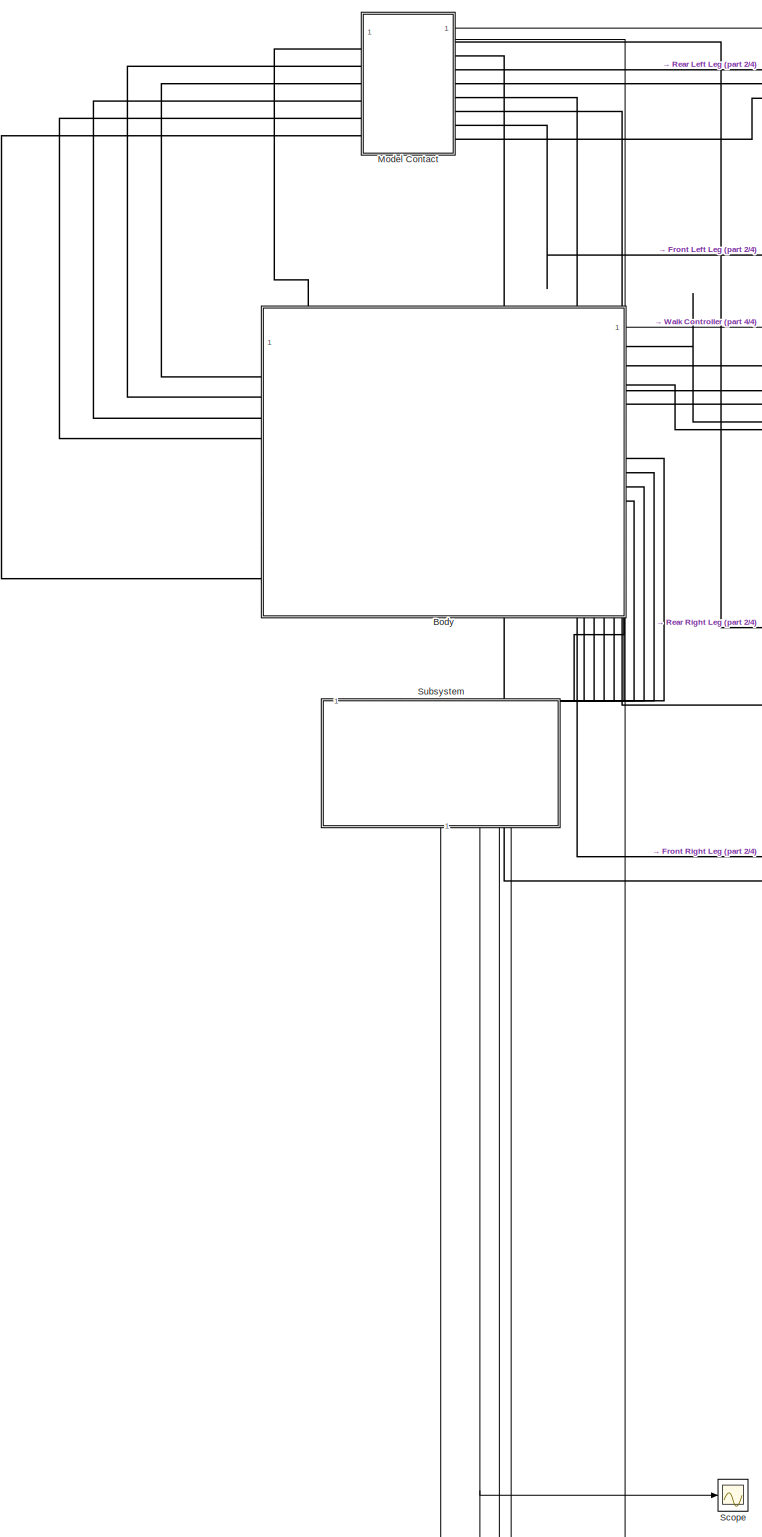
[diagram: root canvas - part 1/4, middle left region]
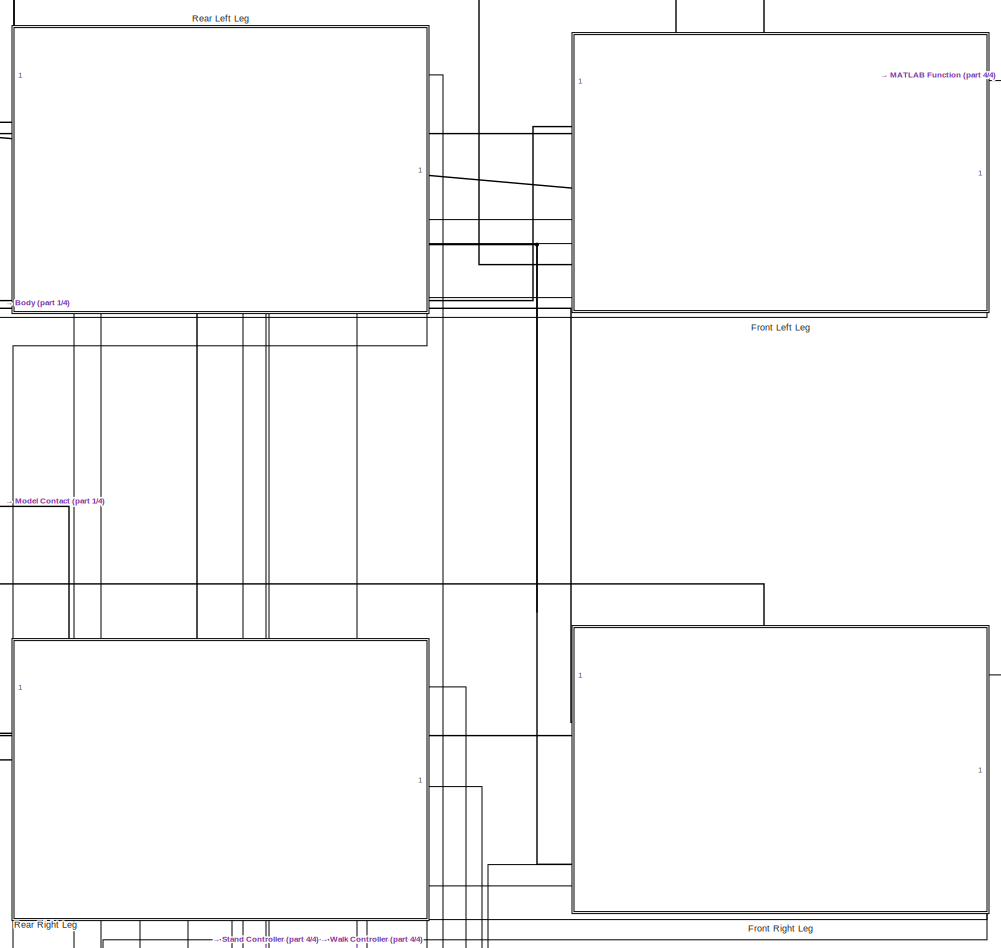
[diagram: root canvas - part 2/4, central region]
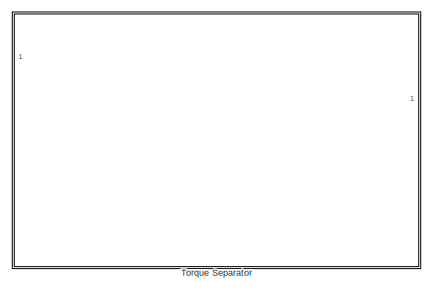
[diagram: root canvas - part 3/4, middle right region]
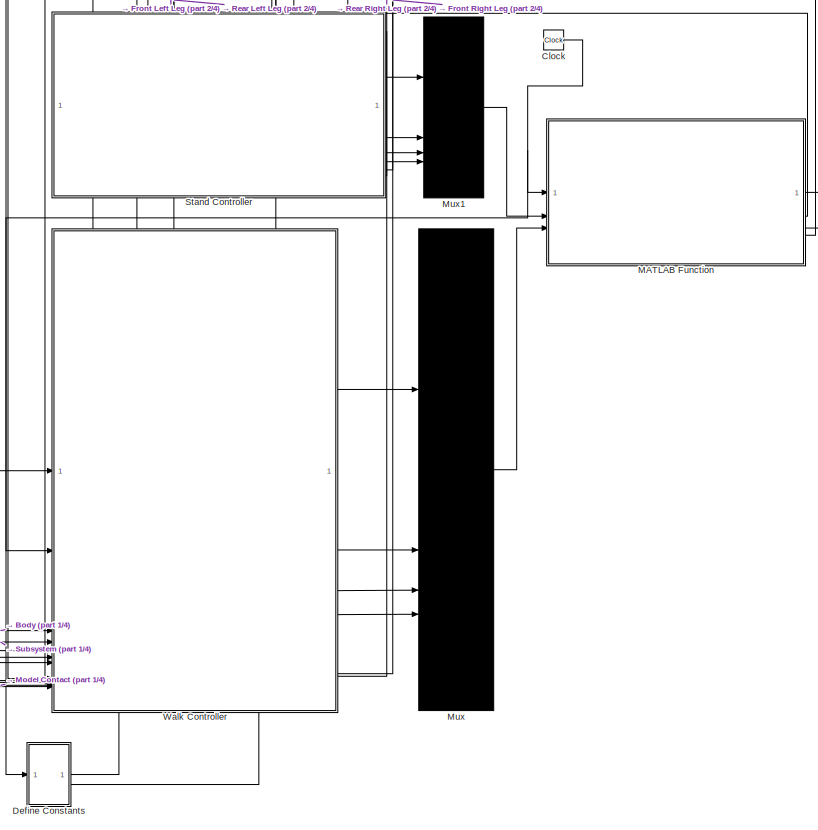
[diagram: root canvas - part 4/4, bottom center region]
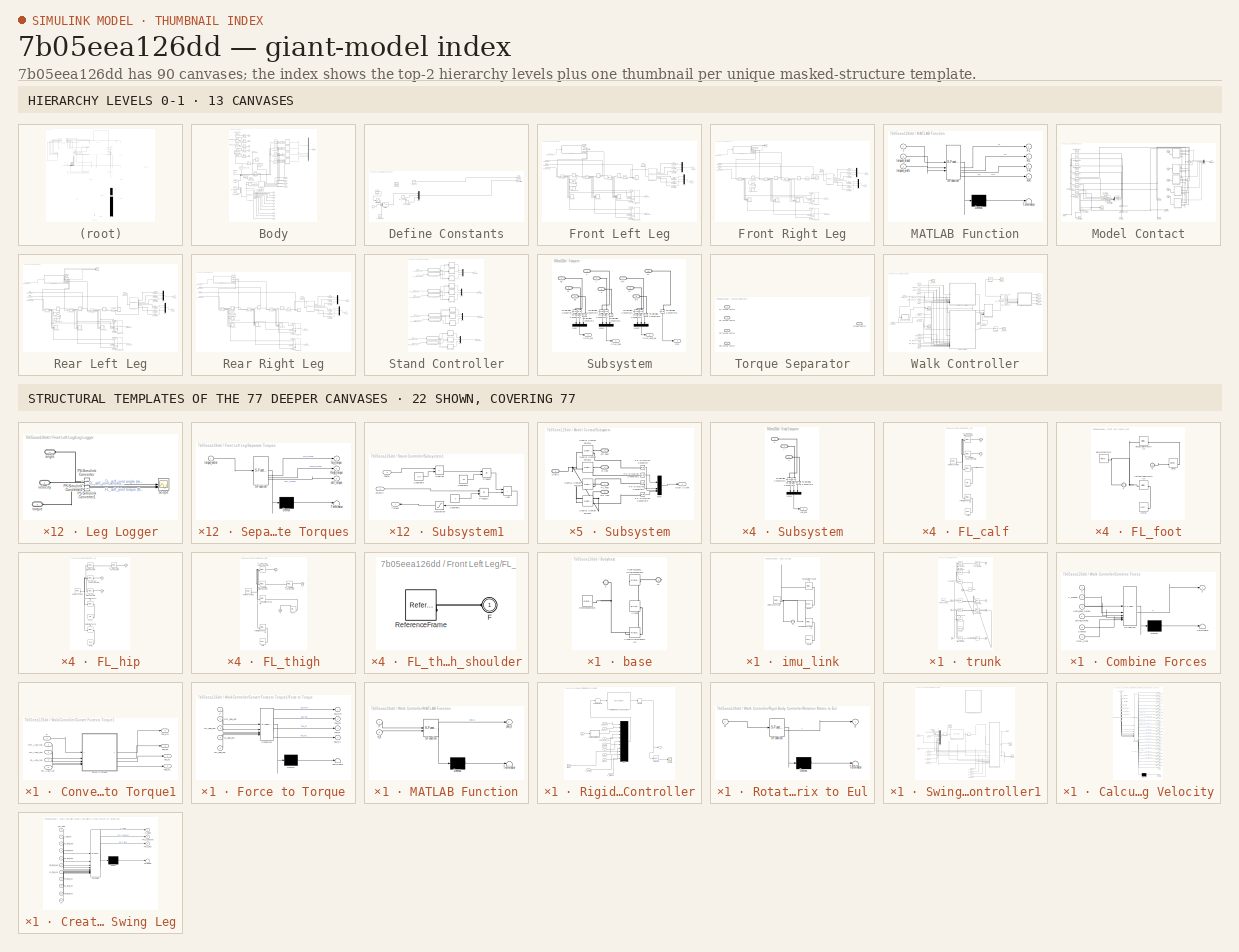
[diagram: thumbnail index - top-2 hierarchy levels (13 canvases) + 22 structural-template representatives of the remaining 77 canvases]
MODEL slx_7b05eea126dd
KIND model
CONFIG AbsTol = auto
CONFIG EnableMultiTasking = off
CONFIG FixedStep = auto
CONFIG MaxStep = auto
CONFIG MinStep = auto
CONFIG RelTol = 1e-3
CONFIG SampleTimeConstraint = Unconstrained
CONFIG SolverName = VariableStepAuto
CONFIG StartTime = 0.0
CONFIG StopTime = 2
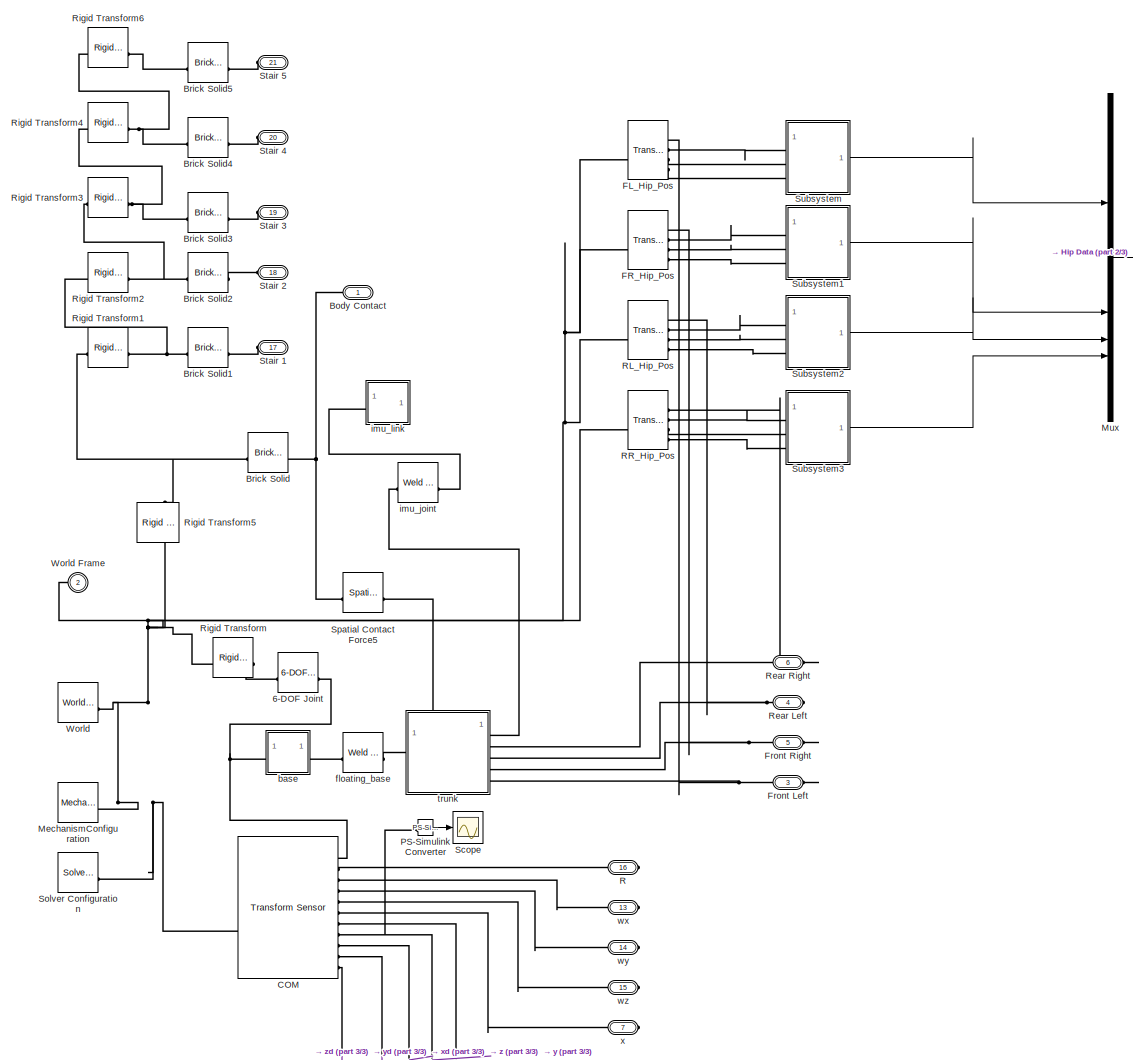
[diagram: Body - part 1/3, most of the canvas]
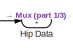
[diagram: Body - part 2/3, top right region]
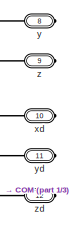
[diagram: Body - part 3/3, bottom center region]
BLOCK [SubSystem] Body
  PortSchema = {"entries":[{"content":{"sides":[{"content":{"connectorIds":[]},"type":"ConnectorPlacement.EquallySpacedRectSide","uuid":"3a53cbab-bcad-44fb-8467-9fb9b9a86323"},{"content":{"connectorIds":["RConn1","RConn2","RConn3","RConn4","Out1"],"side":"RIGHT"},"type":"ConnectorPlacement.EquallySpacedRectSide","uuid":"37b4c9a2-a58b-45a3-99d3-aa4f692e4db6"},{"content":{"connectorIds":["LConn1","LConn2","LConn3"...<+571ch>
BLOCK [Reference] Body/ COM  REF=sm_lib/Frames and
Transforms/Transform
Sensor
  SourceBlock = sm_lib/Frames and\nTransforms/Transform\nSensor
  SourceType = Transform\nSensor
BLOCK [Reference] Body/6-DOF Joint  REF=sm_lib/Joints/6-DOF Joint
  SourceBlock = sm_lib/Joints/6-DOF Joint
  SourceType = 6-DOF Joint
BLOCK [PMIOPort] Body/Body Contact
  Side = Left
BLOCK [Reference] Body/Brick Solid  REF=sm_lib/Body Elements/Brick Solid
  SourceBlock = sm_lib/Body Elements/Brick Solid
  SourceType = Brick Solid
BLOCK [Reference] Body/Brick Solid1  REF=sm_lib/Body Elements/Brick Solid
  SourceBlock = sm_lib/Body Elements/Brick Solid
  SourceType = Brick Solid
BLOCK [Reference] Body/Brick Solid2  REF=sm_lib/Body Elements/Brick Solid
  SourceBlock = sm_lib/Body Elements/Brick Solid
  SourceType = Brick Solid
BLOCK [Reference] Body/Brick Solid3  REF=sm_lib/Body Elements/Brick Solid
  SourceBlock = sm_lib/Body Elements/Brick Solid
  SourceType = Brick Solid
BLOCK [Reference] Body/Brick Solid4  REF=sm_lib/Body Elements/Brick Solid
  SourceBlock = sm_lib/Body Elements/Brick Solid
  SourceType = Brick Solid
BLOCK [Reference] Body/Brick Solid5  REF=sm_lib/Body Elements/Brick Solid
  SourceBlock = sm_lib/Body Elements/Brick Solid
  SourceType = Brick Solid
BLOCK [Reference] Body/FL_Hip_Pos  REF=sm_lib/Frames and
Transforms/Transform
Sensor
  SourceBlock = sm_lib/Frames and\nTransforms/Transform\nSensor
  SourceType = Transform\nSensor
BLOCK [Reference] Body/FR_Hip_Pos  REF=sm_lib/Frames and
Transforms/Transform
Sensor
  SourceBlock = sm_lib/Frames and\nTransforms/Transform\nSensor
  SourceType = Transform\nSensor
BLOCK [PMIOPort] Body/Front Left
  Port = 3
  Side = Right
BLOCK [PMIOPort] Body/Front Right
  Port = 5
  Side = Right
BLOCK [Outport] Body/Hip Data
BLOCK [Reference] Body/MechanismConfiguration  REF=sm_lib/Utilities/Mechanism
Configuration
  SourceBlock = sm_lib/Utilities/Mechanism\nConfiguration
  SourceType = Mechanism\nConfiguration
BLOCK [Mux] Body/Mux
  DisplayOption = bar
BLOCK [Reference] Body/PS-Simulink Converter  REF=nesl_utility/PS-Simulink
Converter
  SourceBlock = nesl_utility/PS-Simulink\nConverter
  SourceType = PS-Simulink\nConverter
BLOCK [PMIOPort] Body/R
  Port = 16
  Side = Right
BLOCK [Reference] Body/RL_Hip_Pos  REF=sm_lib/Frames and
Transforms/Transform
Sensor
  SourceBlock = sm_lib/Frames and\nTransforms/Transform\nSensor
  SourceType = Transform\nSensor
BLOCK [Reference] Body/RR_Hip_Pos  REF=sm_lib/Frames and
Transforms/Transform
Sensor
  SourceBlock = sm_lib/Frames and\nTransforms/Transform\nSensor
  SourceType = Transform\nSensor
BLOCK [PMIOPort] Body/Rear Left
  Port = 4
  Side = Right
BLOCK [PMIOPort] Body/Rear Right
  Port = 6
  Side = Right
BLOCK [Reference] Body/Rigid Transform  REF=sm_lib/Frames and
Transforms/Rigid
Transform
  SourceBlock = sm_lib/Frames and\nTransforms/Rigid\nTransform
  SourceType = Rigid\nTransform
BLOCK [Reference] Body/Rigid Transform1  REF=sm_lib/Frames and
Transforms/Rigid
Transform
  SourceBlock = sm_lib/Frames and\nTransforms/Rigid\nTransform
  SourceType = Rigid\nTransform
BLOCK [Reference] Body/Rigid Transform2  REF=sm_lib/Frames and
Transforms/Rigid
Transform
  SourceBlock = sm_lib/Frames and\nTransforms/Rigid\nTransform
  SourceType = Rigid\nTransform
BLOCK [Reference] Body/Rigid Transform3  REF=sm_lib/Frames and
Transforms/Rigid
Transform
  SourceBlock = sm_lib/Frames and\nTransforms/Rigid\nTransform
  SourceType = Rigid\nTransform
BLOCK [Reference] Body/Rigid Transform4  REF=sm_lib/Frames and
Transforms/Rigid
Transform
  SourceBlock = sm_lib/Frames and\nTransforms/Rigid\nTransform
  SourceType = Rigid\nTransform
BLOCK [Reference] Body/Rigid Transform5  REF=sm_lib/Frames and
Transforms/Rigid
Transform
  NameLocation = right
  SourceBlock = sm_lib/Frames and\nTransforms/Rigid\nTransform
  SourceType = Rigid\nTransform
BLOCK [Reference] Body/Rigid Transform6  REF=sm_lib/Frames and
Transforms/Rigid
Transform
  SourceBlock = sm_lib/Frames and\nTransforms/Rigid\nTransform
  SourceType = Rigid\nTransform
BLOCK [Scope] Body/Scope
  Floating = off
  NumInputPorts = 1
  ScopeSpecificationString = Simulink.scopes.TimeScopeBlockCfg('CurrentConfiguration', extmgr.ConfigurationSet(extmgr.Configuration('Core','General UI',true),extmgr.Configuration('Core','Source UI',true),extmgr.Configuration('Sources','WiredSimulink',true,'DataLoggingVariableName','ScopeData1'),extmgr.Configuration('Visuals','Time Domain',true,'SerializedDisplays',{struct('MinYLimReal','0.09667','MaxYLimReal','0.29077','YLabe...<+1378ch>
BLOCK [Reference] Body/Solver Configuration  REF=nesl_utility/Solver
Configuration
  SourceBlock = nesl_utility/Solver\nConfiguration
  SourceType = Solver\nConfiguration
BLOCK [Reference] Body/Spatial Contact Force5  REF=sm_lib/Forces and
Torques/Spatial
Contact Force
  SourceBlock = sm_lib/Forces and\nTorques/Spatial\nContact Force
  SourceType = Spatial\nContact Force
BLOCK [PMIOPort] Body/Stair 1
  Port = 17
  Side = Left
BLOCK [PMIOPort] Body/Stair 2
  Port = 18
  Side = Left
BLOCK [PMIOPort] Body/Stair 3
  Port = 19
  Side = Left
BLOCK [PMIOPort] Body/Stair 4
  Port = 20
  Side = Left
BLOCK [PMIOPort] Body/Stair 5
  Port = 21
  Side = Left
BLOCK [SubSystem] Body/Subsystem
  NameLocation = top
BLOCK [Outport] Body/Subsystem/Hip_pos
BLOCK [Mux] Body/Subsystem/Mux1
  DisplayOption = bar
  Inputs = 3
  NameLocation = left
BLOCK [Reference] Body/Subsystem/PS-Simulink Converter3  REF=nesl_utility/PS-Simulink
Converter
  NameLocation = left
  SourceBlock = nesl_utility/PS-Simulink\nConverter
  SourceType = PS-Simulink\nConverter
BLOCK [Reference] Body/Subsystem/PS-Simulink Converter4  REF=nesl_utility/PS-Simulink
Converter
  NameLocation = left
  SourceBlock = nesl_utility/PS-Simulink\nConverter
  SourceType = PS-Simulink\nConverter
BLOCK [Reference] Body/Subsystem/PS-Simulink Converter5  REF=nesl_utility/PS-Simulink
Converter
  NameLocation = left
  SourceBlock = nesl_utility/PS-Simulink\nConverter
  SourceType = PS-Simulink\nConverter
BLOCK [PMIOPort] Body/Subsystem/x
  Side = Left
BLOCK [PMIOPort] Body/Subsystem/y
  Port = 2
  Side = Left
BLOCK [PMIOPort] Body/Subsystem/z
  Port = 3
  Side = Left
BLOCK [SubSystem] Body/Subsystem1
  NameLocation = top
BLOCK [Outport] Body/Subsystem1/Hip_pos
BLOCK [Mux] Body/Subsystem1/Mux1
  DisplayOption = bar
  Inputs = 3
  NameLocation = left
BLOCK [Reference] Body/Subsystem1/PS-Simulink Converter3  REF=nesl_utility/PS-Simulink
Converter
  NameLocation = left
  SourceBlock = nesl_utility/PS-Simulink\nConverter
  SourceType = PS-Simulink\nConverter
BLOCK [Reference] Body/Subsystem1/PS-Simulink Converter4  REF=nesl_utility/PS-Simulink
Converter
  NameLocation = left
  SourceBlock = nesl_utility/PS-Simulink\nConverter
  SourceType = PS-Simulink\nConverter
BLOCK [Reference] Body/Subsystem1/PS-Simulink Converter5  REF=nesl_utility/PS-Simulink
Converter
  NameLocation = left
  SourceBlock = nesl_utility/PS-Simulink\nConverter
  SourceType = PS-Simulink\nConverter
BLOCK [PMIOPort] Body/Subsystem1/x
  Side = Left
BLOCK [PMIOPort] Body/Subsystem1/y
  Port = 2
  Side = Left
BLOCK [PMIOPort] Body/Subsystem1/z
  Port = 3
  Side = Left
BLOCK [SubSystem] Body/Subsystem2
  NameLocation = top
BLOCK [Outport] Body/Subsystem2/Hip_pos
BLOCK [Mux] Body/Subsystem2/Mux1
  DisplayOption = bar
  Inputs = 3
  NameLocation = left
BLOCK [Reference] Body/Subsystem2/PS-Simulink Converter3  REF=nesl_utility/PS-Simulink
Converter
  NameLocation = left
  SourceBlock = nesl_utility/PS-Simulink\nConverter
  SourceType = PS-Simulink\nConverter
BLOCK [Reference] Body/Subsystem2/PS-Simulink Converter4  REF=nesl_utility/PS-Simulink
Converter
  NameLocation = left
  SourceBlock = nesl_utility/PS-Simulink\nConverter
  SourceType = PS-Simulink\nConverter
BLOCK [Reference] Body/Subsystem2/PS-Simulink Converter5  REF=nesl_utility/PS-Simulink
Converter
  NameLocation = left
  SourceBlock = nesl_utility/PS-Simulink\nConverter
  SourceType = PS-Simulink\nConverter
BLOCK [PMIOPort] Body/Subsystem2/x
  Side = Left
BLOCK [PMIOPort] Body/Subsystem2/y
  Port = 2
  Side = Left
BLOCK [PMIOPort] Body/Subsystem2/z
  Port = 3
  Side = Left
BLOCK [SubSystem] Body/Subsystem3
  NameLocation = top
BLOCK [Outport] Body/Subsystem3/Hip_pos
BLOCK [Mux] Body/Subsystem3/Mux1
  DisplayOption = bar
  Inputs = 3
  NameLocation = left
BLOCK [Reference] Body/Subsystem3/PS-Simulink Converter3  REF=nesl_utility/PS-Simulink
Converter
  NameLocation = left
  SourceBlock = nesl_utility/PS-Simulink\nConverter
  SourceType = PS-Simulink\nConverter
BLOCK [Reference] Body/Subsystem3/PS-Simulink Converter4  REF=nesl_utility/PS-Simulink
Converter
  NameLocation = left
  SourceBlock = nesl_utility/PS-Simulink\nConverter
  SourceType = PS-Simulink\nConverter
BLOCK [Reference] Body/Subsystem3/PS-Simulink Converter5  REF=nesl_utility/PS-Simulink
Converter
  NameLocation = left
  SourceBlock = nesl_utility/PS-Simulink\nConverter
  SourceType = PS-Simulink\nConverter
BLOCK [PMIOPort] Body/Subsystem3/x
  Side = Left
BLOCK [PMIOPort] Body/Subsystem3/y
  Port = 2
  Side = Left
BLOCK [PMIOPort] Body/Subsystem3/z
  Port = 3
  Side = Left
BLOCK [Reference] Body/World  REF=sm_lib/Frames and
Transforms/World Frame
  SourceBlock = sm_lib/Frames and\nTransforms/World Frame
  SourceType = World Frame
BLOCK [PMIOPort] Body/World Frame
  Port = 2
  Side = Left
BLOCK [SubSystem] Body/base
BLOCK [PMIOPort] Body/base/F
  Side = Left
BLOCK [PMIOPort] Body/base/F1
  Port = 2
  Side = Right
BLOCK [Reference] Body/base/ReferenceFrame  REF=sm_lib/Frames and
Transforms/Reference
Frame
  SourceBlock = sm_lib/Frames and\nTransforms/Reference\nFrame
  SourceType = Reference\nFrame
BLOCK [Reference] Body/base/Visual  REF=sm_lib/Body Elements/Brick Solid
  SourceBlock = sm_lib/Body Elements/Brick Solid
  SourceType = Brick Solid
BLOCK [Reference] Body/base/VisualOriginTransform  REF=sm_lib/Frames and
Transforms/Rigid
Transform
  SourceBlock = sm_lib/Frames and\nTransforms/Rigid\nTransform
  SourceType = Rigid\nTransform
BLOCK [Reference] Body/base/floating_base_OriginTransform  REF=sm_lib/Frames and
Transforms/Rigid
Transform
  SourceBlock = sm_lib/Frames and\nTransforms/Rigid\nTransform
  SourceType = Rigid\nTransform
BLOCK [Reference] Body/floating_base  REF=sm_lib/Joints/Weld Joint
  SourceBlock = sm_lib/Joints/Weld Joint
  SourceType = Weld Joint
BLOCK [Reference] Body/imu_joint  REF=sm_lib/Joints/Weld Joint
  SourceBlock = sm_lib/Joints/Weld Joint
  SourceType = Weld Joint
BLOCK [SubSystem] Body/imu_link
BLOCK [PMIOPort] Body/imu_link/F
  Side = Left
BLOCK [Reference] Body/imu_link/Inertia  REF=sm_lib/Body Elements/Inertia
  SourceBlock = sm_lib/Body Elements/Inertia
  SourceType = Inertia
BLOCK [Reference] Body/imu_link/InertiaOriginTransform  REF=sm_lib/Frames and
Transforms/Rigid
Transform
  SourceBlock = sm_lib/Frames and\nTransforms/Rigid\nTransform
  SourceType = Rigid\nTransform
BLOCK [Reference] Body/imu_link/ReferenceFrame  REF=sm_lib/Frames and
Transforms/Reference
Frame
  SourceBlock = sm_lib/Frames and\nTransforms/Reference\nFrame
  SourceType = Reference\nFrame
BLOCK [Reference] Body/imu_link/Visual  REF=sm_lib/Body Elements/Brick Solid
  SourceBlock = sm_lib/Body Elements/Brick Solid
  SourceType = Brick Solid
BLOCK [Reference] Body/imu_link/VisualOriginTransform  REF=sm_lib/Frames and
Transforms/Rigid
Transform
  SourceBlock = sm_lib/Frames and\nTransforms/Rigid\nTransform
  SourceType = Rigid\nTransform
BLOCK [SubSystem] Body/trunk
  PortSchema = {"entries":[{"content":{"sides":[{"content":{"connectorIds":["LConn1"]},"type":"ConnectorPlacement.EquallySpacedRectSide","uuid":"c5dfde28-9f4a-41b5-9a32-9d7a562ca9b8"},{"content":{"connectorIds":["RConn1","RConn2","RConn3","RConn4","RConn5"],"side":"RIGHT"},"type":"ConnectorPlacement.EquallySpacedRectSide","uuid":"181a9597-adfa-43f0-a8d0-b0dc8d73bccd"},{"content":{"connectorIds":["LConn2"],"side"...<+289ch>
BLOCK [PMIOPort] Body/trunk/F
  Side = Left
BLOCK [PMIOPort] Body/trunk/F1
  Port = 7
  Side = Right
BLOCK [PMIOPort] Body/trunk/F2
  Port = 6
  Side = Right
BLOCK [PMIOPort] Body/trunk/F3
  Port = 5
  Side = Right
BLOCK [PMIOPort] Body/trunk/F4
  Port = 4
  Side = Right
BLOCK [PMIOPort] Body/trunk/F5
  Port = 3
  Side = Right
BLOCK [Reference] Body/trunk/FL_hip_joint_AxisTransform  REF=sm_lib/Frames and
Transforms/Rigid
Transform
  SourceBlock = sm_lib/Frames and\nTransforms/Rigid\nTransform
  SourceType = Rigid\nTransform
BLOCK [Reference] Body/trunk/FL_hip_joint_OriginTransform  REF=sm_lib/Frames and
Transforms/Rigid
Transform
  SourceBlock = sm_lib/Frames and\nTransforms/Rigid\nTransform
  SourceType = Rigid\nTransform
BLOCK [Reference] Body/trunk/FR_hip_joint_AxisTransform  REF=sm_lib/Frames and
Transforms/Rigid
Transform
  SourceBlock = sm_lib/Frames and\nTransforms/Rigid\nTransform
  SourceType = Rigid\nTransform
BLOCK [Reference] Body/trunk/FR_hip_joint_OriginTransform  REF=sm_lib/Frames and
Transforms/Rigid
Transform
  SourceBlock = sm_lib/Frames and\nTransforms/Rigid\nTransform
  SourceType = Rigid\nTransform
BLOCK [PMIOPort] Body/trunk/G
  Port = 2
  Side = Left
BLOCK [Reference] Body/trunk/Inertia  REF=sm_lib/Body Elements/Inertia
  SourceBlock = sm_lib/Body Elements/Inertia
  SourceType = Inertia
BLOCK [Reference] Body/trunk/InertiaOriginTransform  REF=sm_lib/Frames and
Transforms/Rigid
Transform
  SourceBlock = sm_lib/Frames and\nTransforms/Rigid\nTransform
  SourceType = Rigid\nTransform
BLOCK [Reference] Body/trunk/RL_hip_joint_AxisTransform  REF=sm_lib/Frames and
Transforms/Rigid
Transform
  SourceBlock = sm_lib/Frames and\nTransforms/Rigid\nTransform
  SourceType = Rigid\nTransform
BLOCK [Reference] Body/trunk/RL_hip_joint_OriginTransform  REF=sm_lib/Frames and
Transforms/Rigid
Transform
  SourceBlock = sm_lib/Frames and\nTransforms/Rigid\nTransform
  SourceType = Rigid\nTransform
BLOCK [Reference] Body/trunk/RR_hip_joint_AxisTransform  REF=sm_lib/Frames and
Transforms/Rigid
Transform
  SourceBlock = sm_lib/Frames and\nTransforms/Rigid\nTransform
  SourceType = Rigid\nTransform
BLOCK [Reference] Body/trunk/RR_hip_joint_OriginTransform  REF=sm_lib/Frames and
Transforms/Rigid
Transform
  SourceBlock = sm_lib/Frames and\nTransforms/Rigid\nTransform
  SourceType = Rigid\nTransform
BLOCK [Reference] Body/trunk/ReferenceFrame  REF=sm_lib/Frames and
Transforms/Reference
Frame
  SourceBlock = sm_lib/Frames and\nTransforms/Reference\nFrame
  SourceType = Reference\nFrame
BLOCK [Reference] Body/trunk/Visual  REF=sm_lib/Body Elements/File Solid
  SourceBlock = sm_lib/Body Elements/File Solid
  SourceType = File Solid
BLOCK [Reference] Body/trunk/VisualOriginTransform  REF=sm_lib/Frames and
Transforms/Rigid
Transform
  SourceBlock = sm_lib/Frames and\nTransforms/Rigid\nTransform
  SourceType = Rigid\nTransform
BLOCK [Reference] Body/trunk/imu_joint_OriginTransform  REF=sm_lib/Frames and
Transforms/Rigid
Transform
  SourceBlock = sm_lib/Frames and\nTransforms/Rigid\nTransform
  SourceType = Rigid\nTransform
BLOCK [PMIOPort] Body/wx
  Port = 13
  Side = Right
BLOCK [PMIOPort] Body/wy
  Port = 14
  Side = Right
BLOCK [PMIOPort] Body/wz
  Port = 15
  Side = Right
BLOCK [PMIOPort] Body/x
  Port = 7
  Side = Right
BLOCK [PMIOPort] Body/xd
  Port = 10
  Side = Right
BLOCK [PMIOPort] Body/y
  Port = 8
  Side = Right
BLOCK [PMIOPort] Body/yd
  Port = 11
  Side = Right
BLOCK [PMIOPort] Body/z
  Port = 9
  Side = Right
BLOCK [PMIOPort] Body/zd
  Port = 12
  Side = Right
BLOCK [Clock] Clock
BLOCK [SubSystem] Define Constants
BLOCK [Inport] Define Constants/In1
BLOCK [Mux] Define Constants/Mux
  DisplayOption = bar
  Inputs = 3
BLOCK [Outport] Define Constants/Out1
BLOCK [Reference] Define Constants/Ramp  REF=simulink/Sources/Ramp
  SourceBlock = simulink/Sources/Ramp
  SourceType = Ramp
BLOCK [Saturate] Define Constants/Saturation
  LowerLimit = -0.2
  UpperLimit = 0.2
BLOCK [Scope] Define Constants/Scope
  Floating = off
  NumInputPorts = 1
  ScopeSpecificationString = Simulink.scopes.TimeScopeBlockCfg('CurrentConfiguration', extmgr.ConfigurationSet(extmgr.Configuration('Core','General UI',true),extmgr.Configuration('Core','Source UI',true),extmgr.Configuration('Sources','WiredSimulink',true,'DataLoggingVariableName','ScopeData1'),extmgr.Configuration('Visuals','Time Domain',true,'SerializedDisplays',{struct('MinYLimReal','-0.025','MaxYLimReal','0.225','YLabelRe...<+1357ch>
BLOCK [Switch] Define Constants/Switch
  Criteria = u2 > Threshold
  InputSameDT = off
  SaturateOnIntegerOverflow = off
  Threshold = 5.8
BLOCK [Constant] Define Constants/T_stance
  Value = 0.2
BLOCK [Constant] Define Constants/T_stance1
  Value = 0.15
BLOCK [Constant] Define Constants/Vy_desired
  Value = 0
BLOCK [Constant] Define Constants/Vz_desired
  Value = 0
BLOCK [Outport] Define Constants/v_desired
  Port = 2
BLOCK [SubSystem] Front Left Leg
  PortSchema = {"entries":[{"content":{"sides":[{"content":{"connectorIds":["LConn1"]},"type":"ConnectorPlacement.EquallySpacedRectSide","uuid":"58990e36-5185-4bfb-924f-3ea489e575b7"},{"content":{"connectorIds":["In1"],"side":"RIGHT"},"type":"ConnectorPlacement.EquallySpacedRectSide","uuid":"00c4eac4-622f-4601-a916-f460578a2921"},{"content":{"connectorIds":["LConn2","LConn3","LConn4"],"side":"TOP"},"type":"Conne...<+439ch>  <repeated x4 — deduplicated; at blocks: Front Left Leg, Front Right Leg, Rear Left Leg, Rear Right Leg>
BLOCK [Outport] Front Left Leg/ Foot Pos
  Port = 3
BLOCK [Outport] Front Left Leg/ Foot Vel
  Port = 4
BLOCK [Concatenate] Front Left Leg/Angle Concat
  NumInputs = 3
BLOCK [Outport] Front Left Leg/Angle Vector
BLOCK [SubSystem] Front Left Leg/FL_calf
BLOCK [PMIOPort] Front Left Leg/FL_calf/F
  Side = Left
BLOCK [PMIOPort] Front Left Leg/FL_calf/F1
  Port = 2
  Side = Right
BLOCK [Reference] Front Left Leg/FL_calf/FL_calf_joint_AxisInvTransform  REF=sm_lib/Frames and
Transforms/Rigid
Transform
  SourceBlock = sm_lib/Frames and\nTransforms/Rigid\nTransform
  SourceType = Rigid\nTransform
BLOCK [Reference] Front Left Leg/FL_calf/FL_foot_fixed_OriginTransform  REF=sm_lib/Frames and
Transforms/Rigid
Transform
  SourceBlock = sm_lib/Frames and\nTransforms/Rigid\nTransform
  SourceType = Rigid\nTransform
BLOCK [Reference] Front Left Leg/FL_calf/Inertia  REF=sm_lib/Body Elements/Inertia
  SourceBlock = sm_lib/Body Elements/Inertia
  SourceType = Inertia
BLOCK [Reference] Front Left Leg/FL_calf/InertiaOriginTransform  REF=sm_lib/Frames and
Transforms/Rigid
Transform
  SourceBlock = sm_lib/Frames and\nTransforms/Rigid\nTransform
  SourceType = Rigid\nTransform
BLOCK [Reference] Front Left Leg/FL_calf/ReferenceFrame  REF=sm_lib/Frames and
Transforms/Reference
Frame
  SourceBlock = sm_lib/Frames and\nTransforms/Reference\nFrame
  SourceType = Reference\nFrame
BLOCK [Reference] Front Left Leg/FL_calf/Visual  REF=sm_lib/Body Elements/File Solid
  SourceBlock = sm_lib/Body Elements/File Solid
  SourceType = File Solid
BLOCK [Reference] Front Left Leg/FL_calf/VisualOriginTransform  REF=sm_lib/Frames and
Transforms/Rigid
Transform
  SourceBlock = sm_lib/Frames and\nTransforms/Rigid\nTransform
  SourceType = Rigid\nTransform
BLOCK [Reference] Front Left Leg/FL_calf_joint  REF=sm_lib/Joints/Revolute Joint
  SourceBlock = sm_lib/Joints/Revolute Joint
  SourceType = Revolute Joint
BLOCK [SubSystem] Front Left Leg/FL_foot
BLOCK [PMIOPort] Front Left Leg/FL_foot/F
  Side = Left
BLOCK [PMIOPort] Front Left Leg/FL_foot/G
  Port = 2
  Side = Left
BLOCK [Reference] Front Left Leg/FL_foot/Inertia  REF=sm_lib/Body Elements/Inertia
  SourceBlock = sm_lib/Body Elements/Inertia
  SourceType = Inertia
BLOCK [Reference] Front Left Leg/FL_foot/InertiaOriginTransform  REF=sm_lib/Frames and
Transforms/Rigid
Transform
  SourceBlock = sm_lib/Frames and\nTransforms/Rigid\nTransform
  SourceType = Rigid\nTransform
BLOCK [Reference] Front Left Leg/FL_foot/ReferenceFrame  REF=sm_lib/Frames and
Transforms/Reference
Frame
  SourceBlock = sm_lib/Frames and\nTransforms/Reference\nFrame
  SourceType = Reference\nFrame
BLOCK [Reference] Front Left Leg/FL_foot/Visual  REF=sm_lib/Body Elements/Spherical Solid
  SourceBlock = sm_lib/Body Elements/Spherical Solid
  SourceType = Spherical Solid
BLOCK [Reference] Front Left Leg/FL_foot/VisualOriginTransform  REF=sm_lib/Frames and
Transforms/Rigid
Transform
  SourceBlock = sm_lib/Frames and\nTransforms/Rigid\nTransform
  SourceType = Rigid\nTransform
BLOCK [Reference] Front Left Leg/FL_foot_fixed  REF=sm_lib/Joints/Weld Joint
  SourceBlock = sm_lib/Joints/Weld Joint
  SourceType = Weld Joint
BLOCK [SubSystem] Front Left Leg/FL_hip
BLOCK [PMIOPort] Front Left Leg/FL_hip/F
  Side = Left
BLOCK [PMIOPort] Front Left Leg/FL_hip/F1
  Port = 3
  Side = Right
BLOCK [PMIOPort] Front Left Leg/FL_hip/F2
  Port = 2
  Side = Right
BLOCK [Reference] Front Left Leg/FL_hip/FL_hip_fixed_OriginTransform  REF=sm_lib/Frames and
Transforms/Rigid
Transform
  SourceBlock = sm_lib/Frames and\nTransforms/Rigid\nTransform
  SourceType = Rigid\nTransform
BLOCK [Reference] Front Left Leg/FL_hip/FL_hip_joint_AxisInvTransform  REF=sm_lib/Frames and
Transforms/Rigid
Transform
  SourceBlock = sm_lib/Frames and\nTransforms/Rigid\nTransform
  SourceType = Rigid\nTransform
BLOCK [Reference] Front Left Leg/FL_hip/FL_thigh_joint_AxisTransform  REF=sm_lib/Frames and
Transforms/Rigid
Transform
  SourceBlock = sm_lib/Frames and\nTransforms/Rigid\nTransform
  SourceType = Rigid\nTransform
BLOCK [Reference] Front Left Leg/FL_hip/FL_thigh_joint_OriginTransform  REF=sm_lib/Frames and
Transforms/Rigid
Transform
  SourceBlock = sm_lib/Frames and\nTransforms/Rigid\nTransform
  SourceType = Rigid\nTransform
BLOCK [Reference] Front Left Leg/FL_hip/Inertia  REF=sm_lib/Body Elements/Inertia
  SourceBlock = sm_lib/Body Elements/Inertia
  SourceType = Inertia
BLOCK [Reference] Front Left Leg/FL_hip/InertiaOriginTransform  REF=sm_lib/Frames and
Transforms/Rigid
Transform
  SourceBlock = sm_lib/Frames and\nTransforms/Rigid\nTransform
  SourceType = Rigid\nTransform
BLOCK [Reference] Front Left Leg/FL_hip/ReferenceFrame  REF=sm_lib/Frames and
Transforms/Reference
Frame
  SourceBlock = sm_lib/Frames and\nTransforms/Reference\nFrame
  SourceType = Reference\nFrame
BLOCK [Reference] Front Left Leg/FL_hip/Visual  REF=sm_lib/Body Elements/File Solid
  SourceBlock = sm_lib/Body Elements/File Solid
  SourceType = File Solid
BLOCK [Reference] Front Left Leg/FL_hip/VisualOriginTransform  REF=sm_lib/Frames and
Transforms/Rigid
Transform
  SourceBlock = sm_lib/Frames and\nTransforms/Rigid\nTransform
  SourceType = Rigid\nTransform
BLOCK [Reference] Front Left Leg/FL_hip_fixed  REF=sm_lib/Joints/Weld Joint
  SourceBlock = sm_lib/Joints/Weld Joint
  SourceType = Weld Joint
BLOCK [Reference] Front Left Leg/FL_hip_joint  REF=sm_lib/Joints/Revolute Joint
  SourceBlock = sm_lib/Joints/Revolute Joint
  SourceType = Revolute Joint
BLOCK [SubSystem] Front Left Leg/FL_thigh
BLOCK [PMIOPort] Front Left Leg/FL_thigh/F
  Side = Left
BLOCK [PMIOPort] Front Left Leg/FL_thigh/F1
  Port = 2
  Side = Right
BLOCK [Reference] Front Left Leg/FL_thigh/FL_calf_joint_AxisTransform  REF=sm_lib/Frames and
Transforms/Rigid
Transform
  SourceBlock = sm_lib/Frames and\nTransforms/Rigid\nTransform
  SourceType = Rigid\nTransform
BLOCK [Reference] Front Left Leg/FL_thigh/FL_calf_joint_OriginTransform  REF=sm_lib/Frames and
Transforms/Rigid
Transform
  SourceBlock = sm_lib/Frames and\nTransforms/Rigid\nTransform
  SourceType = Rigid\nTransform
BLOCK [Reference] Front Left Leg/FL_thigh/FL_thigh_joint_AxisInvTransform  REF=sm_lib/Frames and
Transforms/Rigid
Transform
  SourceBlock = sm_lib/Frames and\nTransforms/Rigid\nTransform
  SourceType = Rigid\nTransform
BLOCK [PMIOPort] Front Left Leg/FL_thigh/G
  Port = 3
  Side = Right
BLOCK [Reference] Front Left Leg/FL_thigh/Inertia  REF=sm_lib/Body Elements/Inertia
  SourceBlock = sm_lib/Body Elements/Inertia
  SourceType = Inertia
BLOCK [Reference] Front Left Leg/FL_thigh/InertiaOriginTransform  REF=sm_lib/Frames and
Transforms/Rigid
Transform
  SourceBlock = sm_lib/Frames and\nTransforms/Rigid\nTransform
  SourceType = Rigid\nTransform
BLOCK [Reference] Front Left Leg/FL_thigh/ReferenceFrame  REF=sm_lib/Frames and
Transforms/Reference
Frame
  SourceBlock = sm_lib/Frames and\nTransforms/Reference\nFrame
  SourceType = Reference\nFrame
BLOCK [Reference] Front Left Leg/FL_thigh/Visual  REF=sm_lib/Body Elements/File Solid
  SourceBlock = sm_lib/Body Elements/File Solid
  SourceType = File Solid
BLOCK [Reference] Front Left Leg/FL_thigh/VisualOriginTransform  REF=sm_lib/Frames and
Transforms/Rigid
Transform
  SourceBlock = sm_lib/Frames and\nTransforms/Rigid\nTransform
  SourceType = Rigid\nTransform
BLOCK [Reference] Front Left Leg/FL_thigh_joint  REF=sm_lib/Joints/Revolute Joint
  SourceBlock = sm_lib/Joints/Revolute Joint
  SourceType = Revolute Joint
BLOCK [SubSystem] Front Left Leg/FL_thigh_shoulder
BLOCK [PMIOPort] Front Left Leg/FL_thigh_shoulder/F
  Side = Left
BLOCK [Reference] Front Left Leg/FL_thigh_shoulder/ReferenceFrame  REF=sm_lib/Frames and
Transforms/Reference
Frame
  SourceBlock = sm_lib/Frames and\nTransforms/Reference\nFrame
  SourceType = Reference\nFrame
BLOCK [PMIOPort] Front Left Leg/Foot Contact
  Port = 3
  Side = Left
BLOCK [PMIOPort] Front Left Leg/Leg Connection
  Side = Left
BLOCK [SubSystem] Front Left Leg/Leg Logger
BLOCK [Reference] Front Left Leg/Leg Logger/PS-Simulink Converter  REF=nesl_utility/PS-Simulink
Converter
  SourceBlock = nesl_utility/PS-Simulink\nConverter
  SourceType = PS-Simulink\nConverter
BLOCK [Reference] Front Left Leg/Leg Logger/PS-Simulink Converter1  REF=nesl_utility/PS-Simulink
Converter
  SourceBlock = nesl_utility/PS-Simulink\nConverter
  SourceType = PS-Simulink\nConverter
BLOCK [Reference] Front Left Leg/Leg Logger/PS-Simulink Converter2  REF=nesl_utility/PS-Simulink
Converter
  SourceBlock = nesl_utility/PS-Simulink\nConverter
  SourceType = PS-Simulink\nConverter
BLOCK [Scope] Front Left Leg/Leg Logger/Scope
  Floating = off
  NumInputPorts = 3
  ScopeSpecificationString = Simulink.scopes.TimeScopeBlockCfg('CurrentConfiguration', extmgr.ConfigurationSet(extmgr.Configuration('Core','General UI',true),extmgr.Configuration('Core','Source UI',true),extmgr.Configuration('Sources','WiredSimulink',true),extmgr.Configuration('Visuals','Time Domain',true,'SerializedDisplays',{struct('MinYLimReal','-36.35619','MaxYLimReal','38.57147','YLabelReal','','MinYLimMag','0.00000','Ma...<+1507ch>
BLOCK [PMIOPort] Front Left Leg/Leg Logger/angle
  Side = Left
BLOCK [PMIOPort] Front Left Leg/Leg Logger/torque
  Port = 3
  Side = Left
BLOCK [PMIOPort] Front Left Leg/Leg Logger/velocity
  Port = 2
  Side = Left
BLOCK [SubSystem] Front Left Leg/Leg Logger7
BLOCK [Reference] Front Left Leg/Leg Logger7/PS-Simulink Converter  REF=nesl_utility/PS-Simulink
Converter
  SourceBlock = nesl_utility/PS-Simulink\nConverter
  SourceType = PS-Simulink\nConverter
BLOCK [Reference] Front Left Leg/Leg Logger7/PS-Simulink Converter1  REF=nesl_utility/PS-Simulink
Converter
  SourceBlock = nesl_utility/PS-Simulink\nConverter
  SourceType = PS-Simulink\nConverter
BLOCK [Reference] Front Left Leg/Leg Logger7/PS-Simulink Converter2  REF=nesl_utility/PS-Simulink
Converter
  SourceBlock = nesl_utility/PS-Simulink\nConverter
  SourceType = PS-Simulink\nConverter
BLOCK [Scope] Front Left Leg/Leg Logger7/Scope
  Floating = off
  NumInputPorts = 3
  ScopeSpecificationString = Simulink.scopes.TimeScopeBlockCfg('CurrentConfiguration', extmgr.ConfigurationSet(extmgr.Configuration('Core','General UI',true),extmgr.Configuration('Core','Source UI',true),extmgr.Configuration('Sources','WiredSimulink',true),extmgr.Configuration('Visuals','Time Domain',true,'SerializedDisplays',{struct('MinYLimReal','-155.91522','MaxYLimReal','38.19439','YLabelReal','','MinYLimMag',' 0.00000','...<+1448ch>
BLOCK [PMIOPort] Front Left Leg/Leg Logger7/angle
  Side = Left
BLOCK [PMIOPort] Front Left Leg/Leg Logger7/torque
  Port = 3
  Side = Left
BLOCK [PMIOPort] Front Left Leg/Leg Logger7/velocity
  Port = 2
  Side = Left
BLOCK [SubSystem] Front Left Leg/Leg Logger8
BLOCK [Reference] Front Left Leg/Leg Logger8/PS-Simulink Converter  REF=nesl_utility/PS-Simulink
Converter
  SourceBlock = nesl_utility/PS-Simulink\nConverter
  SourceType = PS-Simulink\nConverter
BLOCK [Reference] Front Left Leg/Leg Logger8/PS-Simulink Converter1  REF=nesl_utility/PS-Simulink
Converter
  SourceBlock = nesl_utility/PS-Simulink\nConverter
  SourceType = PS-Simulink\nConverter
BLOCK [Reference] Front Left Leg/Leg Logger8/PS-Simulink Converter2  REF=nesl_utility/PS-Simulink
Converter
  SourceBlock = nesl_utility/PS-Simulink\nConverter
  SourceType = PS-Simulink\nConverter
BLOCK [Scope] Front Left Leg/Leg Logger8/Scope
  Floating = off
  NumInputPorts = 3
  ScopeSpecificationString = Simulink.scopes.TimeScopeBlockCfg('CurrentConfiguration', extmgr.ConfigurationSet(extmgr.Configuration('Core','General UI',true),extmgr.Configuration('Core','Source UI',true),extmgr.Configuration('Sources','WiredSimulink',true),extmgr.Configuration('Visuals','Time Domain',true,'SerializedDisplays',{struct('MinYLimReal','-20.01045','MaxYLimReal','27.31828','YLabelReal','','MinYLimMag','0.00000','Ma...<+1436ch>
BLOCK [PMIOPort] Front Left Leg/Leg Logger8/angle
  Side = Left
BLOCK [PMIOPort] Front Left Leg/Leg Logger8/torque
  Port = 3
  Side = Left
BLOCK [PMIOPort] Front Left Leg/Leg Logger8/velocity
  Port = 2
  Side = Left
BLOCK [Mux] Front Left Leg/Mux
  DisplayOption = bar
  Inputs = 3
BLOCK [Mux] Front Left Leg/Mux1
  DisplayOption = bar
  Inputs = 3
BLOCK [Reference] Front Left Leg/PS-Simulink Converter1  REF=nesl_utility/PS-Simulink
Converter
  SourceBlock = nesl_utility/PS-Simulink\nConverter
  SourceType = PS-Simulink\nConverter
BLOCK [Reference] Front Left Leg/PS-Simulink Converter10  REF=nesl_utility/PS-Simulink
Converter
  SourceBlock = nesl_utility/PS-Simulink\nConverter
  SourceType = PS-Simulink\nConverter
BLOCK [Reference] Front Left Leg/PS-Simulink Converter11  REF=nesl_utility/PS-Simulink
Converter
  SourceBlock = nesl_utility/PS-Simulink\nConverter
  SourceType = PS-Simulink\nConverter
BLOCK [Reference] Front Left Leg/PS-Simulink Converter12  REF=nesl_utility/PS-Simulink
Converter
  SourceBlock = nesl_utility/PS-Simulink\nConverter
  SourceType = PS-Simulink\nConverter
BLOCK [Reference] Front Left Leg/PS-Simulink Converter2  REF=nesl_utility/PS-Simulink
Converter
  SourceBlock = nesl_utility/PS-Simulink\nConverter
  SourceType = PS-Simulink\nConverter
BLOCK [Reference] Front Left Leg/PS-Simulink Converter3  REF=nesl_utility/PS-Simulink
Converter
  SourceBlock = nesl_utility/PS-Simulink\nConverter
  SourceType = PS-Simulink\nConverter
BLOCK [Reference] Front Left Leg/PS-Simulink Converter4  REF=nesl_utility/PS-Simulink
Converter
  SourceBlock = nesl_utility/PS-Simulink\nConverter
  SourceType = PS-Simulink\nConverter
BLOCK [Reference] Front Left Leg/PS-Simulink Converter5  REF=nesl_utility/PS-Simulink
Converter
  SourceBlock = nesl_utility/PS-Simulink\nConverter
  SourceType = PS-Simulink\nConverter
BLOCK [Reference] Front Left Leg/PS-Simulink Converter6  REF=nesl_utility/PS-Simulink
Converter
  SourceBlock = nesl_utility/PS-Simulink\nConverter
  SourceType = PS-Simulink\nConverter
BLOCK [Reference] Front Left Leg/PS-Simulink Converter7  REF=nesl_utility/PS-Simulink
Converter
  SourceBlock = nesl_utility/PS-Simulink\nConverter
  SourceType = PS-Simulink\nConverter
BLOCK [Reference] Front Left Leg/PS-Simulink Converter8  REF=nesl_utility/PS-Simulink
Converter
  SourceBlock = nesl_utility/PS-Simulink\nConverter
  SourceType = PS-Simulink\nConverter
BLOCK [Reference] Front Left Leg/PS-Simulink Converter9  REF=nesl_utility/PS-Simulink
Converter
  SourceBlock = nesl_utility/PS-Simulink\nConverter
  SourceType = PS-Simulink\nConverter
BLOCK [SubSystem] Front Left Leg/Separate Torques
  ErrorFcn = Stateflow.Translate.translate
  LibrarySourceBlock = simulink/User-Defined\nFunctions/MATLAB Function
  PermitHierarchicalResolution = ExplicitOnly
  SFBlockType = MATLAB Function
  TreatAsAtomicUnit = on
BLOCK [Demux] Front Left Leg/Separate Torques/ Demux 
  Outputs = 1
BLOCK [S-Function] Front Left Leg/Separate Torques/ SFunction 
  EnableBusSupport = on
  FunctionName = sf_sfun
  PortCounts = [1 4]
  SFcnIsStateOwnerBlock = off
  SFunctionDeploymentMode = off
  Tag = Stateflow S-Function 6
BLOCK [Terminator] Front Left Leg/Separate Torques/ Terminator 
BLOCK [Outport] Front Left Leg/Separate Torques/calf_torque
  Port = 3
BLOCK [Outport] Front Left Leg/Separate Torques/hip_torque
BLOCK [Outport] Front Left Leg/Separate Torques/thigh_torque
  Port = 2
BLOCK [Inport] Front Left Leg/Separate Torques/torque_vector
BLOCK [Reference] Front Left Leg/Simulink-PS Converter  REF=nesl_utility/Simulink-PS
Converter
  SourceBlock = nesl_utility/Simulink-PS\nConverter
  SourceType = Simulink-PS\nConverter
BLOCK [Reference] Front Left Leg/Simulink-PS Converter1  REF=nesl_utility/Simulink-PS
Converter
  SourceBlock = nesl_utility/Simulink-PS\nConverter
  SourceType = Simulink-PS\nConverter
BLOCK [Reference] Front Left Leg/Simulink-PS Converter2  REF=nesl_utility/Simulink-PS
Converter
  SourceBlock = nesl_utility/Simulink-PS\nConverter
  SourceType = Simulink-PS\nConverter
BLOCK [PMIOPort] Front Left Leg/Thigh Contact
  Port = 2
  Side = Left
BLOCK [Reference] Front Left Leg/Transform Sensor  REF=sm_lib/Frames and
Transforms/Transform
Sensor
  SourceBlock = sm_lib/Frames and\nTransforms/Transform\nSensor
  SourceType = Transform\nSensor
BLOCK [Concatenate] Front Left Leg/Velocity Concat
  NumInputs = 3
BLOCK [Outport] Front Left Leg/Velocity Vector
  Port = 2
BLOCK [PMIOPort] Front Left Leg/World Frame
  Port = 4
  Side = Left
BLOCK [Inport] Front Left Leg/torque_vector
BLOCK [SubSystem] Front Right Leg
BLOCK [Outport] Front Right Leg/ Foot Pos
  Port = 3
BLOCK [Outport] Front Right Leg/ Foot Vel
  Port = 4
BLOCK [Concatenate] Front Right Leg/Angle Concat
  NumInputs = 3
BLOCK [Outport] Front Right Leg/Angle Vector
BLOCK [SubSystem] Front Right Leg/FR_calf
BLOCK [PMIOPort] Front Right Leg/FR_calf/F
  Side = Left
BLOCK [PMIOPort] Front Right Leg/FR_calf/F1
  Port = 2
  Side = Right
BLOCK [Reference] Front Right Leg/FR_calf/FR_calf_joint_AxisInvTransform  REF=sm_lib/Frames and
Transforms/Rigid
Transform
  SourceBlock = sm_lib/Frames and\nTransforms/Rigid\nTransform
  SourceType = Rigid\nTransform
BLOCK [Reference] Front Right Leg/FR_calf/FR_foot_fixed_OriginTransform  REF=sm_lib/Frames and
Transforms/Rigid
Transform
  SourceBlock = sm_lib/Frames and\nTransforms/Rigid\nTransform
  SourceType = Rigid\nTransform
BLOCK [Reference] Front Right Leg/FR_calf/Inertia  REF=sm_lib/Body Elements/Inertia
  SourceBlock = sm_lib/Body Elements/Inertia
  SourceType = Inertia
BLOCK [Reference] Front Right Leg/FR_calf/InertiaOriginTransform  REF=sm_lib/Frames and
Transforms/Rigid
Transform
  SourceBlock = sm_lib/Frames and\nTransforms/Rigid\nTransform
  SourceType = Rigid\nTransform
BLOCK [Reference] Front Right Leg/FR_calf/ReferenceFrame  REF=sm_lib/Frames and
Transforms/Reference
Frame
  SourceBlock = sm_lib/Frames and\nTransforms/Reference\nFrame
  SourceType = Reference\nFrame
BLOCK [Reference] Front Right Leg/FR_calf/Visual  REF=sm_lib/Body Elements/File Solid
  SourceBlock = sm_lib/Body Elements/File Solid
  SourceType = File Solid
BLOCK [Reference] Front Right Leg/FR_calf/VisualOriginTransform  REF=sm_lib/Frames and
Transforms/Rigid
Transform
  SourceBlock = sm_lib/Frames and\nTransforms/Rigid\nTransform
  SourceType = Rigid\nTransform
BLOCK [Reference] Front Right Leg/FR_calf_joint  REF=sm_lib/Joints/Revolute Joint
  SourceBlock = sm_lib/Joints/Revolute Joint
  SourceType = Revolute Joint
BLOCK [SubSystem] Front Right Leg/FR_foot
BLOCK [PMIOPort] Front Right Leg/FR_foot/F
  Port = 2
  Side = Left
BLOCK [PMIOPort] Front Right Leg/FR_foot/G
  Side = Left
BLOCK [Reference] Front Right Leg/FR_foot/Inertia  REF=sm_lib/Body Elements/Inertia
  SourceBlock = sm_lib/Body Elements/Inertia
  SourceType = Inertia
BLOCK [Reference] Front Right Leg/FR_foot/InertiaOriginTransform  REF=sm_lib/Frames and
Transforms/Rigid
Transform
  SourceBlock = sm_lib/Frames and\nTransforms/Rigid\nTransform
  SourceType = Rigid\nTransform
BLOCK [Reference] Front Right Leg/FR_foot/ReferenceFrame  REF=sm_lib/Frames and
Transforms/Reference
Frame
  SourceBlock = sm_lib/Frames and\nTransforms/Reference\nFrame
  SourceType = Reference\nFrame
BLOCK [Reference] Front Right Leg/FR_foot/Visual  REF=sm_lib/Body Elements/Spherical Solid
  SourceBlock = sm_lib/Body Elements/Spherical Solid
  SourceType = Spherical Solid
BLOCK [Reference] Front Right Leg/FR_foot/VisualOriginTransform  REF=sm_lib/Frames and
Transforms/Rigid
Transform
  SourceBlock = sm_lib/Frames and\nTransforms/Rigid\nTransform
  SourceType = Rigid\nTransform
BLOCK [Reference] Front Right Leg/FR_foot_fixed  REF=sm_lib/Joints/Weld Joint
  SourceBlock = sm_lib/Joints/Weld Joint
  SourceType = Weld Joint
BLOCK [SubSystem] Front Right Leg/FR_hip
BLOCK [PMIOPort] Front Right Leg/FR_hip/F
  Side = Left
BLOCK [PMIOPort] Front Right Leg/FR_hip/F1
  Port = 3
  Side = Right
BLOCK [PMIOPort] Front Right Leg/FR_hip/F2
  Port = 2
  Side = Right
BLOCK [Reference] Front Right Leg/FR_hip/FR_hip_fixed_OriginTransform  REF=sm_lib/Frames and
Transforms/Rigid
Transform
  SourceBlock = sm_lib/Frames and\nTransforms/Rigid\nTransform
  SourceType = Rigid\nTransform
BLOCK [Reference] Front Right Leg/FR_hip/FR_hip_joint_AxisInvTransform  REF=sm_lib/Frames and
Transforms/Rigid
Transform
  SourceBlock = sm_lib/Frames and\nTransforms/Rigid\nTransform
  SourceType = Rigid\nTransform
BLOCK [Reference] Front Right Leg/FR_hip/FR_thigh_joint_AxisTransform  REF=sm_lib/Frames and
Transforms/Rigid
Transform
  SourceBlock = sm_lib/Frames and\nTransforms/Rigid\nTransform
  SourceType = Rigid\nTransform
BLOCK [Reference] Front Right Leg/FR_hip/FR_thigh_joint_OriginTransform  REF=sm_lib/Frames and
Transforms/Rigid
Transform
  SourceBlock = sm_lib/Frames and\nTransforms/Rigid\nTransform
  SourceType = Rigid\nTransform
BLOCK [Reference] Front Right Leg/FR_hip/Inertia  REF=sm_lib/Body Elements/Inertia
  SourceBlock = sm_lib/Body Elements/Inertia
  SourceType = Inertia
BLOCK [Reference] Front Right Leg/FR_hip/InertiaOriginTransform  REF=sm_lib/Frames and
Transforms/Rigid
Transform
  SourceBlock = sm_lib/Frames and\nTransforms/Rigid\nTransform
  SourceType = Rigid\nTransform
BLOCK [Reference] Front Right Leg/FR_hip/ReferenceFrame  REF=sm_lib/Frames and
Transforms/Reference
Frame
  SourceBlock = sm_lib/Frames and\nTransforms/Reference\nFrame
  SourceType = Reference\nFrame
BLOCK [Reference] Front Right Leg/FR_hip/Visual  REF=sm_lib/Body Elements/File Solid
  SourceBlock = sm_lib/Body Elements/File Solid
  SourceType = File Solid
BLOCK [Reference] Front Right Leg/FR_hip/VisualOriginTransform  REF=sm_lib/Frames and
Transforms/Rigid
Transform
  SourceBlock = sm_lib/Frames and\nTransforms/Rigid\nTransform
  SourceType = Rigid\nTransform
BLOCK [Reference] Front Right Leg/FR_hip_fixed  REF=sm_lib/Joints/Weld Joint
  SourceBlock = sm_lib/Joints/Weld Joint
  SourceType = Weld Joint
BLOCK [Reference] Front Right Leg/FR_hip_joint  REF=sm_lib/Joints/Revolute Joint
  SourceBlock = sm_lib/Joints/Revolute Joint
  SourceType = Revolute Joint
BLOCK [SubSystem] Front Right Leg/FR_thigh
BLOCK [PMIOPort] Front Right Leg/FR_thigh/F
  Side = Left
BLOCK [PMIOPort] Front Right Leg/FR_thigh/F1
  Port = 2
  Side = Right
BLOCK [Reference] Front Right Leg/FR_thigh/FR_calf_joint_AxisTransform  REF=sm_lib/Frames and
Transforms/Rigid
Transform
  SourceBlock = sm_lib/Frames and\nTransforms/Rigid\nTransform
  SourceType = Rigid\nTransform
BLOCK [Reference] Front Right Leg/FR_thigh/FR_calf_joint_OriginTransform  REF=sm_lib/Frames and
Transforms/Rigid
Transform
  SourceBlock = sm_lib/Frames and\nTransforms/Rigid\nTransform
  SourceType = Rigid\nTransform
BLOCK [Reference] Front Right Leg/FR_thigh/FR_thigh_joint_AxisInvTransform  REF=sm_lib/Frames and
Transforms/Rigid
Transform
  SourceBlock = sm_lib/Frames and\nTransforms/Rigid\nTransform
  SourceType = Rigid\nTransform
BLOCK [PMIOPort] Front Right Leg/FR_thigh/G
  Port = 3
  Side = Right
BLOCK [Reference] Front Right Leg/FR_thigh/Inertia  REF=sm_lib/Body Elements/Inertia
  SourceBlock = sm_lib/Body Elements/Inertia
  SourceType = Inertia
BLOCK [Reference] Front Right Leg/FR_thigh/InertiaOriginTransform  REF=sm_lib/Frames and
Transforms/Rigid
Transform
  SourceBlock = sm_lib/Frames and\nTransforms/Rigid\nTransform
  SourceType = Rigid\nTransform
BLOCK [Reference] Front Right Leg/FR_thigh/ReferenceFrame  REF=sm_lib/Frames and
Transforms/Reference
Frame
  SourceBlock = sm_lib/Frames and\nTransforms/Reference\nFrame
  SourceType = Reference\nFrame
BLOCK [Reference] Front Right Leg/FR_thigh/Visual  REF=sm_lib/Body Elements/File Solid
  SourceBlock = sm_lib/Body Elements/File Solid
  SourceType = File Solid
BLOCK [Reference] Front Right Leg/FR_thigh/VisualOriginTransform  REF=sm_lib/Frames and
Transforms/Rigid
Transform
  SourceBlock = sm_lib/Frames and\nTransforms/Rigid\nTransform
  SourceType = Rigid\nTransform
BLOCK [Reference] Front Right Leg/FR_thigh_joint  REF=sm_lib/Joints/Revolute Joint
  SourceBlock = sm_lib/Joints/Revolute Joint
  SourceType = Revolute Joint
BLOCK [SubSystem] Front Right Leg/FR_thigh_shoulder
BLOCK [PMIOPort] Front Right Leg/FR_thigh_shoulder/F
  Side = Left
BLOCK [Reference] Front Right Leg/FR_thigh_shoulder/ReferenceFrame  REF=sm_lib/Frames and
Transforms/Reference
Frame
  SourceBlock = sm_lib/Frames and\nTransforms/Reference\nFrame
  SourceType = Reference\nFrame
BLOCK [PMIOPort] Front Right Leg/Foot Contact
  Port = 3
  Side = Left
BLOCK [PMIOPort] Front Right Leg/Leg Connection
  Side = Left
BLOCK [SubSystem] Front Right Leg/Leg Logger1
BLOCK [Reference] Front Right Leg/Leg Logger1/PS-Simulink Converter  REF=nesl_utility/PS-Simulink
Converter
  SourceBlock = nesl_utility/PS-Simulink\nConverter
  SourceType = PS-Simulink\nConverter
BLOCK [Reference] Front Right Leg/Leg Logger1/PS-Simulink Converter1  REF=nesl_utility/PS-Simulink
Converter
  SourceBlock = nesl_utility/PS-Simulink\nConverter
  SourceType = PS-Simulink\nConverter
BLOCK [Reference] Front Right Leg/Leg Logger1/PS-Simulink Converter2  REF=nesl_utility/PS-Simulink
Converter
  SourceBlock = nesl_utility/PS-Simulink\nConverter
  SourceType = PS-Simulink\nConverter
BLOCK [Scope] Front Right Leg/Leg Logger1/Scope
  Floating = off
  NumInputPorts = 3
  ScopeSpecificationString = Simulink.scopes.TimeScopeBlockCfg('CurrentConfiguration', extmgr.ConfigurationSet(extmgr.Configuration('Core','General UI',true),extmgr.Configuration('Core','Source UI',true),extmgr.Configuration('Sources','WiredSimulink',true),extmgr.Configuration('Visuals','Time Domain',true,'SerializedDisplays',{struct('MinYLimReal','-29.47932','MaxYLimReal','64.55836','YLabelReal','','MinYLimMag','0.00000','Ma...<+1507ch>
BLOCK [PMIOPort] Front Right Leg/Leg Logger1/angle
  Side = Left
BLOCK [PMIOPort] Front Right Leg/Leg Logger1/torque
  Port = 3
  Side = Left
BLOCK [PMIOPort] Front Right Leg/Leg Logger1/velocity
  Port = 2
  Side = Left
BLOCK [SubSystem] Front Right Leg/Leg Logger6
BLOCK [Reference] Front Right Leg/Leg Logger6/PS-Simulink Converter  REF=nesl_utility/PS-Simulink
Converter
  SourceBlock = nesl_utility/PS-Simulink\nConverter
  SourceType = PS-Simulink\nConverter
BLOCK [Reference] Front Right Leg/Leg Logger6/PS-Simulink Converter1  REF=nesl_utility/PS-Simulink
Converter
  SourceBlock = nesl_utility/PS-Simulink\nConverter
  SourceType = PS-Simulink\nConverter
BLOCK [Reference] Front Right Leg/Leg Logger6/PS-Simulink Converter2  REF=nesl_utility/PS-Simulink
Converter
  SourceBlock = nesl_utility/PS-Simulink\nConverter
  SourceType = PS-Simulink\nConverter
BLOCK [Scope] Front Right Leg/Leg Logger6/Scope
  Floating = off
  NumInputPorts = 3
  ScopeSpecificationString = Simulink.scopes.TimeScopeBlockCfg('CurrentConfiguration', extmgr.ConfigurationSet(extmgr.Configuration('Core','General UI',true),extmgr.Configuration('Core','Source UI',true),extmgr.Configuration('Sources','WiredSimulink',true),extmgr.Configuration('Visuals','Time Domain',true,'SerializedDisplays',{struct('MinYLimReal','-59.90432','MaxYLimReal','22.79571','YLabelReal','','MinYLimMag','0.00000','Ma...<+1442ch>
BLOCK [PMIOPort] Front Right Leg/Leg Logger6/angle
  Side = Left
BLOCK [PMIOPort] Front Right Leg/Leg Logger6/torque
  Port = 3
  Side = Left
BLOCK [PMIOPort] Front Right Leg/Leg Logger6/velocity
  Port = 2
  Side = Left
BLOCK [SubSystem] Front Right Leg/Leg Logger9
BLOCK [Reference] Front Right Leg/Leg Logger9/PS-Simulink Converter  REF=nesl_utility/PS-Simulink
Converter
  SourceBlock = nesl_utility/PS-Simulink\nConverter
  SourceType = PS-Simulink\nConverter
BLOCK [Reference] Front Right Leg/Leg Logger9/PS-Simulink Converter1  REF=nesl_utility/PS-Simulink
Converter
  SourceBlock = nesl_utility/PS-Simulink\nConverter
  SourceType = PS-Simulink\nConverter
BLOCK [Reference] Front Right Leg/Leg Logger9/PS-Simulink Converter2  REF=nesl_utility/PS-Simulink
Converter
  SourceBlock = nesl_utility/PS-Simulink\nConverter
  SourceType = PS-Simulink\nConverter
BLOCK [Scope] Front Right Leg/Leg Logger9/Scope
  Floating = off
  NumInputPorts = 3
  ScopeSpecificationString = Simulink.scopes.TimeScopeBlockCfg('CurrentConfiguration', extmgr.ConfigurationSet(extmgr.Configuration('Core','General UI',true),extmgr.Configuration('Core','Source UI',true),extmgr.Configuration('Sources','WiredSimulink',true),extmgr.Configuration('Visuals','Time Domain',true,'SerializedDisplays',{struct('MinYLimReal','-29.94155','MaxYLimReal','15.41644','YLabelReal','','MinYLimMag','0.00000','Ma...<+1436ch>
BLOCK [PMIOPort] Front Right Leg/Leg Logger9/angle
  Side = Left
BLOCK [PMIOPort] Front Right Leg/Leg Logger9/torque
  Port = 3
  Side = Left
BLOCK [PMIOPort] Front Right Leg/Leg Logger9/velocity
  Port = 2
  Side = Left
BLOCK [Mux] Front Right Leg/Mux
  DisplayOption = bar
  Inputs = 3
BLOCK [Mux] Front Right Leg/Mux1
  DisplayOption = bar
  Inputs = 3
BLOCK [Reference] Front Right Leg/PS-Simulink Converter1  REF=nesl_utility/PS-Simulink
Converter
  SourceBlock = nesl_utility/PS-Simulink\nConverter
  SourceType = PS-Simulink\nConverter
BLOCK [Reference] Front Right Leg/PS-Simulink Converter10  REF=nesl_utility/PS-Simulink
Converter
  SourceBlock = nesl_utility/PS-Simulink\nConverter
  SourceType = PS-Simulink\nConverter
BLOCK [Reference] Front Right Leg/PS-Simulink Converter11  REF=nesl_utility/PS-Simulink
Converter
  SourceBlock = nesl_utility/PS-Simulink\nConverter
  SourceType = PS-Simulink\nConverter
BLOCK [Reference] Front Right Leg/PS-Simulink Converter12  REF=nesl_utility/PS-Simulink
Converter
  SourceBlock = nesl_utility/PS-Simulink\nConverter
  SourceType = PS-Simulink\nConverter
BLOCK [Reference] Front Right Leg/PS-Simulink Converter2  REF=nesl_utility/PS-Simulink
Converter
  SourceBlock = nesl_utility/PS-Simulink\nConverter
  SourceType = PS-Simulink\nConverter
BLOCK [Reference] Front Right Leg/PS-Simulink Converter3  REF=nesl_utility/PS-Simulink
Converter
  SourceBlock = nesl_utility/PS-Simulink\nConverter
  SourceType = PS-Simulink\nConverter
BLOCK [Reference] Front Right Leg/PS-Simulink Converter4  REF=nesl_utility/PS-Simulink
Converter
  SourceBlock = nesl_utility/PS-Simulink\nConverter
  SourceType = PS-Simulink\nConverter
BLOCK [Reference] Front Right Leg/PS-Simulink Converter5  REF=nesl_utility/PS-Simulink
Converter
  SourceBlock = nesl_utility/PS-Simulink\nConverter
  SourceType = PS-Simulink\nConverter
BLOCK [Reference] Front Right Leg/PS-Simulink Converter6  REF=nesl_utility/PS-Simulink
Converter
  SourceBlock = nesl_utility/PS-Simulink\nConverter
  SourceType = PS-Simulink\nConverter
BLOCK [Reference] Front Right Leg/PS-Simulink Converter7  REF=nesl_utility/PS-Simulink
Converter
  SourceBlock = nesl_utility/PS-Simulink\nConverter
  SourceType = PS-Simulink\nConverter
BLOCK [Reference] Front Right Leg/PS-Simulink Converter8  REF=nesl_utility/PS-Simulink
Converter
  SourceBlock = nesl_utility/PS-Simulink\nConverter
  SourceType = PS-Simulink\nConverter
BLOCK [Reference] Front Right Leg/PS-Simulink Converter9  REF=nesl_utility/PS-Simulink
Converter
  SourceBlock = nesl_utility/PS-Simulink\nConverter
  SourceType = PS-Simulink\nConverter
BLOCK [Scope] Front Right Leg/Scope
  Floating = off
  NumInputPorts = 3
  ScopeSpecificationString = Simulink.scopes.TimeScopeBlockCfg
BLOCK [SubSystem] Front Right Leg/Separate Torques
  ErrorFcn = Stateflow.Translate.translate
  LibrarySourceBlock = simulink/User-Defined\nFunctions/MATLAB Function
  PermitHierarchicalResolution = ExplicitOnly
  SFBlockType = MATLAB Function
  TreatAsAtomicUnit = on
BLOCK [Demux] Front Right Leg/Separate Torques/ Demux 
  Outputs = 1
BLOCK [S-Function] Front Right Leg/Separate Torques/ SFunction 
  EnableBusSupport = on
  FunctionName = sf_sfun
  PortCounts = [1 4]
  SFcnIsStateOwnerBlock = off
  SFunctionDeploymentMode = off
  Tag = Stateflow S-Function 4
BLOCK [Terminator] Front Right Leg/Separate Torques/ Terminator 
BLOCK [Outport] Front Right Leg/Separate Torques/calf_torque
  Port = 3
BLOCK [Outport] Front Right Leg/Separate Torques/hip_torque
BLOCK [Outport] Front Right Leg/Separate Torques/thigh_torque
  Port = 2
BLOCK [Inport] Front Right Leg/Separate Torques/torque_vector
BLOCK [Reference] Front Right Leg/Simulink-PS Converter  REF=nesl_utility/Simulink-PS
Converter
  SourceBlock = nesl_utility/Simulink-PS\nConverter
  SourceType = Simulink-PS\nConverter
BLOCK [Reference] Front Right Leg/Simulink-PS Converter1  REF=nesl_utility/Simulink-PS
Converter
  SourceBlock = nesl_utility/Simulink-PS\nConverter
  SourceType = Simulink-PS\nConverter
BLOCK [Reference] Front Right Leg/Simulink-PS Converter2  REF=nesl_utility/Simulink-PS
Converter
  SourceBlock = nesl_utility/Simulink-PS\nConverter
  SourceType = Simulink-PS\nConverter
BLOCK [PMIOPort] Front Right Leg/Thigh Contact
  Port = 2
  Side = Left
BLOCK [Reference] Front Right Leg/Transform Sensor  REF=sm_lib/Frames and
Transforms/Transform
Sensor
  SourceBlock = sm_lib/Frames and\nTransforms/Transform\nSensor
  SourceType = Transform\nSensor
BLOCK [Concatenate] Front Right Leg/Velocity Concat
  NumInputs = 3
BLOCK [Outport] Front Right Leg/Velocity Vector
  Port = 2
BLOCK [PMIOPort] Front Right Leg/World Frame
  Port = 4
  Side = Left
BLOCK [Inport] Front Right Leg/torque_vector
BLOCK [SubSystem] MATLAB Function
  ErrorFcn = Stateflow.Translate.translate
  PermitHierarchicalResolution = ExplicitOnly
  SFBlockType = MATLAB Function
  TreatAsAtomicUnit = on
BLOCK [Demux] MATLAB Function/ Demux 
  Outputs = 1
BLOCK [S-Function] MATLAB Function/ SFunction 
  EnableBusSupport = on
  FunctionName = sf_sfun
  PortCounts = [3 5]
  SFcnIsStateOwnerBlock = off
  SFunctionDeploymentMode = off
  Tag = Stateflow S-Function 1
BLOCK [Terminator] MATLAB Function/ Terminator 
BLOCK [Outport] MATLAB Function/FL
  VectorParamsAs1DForOutWhenUnconnected = off
BLOCK [Outport] MATLAB Function/FR
  Port = 3
BLOCK [Outport] MATLAB Function/RL
  Port = 2
BLOCK [Outport] MATLAB Function/RR
  Port = 4
BLOCK [Inport] MATLAB Function/t
BLOCK [Inport] MATLAB Function/torques_stand
  Port = 2
BLOCK [Inport] MATLAB Function/torques_walk
  Port = 3
BLOCK [SubSystem] Model Contact
BLOCK [PMIOPort] Model Contact/Body
  Side = Left
BLOCK [Outport] Model Contact/Contact
BLOCK [PMIOPort] Model Contact/FL Foot
  Port = 9
  Side = Right
BLOCK [PMIOPort] Model Contact/FL Thigh
  Port = 8
  Side = Right
BLOCK [PMIOPort] Model Contact/FR Foot
  Port = 7
  Side = Right
BLOCK [PMIOPort] Model Contact/FR Thigh
  Port = 6
  Side = Right
BLOCK [Mux] Model Contact/Mux
  DisplayOption = bar
BLOCK [Mux] Model Contact/Mux1
  DisplayOption = bar
  Inputs = 5
BLOCK [Reference] Model Contact/PS-Simulink Converter  REF=nesl_utility/PS-Simulink
Converter
  SourceBlock = nesl_utility/PS-Simulink\nConverter
  SourceType = PS-Simulink\nConverter
BLOCK [Reference] Model Contact/PS-Simulink Converter1  REF=nesl_utility/PS-Simulink
Converter
  SourceBlock = nesl_utility/PS-Simulink\nConverter
  SourceType = PS-Simulink\nConverter
BLOCK [Reference] Model Contact/PS-Simulink Converter2  REF=nesl_utility/PS-Simulink
Converter
  SourceBlock = nesl_utility/PS-Simulink\nConverter
  SourceType = PS-Simulink\nConverter
BLOCK [Reference] Model Contact/PS-Simulink Converter3  REF=nesl_utility/PS-Simulink
Converter
  SourceBlock = nesl_utility/PS-Simulink\nConverter
  SourceType = PS-Simulink\nConverter
BLOCK [Reference] Model Contact/PS-Simulink Converter4  REF=nesl_utility/PS-Simulink
Converter
  SourceBlock = nesl_utility/PS-Simulink\nConverter
  SourceType = PS-Simulink\nConverter
BLOCK [Reference] Model Contact/PS-Simulink Converter5  REF=nesl_utility/PS-Simulink
Converter
  SourceBlock = nesl_utility/PS-Simulink\nConverter
  SourceType = PS-Simulink\nConverter
BLOCK [PMIOPort] Model Contact/RL Foot
  Port = 5
  Side = Right
BLOCK [PMIOPort] Model Contact/RL Thigh
  Port = 4
  Side = Right
BLOCK [PMIOPort] Model Contact/RR Foot
  Port = 3
  Side = Right
BLOCK [PMIOPort] Model Contact/RR Thigh
  Port = 2
  Side = Right
BLOCK [Scope] Model Contact/Scope
  Floating = off
  NumInputPorts = 2
  ScopeSpecificationString = Simulink.scopes.TimeScopeBlockCfg('CurrentConfiguration', extmgr.ConfigurationSet(extmgr.Configuration('Core','General UI',true),extmgr.Configuration('Core','Source UI',true),extmgr.Configuration('Sources','WiredSimulink',true),extmgr.Configuration('Visuals','Time Domain',true,'SerializedDisplays',{struct('MinYLimReal','-491.37221','MaxYLimReal','4422.34993','YLabelReal','','MinYLimMag',' 0.00000'...<+1384ch>
BLOCK [Reference] Model Contact/Spatial Contact Force1  REF=sm_lib/Forces and
Torques/Spatial
Contact Force
  SourceBlock = sm_lib/Forces and\nTorques/Spatial\nContact Force
  SourceType = Spatial\nContact Force
BLOCK [Reference] Model Contact/Spatial Contact Force2  REF=sm_lib/Forces and
Torques/Spatial
Contact Force
  SourceBlock = sm_lib/Forces and\nTorques/Spatial\nContact Force
  SourceType = Spatial\nContact Force
BLOCK [Reference] Model Contact/Spatial Contact Force3  REF=sm_lib/Forces and
Torques/Spatial
Contact Force
  SourceBlock = sm_lib/Forces and\nTorques/Spatial\nContact Force
  SourceType = Spatial\nContact Force
BLOCK [Reference] Model Contact/Spatial Contact Force4  REF=sm_lib/Forces and
Torques/Spatial
Contact Force
  SourceBlock = sm_lib/Forces and\nTorques/Spatial\nContact Force
  SourceType = Spatial\nContact Force
BLOCK [Reference] Model Contact/Spatial Contact Force6  REF=sm_lib/Forces and
Torques/Spatial
Contact Force
  SourceBlock = sm_lib/Forces and\nTorques/Spatial\nContact Force
  SourceType = Spatial\nContact Force
BLOCK [Reference] Model Contact/Spatial Contact Force7  REF=sm_lib/Forces and
Torques/Spatial
Contact Force
  SourceBlock = sm_lib/Forces and\nTorques/Spatial\nContact Force
  SourceType = Spatial\nContact Force
BLOCK [Reference] Model Contact/Spatial Contact Force8  REF=sm_lib/Forces and
Torques/Spatial
Contact Force
  SourceBlock = sm_lib/Forces and\nTorques/Spatial\nContact Force
  SourceType = Spatial\nContact Force
BLOCK [Reference] Model Contact/Spatial Contact Force9  REF=sm_lib/Forces and
Torques/Spatial
Contact Force
  SourceBlock = sm_lib/Forces and\nTorques/Spatial\nContact Force
  SourceType = Spatial\nContact Force
BLOCK [PMIOPort] Model Contact/Stair 1
  Port = 11
  Side = Left
BLOCK [PMIOPort] Model Contact/Stair 2
  Port = 10
  Side = Left
BLOCK [PMIOPort] Model Contact/Stair 3
  Port = 12
  Side = Left
BLOCK [PMIOPort] Model Contact/Stair 4
  Port = 13
  Side = Left
BLOCK [PMIOPort] Model Contact/Stair 5
  Port = 14
  Side = Left
BLOCK [Outport] Model Contact/Stiar Cont
  Port = 2
BLOCK [SubSystem] Model Contact/Subsystem
BLOCK [PMIOPort] Model Contact/Subsystem/FL foot
  Port = 2
  Side = Right
BLOCK [PMIOPort] Model Contact/Subsystem/FR Foot
  Side = Right
BLOCK [Mux] Model Contact/Subsystem/Mux
  DisplayOption = bar
BLOCK [Reference] Model Contact/Subsystem/PS-Simulink Converter  REF=nesl_utility/PS-Simulink
Converter
  SourceBlock = nesl_utility/PS-Simulink\nConverter
  SourceType = PS-Simulink\nConverter
BLOCK [Reference] Model Contact/Subsystem/PS-Simulink Converter1  REF=nesl_utility/PS-Simulink
Converter
  SourceBlock = nesl_utility/PS-Simulink\nConverter
  SourceType = PS-Simulink\nConverter
BLOCK [Reference] Model Contact/Subsystem/PS-Simulink Converter2  REF=nesl_utility/PS-Simulink
Converter
  SourceBlock = nesl_utility/PS-Simulink\nConverter
  SourceType = PS-Simulink\nConverter
BLOCK [Reference] Model Contact/Subsystem/PS-Simulink Converter3  REF=nesl_utility/PS-Simulink
Converter
  SourceBlock = nesl_utility/PS-Simulink\nConverter
  SourceType = PS-Simulink\nConverter
BLOCK [PMIOPort] Model Contact/Subsystem/RL Foot
  Port = 4
  Side = Right
BLOCK [PMIOPort] Model Contact/Subsystem/RR foot
  Port = 5
  Side = Right
BLOCK [Reference] Model Contact/Subsystem/Spatial Contact Force10  REF=sm_lib/Forces and
Torques/Spatial
Contact Force
  SourceBlock = sm_lib/Forces and\nTorques/Spatial\nContact Force
  SourceType = Spatial\nContact Force
BLOCK [Reference] Model Contact/Subsystem/Spatial Contact Force11  REF=sm_lib/Forces and
Torques/Spatial
Contact Force
  SourceBlock = sm_lib/Forces and\nTorques/Spatial\nContact Force
  SourceType = Spatial\nContact Force
BLOCK [Reference] Model Contact/Subsystem/Spatial Contact Force12  REF=sm_lib/Forces and
Torques/Spatial
Contact Force
  SourceBlock = sm_lib/Forces and\nTorques/Spatial\nContact Force
  SourceType = Spatial\nContact Force
BLOCK [Reference] Model Contact/Subsystem/Spatial Contact Force5  REF=sm_lib/Forces and
Torques/Spatial
Contact Force
  SourceBlock = sm_lib/Forces and\nTorques/Spatial\nContact Force
  SourceType = Spatial\nContact Force
BLOCK [Outport] Model Contact/Subsystem/Stair 2 Cont
BLOCK [PMIOPort] Model Contact/Subsystem/Stair2
  Port = 3
  Side = Left
BLOCK [SubSystem] Model Contact/Subsystem1
BLOCK [PMIOPort] Model Contact/Subsystem1/FL foot
  Port = 5
  Side = Right
BLOCK [PMIOPort] Model Contact/Subsystem1/FR Foot
  Port = 4
  Side = Right
BLOCK [Mux] Model Contact/Subsystem1/Mux
  DisplayOption = bar
BLOCK [Reference] Model Contact/Subsystem1/PS-Simulink Converter  REF=nesl_utility/PS-Simulink
Converter
  SourceBlock = nesl_utility/PS-Simulink\nConverter
  SourceType = PS-Simulink\nConverter
BLOCK [Reference] Model Contact/Subsystem1/PS-Simulink Converter1  REF=nesl_utility/PS-Simulink
Converter
  SourceBlock = nesl_utility/PS-Simulink\nConverter
  SourceType = PS-Simulink\nConverter
BLOCK [Reference] Model Contact/Subsystem1/PS-Simulink Converter2  REF=nesl_utility/PS-Simulink
Converter
  SourceBlock = nesl_utility/PS-Simulink\nConverter
  SourceType = PS-Simulink\nConverter
BLOCK [Reference] Model Contact/Subsystem1/PS-Simulink Converter3  REF=nesl_utility/PS-Simulink
Converter
  SourceBlock = nesl_utility/PS-Simulink\nConverter
  SourceType = PS-Simulink\nConverter
BLOCK [PMIOPort] Model Contact/Subsystem1/RL Foot
  Port = 2
  Side = Right
BLOCK [PMIOPort] Model Contact/Subsystem1/RR foot
  Side = Right
BLOCK [Reference] Model Contact/Subsystem1/Spatial Contact Force10  REF=sm_lib/Forces and
Torques/Spatial
Contact Force
  SourceBlock = sm_lib/Forces and\nTorques/Spatial\nContact Force
  SourceType = Spatial\nContact Force
BLOCK [Reference] Model Contact/Subsystem1/Spatial Contact Force11  REF=sm_lib/Forces and
Torques/Spatial
Contact Force
  SourceBlock = sm_lib/Forces and\nTorques/Spatial\nContact Force
  SourceType = Spatial\nContact Force
BLOCK [Reference] Model Contact/Subsystem1/Spatial Contact Force12  REF=sm_lib/Forces and
Torques/Spatial
Contact Force
  SourceBlock = sm_lib/Forces and\nTorques/Spatial\nContact Force
  SourceType = Spatial\nContact Force
BLOCK [Reference] Model Contact/Subsystem1/Spatial Contact Force5  REF=sm_lib/Forces and
Torques/Spatial
Contact Force
  SourceBlock = sm_lib/Forces and\nTorques/Spatial\nContact Force
  SourceType = Spatial\nContact Force
BLOCK [Outport] Model Contact/Subsystem1/Stair 1 Cont
BLOCK [PMIOPort] Model Contact/Subsystem1/Stair2
  Port = 3
  Side = Left
BLOCK [SubSystem] Model Contact/Subsystem3
BLOCK [PMIOPort] Model Contact/Subsystem3/FL foot
  Port = 5
  Side = Right
BLOCK [PMIOPort] Model Contact/Subsystem3/FR Foot
  Port = 4
  Side = Right
BLOCK [Mux] Model Contact/Subsystem3/Mux
  DisplayOption = bar
BLOCK [Reference] Model Contact/Subsystem3/PS-Simulink Converter  REF=nesl_utility/PS-Simulink
Converter
  SourceBlock = nesl_utility/PS-Simulink\nConverter
  SourceType = PS-Simulink\nConverter
BLOCK [Reference] Model Contact/Subsystem3/PS-Simulink Converter1  REF=nesl_utility/PS-Simulink
Converter
  SourceBlock = nesl_utility/PS-Simulink\nConverter
  SourceType = PS-Simulink\nConverter
BLOCK [Reference] Model Contact/Subsystem3/PS-Simulink Converter2  REF=nesl_utility/PS-Simulink
Converter
  SourceBlock = nesl_utility/PS-Simulink\nConverter
  SourceType = PS-Simulink\nConverter
BLOCK [Reference] Model Contact/Subsystem3/PS-Simulink Converter3  REF=nesl_utility/PS-Simulink
Converter
  SourceBlock = nesl_utility/PS-Simulink\nConverter
  SourceType = PS-Simulink\nConverter
BLOCK [PMIOPort] Model Contact/Subsystem3/RL Foot
  Port = 2
  Side = Right
BLOCK [PMIOPort] Model Contact/Subsystem3/RR foot
  Side = Right
BLOCK [Reference] Model Contact/Subsystem3/Spatial Contact Force10  REF=sm_lib/Forces and
Torques/Spatial
Contact Force
  SourceBlock = sm_lib/Forces and\nTorques/Spatial\nContact Force
  SourceType = Spatial\nContact Force
BLOCK [Reference] Model Contact/Subsystem3/Spatial Contact Force11  REF=sm_lib/Forces and
Torques/Spatial
Contact Force
  SourceBlock = sm_lib/Forces and\nTorques/Spatial\nContact Force
  SourceType = Spatial\nContact Force
BLOCK [Reference] Model Contact/Subsystem3/Spatial Contact Force12  REF=sm_lib/Forces and
Torques/Spatial
Contact Force
  SourceBlock = sm_lib/Forces and\nTorques/Spatial\nContact Force
  SourceType = Spatial\nContact Force
BLOCK [Reference] Model Contact/Subsystem3/Spatial Contact Force5  REF=sm_lib/Forces and
Torques/Spatial
Contact Force
  SourceBlock = sm_lib/Forces and\nTorques/Spatial\nContact Force
  SourceType = Spatial\nContact Force
BLOCK [Outport] Model Contact/Subsystem3/Stair 4 Cont
BLOCK [PMIOPort] Model Contact/Subsystem3/Stair4
  Port = 3
  Side = Left
BLOCK [SubSystem] Model Contact/Subsystem4
BLOCK [PMIOPort] Model Contact/Subsystem4/FL foot
  Port = 5
  Side = Right
BLOCK [PMIOPort] Model Contact/Subsystem4/FR Foot
  Port = 4
  Side = Right
BLOCK [Mux] Model Contact/Subsystem4/Mux
  DisplayOption = bar
BLOCK [Reference] Model Contact/Subsystem4/PS-Simulink Converter  REF=nesl_utility/PS-Simulink
Converter
  SourceBlock = nesl_utility/PS-Simulink\nConverter
  SourceType = PS-Simulink\nConverter
BLOCK [Reference] Model Contact/Subsystem4/PS-Simulink Converter1  REF=nesl_utility/PS-Simulink
Converter
  SourceBlock = nesl_utility/PS-Simulink\nConverter
  SourceType = PS-Simulink\nConverter
BLOCK [Reference] Model Contact/Subsystem4/PS-Simulink Converter2  REF=nesl_utility/PS-Simulink
Converter
  SourceBlock = nesl_utility/PS-Simulink\nConverter
  SourceType = PS-Simulink\nConverter
BLOCK [Reference] Model Contact/Subsystem4/PS-Simulink Converter3  REF=nesl_utility/PS-Simulink
Converter
  SourceBlock = nesl_utility/PS-Simulink\nConverter
  SourceType = PS-Simulink\nConverter
BLOCK [PMIOPort] Model Contact/Subsystem4/RL Foot
  Port = 2
  Side = Right
BLOCK [PMIOPort] Model Contact/Subsystem4/RR foot
  Side = Right
BLOCK [Reference] Model Contact/Subsystem4/Spatial Contact Force10  REF=sm_lib/Forces and
Torques/Spatial
Contact Force
  SourceBlock = sm_lib/Forces and\nTorques/Spatial\nContact Force
  SourceType = Spatial\nContact Force
BLOCK [Reference] Model Contact/Subsystem4/Spatial Contact Force11  REF=sm_lib/Forces and
Torques/Spatial
Contact Force
  SourceBlock = sm_lib/Forces and\nTorques/Spatial\nContact Force
  SourceType = Spatial\nContact Force
BLOCK [Reference] Model Contact/Subsystem4/Spatial Contact Force12  REF=sm_lib/Forces and
Torques/Spatial
Contact Force
  SourceBlock = sm_lib/Forces and\nTorques/Spatial\nContact Force
  SourceType = Spatial\nContact Force
BLOCK [Reference] Model Contact/Subsystem4/Spatial Contact Force5  REF=sm_lib/Forces and
Torques/Spatial
Contact Force
  SourceBlock = sm_lib/Forces and\nTorques/Spatial\nContact Force
  SourceType = Spatial\nContact Force
BLOCK [Outport] Model Contact/Subsystem4/Stair 5 Cont
BLOCK [PMIOPort] Model Contact/Subsystem4/Stair5
  Port = 3
  Side = Left
BLOCK [SubSystem] Model Contact/Subsystem5
BLOCK [PMIOPort] Model Contact/Subsystem5/FL foot
  Port = 5
  Side = Right
BLOCK [PMIOPort] Model Contact/Subsystem5/FR Foot
  Port = 4
  Side = Right
BLOCK [Mux] Model Contact/Subsystem5/Mux
  DisplayOption = bar
BLOCK [Reference] Model Contact/Subsystem5/PS-Simulink Converter  REF=nesl_utility/PS-Simulink
Converter
  SourceBlock = nesl_utility/PS-Simulink\nConverter
  SourceType = PS-Simulink\nConverter
BLOCK [Reference] Model Contact/Subsystem5/PS-Simulink Converter1  REF=nesl_utility/PS-Simulink
Converter
  SourceBlock = nesl_utility/PS-Simulink\nConverter
  SourceType = PS-Simulink\nConverter
BLOCK [Reference] Model Contact/Subsystem5/PS-Simulink Converter2  REF=nesl_utility/PS-Simulink
Converter
  SourceBlock = nesl_utility/PS-Simulink\nConverter
  SourceType = PS-Simulink\nConverter
BLOCK [Reference] Model Contact/Subsystem5/PS-Simulink Converter3  REF=nesl_utility/PS-Simulink
Converter
  SourceBlock = nesl_utility/PS-Simulink\nConverter
  SourceType = PS-Simulink\nConverter
BLOCK [PMIOPort] Model Contact/Subsystem5/RL Foot
  Port = 2
  Side = Right
BLOCK [PMIOPort] Model Contact/Subsystem5/RR foot
  Side = Right
BLOCK [Reference] Model Contact/Subsystem5/Spatial Contact Force10  REF=sm_lib/Forces and
Torques/Spatial
Contact Force
  SourceBlock = sm_lib/Forces and\nTorques/Spatial\nContact Force
  SourceType = Spatial\nContact Force
BLOCK [Reference] Model Contact/Subsystem5/Spatial Contact Force11  REF=sm_lib/Forces and
Torques/Spatial
Contact Force
  SourceBlock = sm_lib/Forces and\nTorques/Spatial\nContact Force
  SourceType = Spatial\nContact Force
BLOCK [Reference] Model Contact/Subsystem5/Spatial Contact Force12  REF=sm_lib/Forces and
Torques/Spatial
Contact Force
  SourceBlock = sm_lib/Forces and\nTorques/Spatial\nContact Force
  SourceType = Spatial\nContact Force
BLOCK [Reference] Model Contact/Subsystem5/Spatial Contact Force5  REF=sm_lib/Forces and
Torques/Spatial
Contact Force
  SourceBlock = sm_lib/Forces and\nTorques/Spatial\nContact Force
  SourceType = Spatial\nContact Force
BLOCK [Outport] Model Contact/Subsystem5/Stair 3 Cont
BLOCK [PMIOPort] Model Contact/Subsystem5/Stair3
  Port = 3
  Side = Left
BLOCK [Mux] Mux
  DisplayOption = bar
BLOCK [Mux] Mux1
  DisplayOption = bar
BLOCK [SubSystem] Rear Left Leg
BLOCK [Outport] Rear Left Leg/ Foot Pos
  Port = 3
BLOCK [Outport] Rear Left Leg/ Foot Vel
  Port = 4
BLOCK [Concatenate] Rear Left Leg/Angle Concat
  NumInputs = 3
BLOCK [Outport] Rear Left Leg/Angle Vector
BLOCK [PMIOPort] Rear Left Leg/Foot Contact
  Port = 3
  Side = Left
BLOCK [PMIOPort] Rear Left Leg/Leg Connection
  Side = Left
BLOCK [SubSystem] Rear Left Leg/Leg Logger10
BLOCK [Reference] Rear Left Leg/Leg Logger10/PS-Simulink Converter  REF=nesl_utility/PS-Simulink
Converter
  SourceBlock = nesl_utility/PS-Simulink\nConverter
  SourceType = PS-Simulink\nConverter
BLOCK [Reference] Rear Left Leg/Leg Logger10/PS-Simulink Converter1  REF=nesl_utility/PS-Simulink
Converter
  SourceBlock = nesl_utility/PS-Simulink\nConverter
  SourceType = PS-Simulink\nConverter
BLOCK [Reference] Rear Left Leg/Leg Logger10/PS-Simulink Converter2  REF=nesl_utility/PS-Simulink
Converter
  SourceBlock = nesl_utility/PS-Simulink\nConverter
  SourceType = PS-Simulink\nConverter
BLOCK [Scope] Rear Left Leg/Leg Logger10/Scope
  Floating = off
  NumInputPorts = 3
  ScopeSpecificationString = Simulink.scopes.TimeScopeBlockCfg('CurrentConfiguration', extmgr.ConfigurationSet(extmgr.Configuration('Core','General UI',true),extmgr.Configuration('Core','Source UI',true),extmgr.Configuration('Sources','WiredSimulink',true),extmgr.Configuration('Visuals','Time Domain',true,'SerializedDisplays',{struct('MinYLimReal','-32.58552','MaxYLimReal','36.87177','YLabelReal','','MinYLimMag','0.00000','Ma...<+1436ch>
BLOCK [PMIOPort] Rear Left Leg/Leg Logger10/angle
  Side = Left
BLOCK [PMIOPort] Rear Left Leg/Leg Logger10/torque
  Port = 3
  Side = Left
BLOCK [PMIOPort] Rear Left Leg/Leg Logger10/velocity
  Port = 2
  Side = Left
BLOCK [SubSystem] Rear Left Leg/Leg Logger2
BLOCK [Reference] Rear Left Leg/Leg Logger2/PS-Simulink Converter  REF=nesl_utility/PS-Simulink
Converter
  SourceBlock = nesl_utility/PS-Simulink\nConverter
  SourceType = PS-Simulink\nConverter
BLOCK [Reference] Rear Left Leg/Leg Logger2/PS-Simulink Converter1  REF=nesl_utility/PS-Simulink
Converter
  SourceBlock = nesl_utility/PS-Simulink\nConverter
  SourceType = PS-Simulink\nConverter
BLOCK [Reference] Rear Left Leg/Leg Logger2/PS-Simulink Converter2  REF=nesl_utility/PS-Simulink
Converter
  SourceBlock = nesl_utility/PS-Simulink\nConverter
  SourceType = PS-Simulink\nConverter
BLOCK [Scope] Rear Left Leg/Leg Logger2/Scope
  Floating = off
  NumInputPorts = 3
  ScopeSpecificationString = Simulink.scopes.TimeScopeBlockCfg('CurrentConfiguration', extmgr.ConfigurationSet(extmgr.Configuration('Core','General UI',true),extmgr.Configuration('Core','Source UI',true),extmgr.Configuration('Sources','WiredSimulink',true),extmgr.Configuration('Visuals','Time Domain',true,'SerializedDisplays',{struct('MinYLimReal','-34.23977','MaxYLimReal','41.02664','YLabelReal','','MinYLimMag','0.00000','Ma...<+1439ch>
BLOCK [PMIOPort] Rear Left Leg/Leg Logger2/angle
  Side = Left
BLOCK [PMIOPort] Rear Left Leg/Leg Logger2/torque
  Port = 3
  Side = Left
BLOCK [PMIOPort] Rear Left Leg/Leg Logger2/velocity
  Port = 2
  Side = Left
BLOCK [SubSystem] Rear Left Leg/Leg Logger5
BLOCK [Reference] Rear Left Leg/Leg Logger5/PS-Simulink Converter  REF=nesl_utility/PS-Simulink
Converter
  SourceBlock = nesl_utility/PS-Simulink\nConverter
  SourceType = PS-Simulink\nConverter
BLOCK [Reference] Rear Left Leg/Leg Logger5/PS-Simulink Converter1  REF=nesl_utility/PS-Simulink
Converter
  SourceBlock = nesl_utility/PS-Simulink\nConverter
  SourceType = PS-Simulink\nConverter
BLOCK [Reference] Rear Left Leg/Leg Logger5/PS-Simulink Converter2  REF=nesl_utility/PS-Simulink
Converter
  SourceBlock = nesl_utility/PS-Simulink\nConverter
  SourceType = PS-Simulink\nConverter
BLOCK [Scope] Rear Left Leg/Leg Logger5/Scope
  Floating = off
  NumInputPorts = 3
  ScopeSpecificationString = Simulink.scopes.TimeScopeBlockCfg('CurrentConfiguration', extmgr.ConfigurationSet(extmgr.Configuration('Core','General UI',true),extmgr.Configuration('Core','Source UI',true),extmgr.Configuration('Sources','WiredSimulink',true),extmgr.Configuration('Visuals','Time Domain',true,'SerializedDisplays',{struct('MinYLimReal','-24.00141','MaxYLimReal','25.55054','YLabelReal','','MinYLimMag','0.00000','Ma...<+1442ch>
BLOCK [PMIOPort] Rear Left Leg/Leg Logger5/angle
  Side = Left
BLOCK [PMIOPort] Rear Left Leg/Leg Logger5/torque
  Port = 3
  Side = Left
BLOCK [PMIOPort] Rear Left Leg/Leg Logger5/velocity
  Port = 2
  Side = Left
BLOCK [Mux] Rear Left Leg/Mux
  DisplayOption = bar
  Inputs = 3
BLOCK [Mux] Rear Left Leg/Mux1
  DisplayOption = bar
  Inputs = 3
BLOCK [Reference] Rear Left Leg/PS-Simulink Converter1  REF=nesl_utility/PS-Simulink
Converter
  SourceBlock = nesl_utility/PS-Simulink\nConverter
  SourceType = PS-Simulink\nConverter
BLOCK [Reference] Rear Left Leg/PS-Simulink Converter10  REF=nesl_utility/PS-Simulink
Converter
  SourceBlock = nesl_utility/PS-Simulink\nConverter
  SourceType = PS-Simulink\nConverter
BLOCK [Reference] Rear Left Leg/PS-Simulink Converter11  REF=nesl_utility/PS-Simulink
Converter
  SourceBlock = nesl_utility/PS-Simulink\nConverter
  SourceType = PS-Simulink\nConverter
BLOCK [Reference] Rear Left Leg/PS-Simulink Converter12  REF=nesl_utility/PS-Simulink
Converter
  SourceBlock = nesl_utility/PS-Simulink\nConverter
  SourceType = PS-Simulink\nConverter
BLOCK [Reference] Rear Left Leg/PS-Simulink Converter2  REF=nesl_utility/PS-Simulink
Converter
  SourceBlock = nesl_utility/PS-Simulink\nConverter
  SourceType = PS-Simulink\nConverter
BLOCK [Reference] Rear Left Leg/PS-Simulink Converter3  REF=nesl_utility/PS-Simulink
Converter
  SourceBlock = nesl_utility/PS-Simulink\nConverter
  SourceType = PS-Simulink\nConverter
BLOCK [Reference] Rear Left Leg/PS-Simulink Converter4  REF=nesl_utility/PS-Simulink
Converter
  SourceBlock = nesl_utility/PS-Simulink\nConverter
  SourceType = PS-Simulink\nConverter
BLOCK [Reference] Rear Left Leg/PS-Simulink Converter5  REF=nesl_utility/PS-Simulink
Converter
  SourceBlock = nesl_utility/PS-Simulink\nConverter
  SourceType = PS-Simulink\nConverter
BLOCK [Reference] Rear Left Leg/PS-Simulink Converter6  REF=nesl_utility/PS-Simulink
Converter
  SourceBlock = nesl_utility/PS-Simulink\nConverter
  SourceType = PS-Simulink\nConverter
BLOCK [Reference] Rear Left Leg/PS-Simulink Converter7  REF=nesl_utility/PS-Simulink
Converter
  SourceBlock = nesl_utility/PS-Simulink\nConverter
  SourceType = PS-Simulink\nConverter
BLOCK [Reference] Rear Left Leg/PS-Simulink Converter8  REF=nesl_utility/PS-Simulink
Converter
  SourceBlock = nesl_utility/PS-Simulink\nConverter
  SourceType = PS-Simulink\nConverter
BLOCK [Reference] Rear Left Leg/PS-Simulink Converter9  REF=nesl_utility/PS-Simulink
Converter
  SourceBlock = nesl_utility/PS-Simulink\nConverter
  SourceType = PS-Simulink\nConverter
BLOCK [SubSystem] Rear Left Leg/RL_calf
BLOCK [PMIOPort] Rear Left Leg/RL_calf/F
  Side = Left
BLOCK [PMIOPort] Rear Left Leg/RL_calf/F1
  Port = 2
  Side = Right
BLOCK [Reference] Rear Left Leg/RL_calf/Inertia  REF=sm_lib/Body Elements/Inertia
  SourceBlock = sm_lib/Body Elements/Inertia
  SourceType = Inertia
BLOCK [Reference] Rear Left Leg/RL_calf/InertiaOriginTransform  REF=sm_lib/Frames and
Transforms/Rigid
Transform
  SourceBlock = sm_lib/Frames and\nTransforms/Rigid\nTransform
  SourceType = Rigid\nTransform
BLOCK [Reference] Rear Left Leg/RL_calf/RL_calf_joint_AxisInvTransform  REF=sm_lib/Frames and
Transforms/Rigid
Transform
  SourceBlock = sm_lib/Frames and\nTransforms/Rigid\nTransform
  SourceType = Rigid\nTransform
BLOCK [Reference] Rear Left Leg/RL_calf/RL_foot_fixed_OriginTransform  REF=sm_lib/Frames and
Transforms/Rigid
Transform
  SourceBlock = sm_lib/Frames and\nTransforms/Rigid\nTransform
  SourceType = Rigid\nTransform
BLOCK [Reference] Rear Left Leg/RL_calf/ReferenceFrame  REF=sm_lib/Frames and
Transforms/Reference
Frame
  SourceBlock = sm_lib/Frames and\nTransforms/Reference\nFrame
  SourceType = Reference\nFrame
BLOCK [Reference] Rear Left Leg/RL_calf/Visual  REF=sm_lib/Body Elements/File Solid
  SourceBlock = sm_lib/Body Elements/File Solid
  SourceType = File Solid
BLOCK [Reference] Rear Left Leg/RL_calf/VisualOriginTransform  REF=sm_lib/Frames and
Transforms/Rigid
Transform
  SourceBlock = sm_lib/Frames and\nTransforms/Rigid\nTransform
  SourceType = Rigid\nTransform
BLOCK [Reference] Rear Left Leg/RL_calf_joint  REF=sm_lib/Joints/Revolute Joint
  SourceBlock = sm_lib/Joints/Revolute Joint
  SourceType = Revolute Joint
BLOCK [SubSystem] Rear Left Leg/RL_foot
BLOCK [PMIOPort] Rear Left Leg/RL_foot/F
  Port = 2
  Side = Left
BLOCK [PMIOPort] Rear Left Leg/RL_foot/G
  Side = Left
BLOCK [Reference] Rear Left Leg/RL_foot/Inertia  REF=sm_lib/Body Elements/Inertia
  SourceBlock = sm_lib/Body Elements/Inertia
  SourceType = Inertia
BLOCK [Reference] Rear Left Leg/RL_foot/InertiaOriginTransform  REF=sm_lib/Frames and
Transforms/Rigid
Transform
  SourceBlock = sm_lib/Frames and\nTransforms/Rigid\nTransform
  SourceType = Rigid\nTransform
BLOCK [Reference] Rear Left Leg/RL_foot/ReferenceFrame  REF=sm_lib/Frames and
Transforms/Reference
Frame
  SourceBlock = sm_lib/Frames and\nTransforms/Reference\nFrame
  SourceType = Reference\nFrame
BLOCK [Reference] Rear Left Leg/RL_foot/Visual  REF=sm_lib/Body Elements/Spherical Solid
  SourceBlock = sm_lib/Body Elements/Spherical Solid
  SourceType = Spherical Solid
BLOCK [Reference] Rear Left Leg/RL_foot/VisualOriginTransform  REF=sm_lib/Frames and
Transforms/Rigid
Transform
  SourceBlock = sm_lib/Frames and\nTransforms/Rigid\nTransform
  SourceType = Rigid\nTransform
BLOCK [Reference] Rear Left Leg/RL_foot_fixed  REF=sm_lib/Joints/Weld Joint
  SourceBlock = sm_lib/Joints/Weld Joint
  SourceType = Weld Joint
BLOCK [SubSystem] Rear Left Leg/RL_hip
BLOCK [PMIOPort] Rear Left Leg/RL_hip/F
  Side = Left
BLOCK [PMIOPort] Rear Left Leg/RL_hip/F1
  Port = 3
  Side = Right
BLOCK [PMIOPort] Rear Left Leg/RL_hip/F2
  Port = 2
  Side = Right
BLOCK [Reference] Rear Left Leg/RL_hip/Inertia  REF=sm_lib/Body Elements/Inertia
  SourceBlock = sm_lib/Body Elements/Inertia
  SourceType = Inertia
BLOCK [Reference] Rear Left Leg/RL_hip/InertiaOriginTransform  REF=sm_lib/Frames and
Transforms/Rigid
Transform
  SourceBlock = sm_lib/Frames and\nTransforms/Rigid\nTransform
  SourceType = Rigid\nTransform
BLOCK [Reference] Rear Left Leg/RL_hip/RL_hip_fixed_OriginTransform  REF=sm_lib/Frames and
Transforms/Rigid
Transform
  SourceBlock = sm_lib/Frames and\nTransforms/Rigid\nTransform
  SourceType = Rigid\nTransform
BLOCK [Reference] Rear Left Leg/RL_hip/RL_hip_joint_AxisInvTransform  REF=sm_lib/Frames and
Transforms/Rigid
Transform
  SourceBlock = sm_lib/Frames and\nTransforms/Rigid\nTransform
  SourceType = Rigid\nTransform
BLOCK [Reference] Rear Left Leg/RL_hip/RL_thigh_joint_AxisTransform  REF=sm_lib/Frames and
Transforms/Rigid
Transform
  SourceBlock = sm_lib/Frames and\nTransforms/Rigid\nTransform
  SourceType = Rigid\nTransform
BLOCK [Reference] Rear Left Leg/RL_hip/RL_thigh_joint_OriginTransform  REF=sm_lib/Frames and
Transforms/Rigid
Transform
  SourceBlock = sm_lib/Frames and\nTransforms/Rigid\nTransform
  SourceType = Rigid\nTransform
BLOCK [Reference] Rear Left Leg/RL_hip/ReferenceFrame  REF=sm_lib/Frames and
Transforms/Reference
Frame
  SourceBlock = sm_lib/Frames and\nTransforms/Reference\nFrame
  SourceType = Reference\nFrame
BLOCK [Reference] Rear Left Leg/RL_hip/Visual  REF=sm_lib/Body Elements/File Solid
  SourceBlock = sm_lib/Body Elements/File Solid
  SourceType = File Solid
BLOCK [Reference] Rear Left Leg/RL_hip/VisualOriginTransform  REF=sm_lib/Frames and
Transforms/Rigid
Transform
  SourceBlock = sm_lib/Frames and\nTransforms/Rigid\nTransform
  SourceType = Rigid\nTransform
BLOCK [Reference] Rear Left Leg/RL_hip_fixed  REF=sm_lib/Joints/Weld Joint
  SourceBlock = sm_lib/Joints/Weld Joint
  SourceType = Weld Joint
BLOCK [Reference] Rear Left Leg/RL_hip_joint  REF=sm_lib/Joints/Revolute Joint
  SourceBlock = sm_lib/Joints/Revolute Joint
  SourceType = Revolute Joint
BLOCK [SubSystem] Rear Left Leg/RL_thigh
BLOCK [PMIOPort] Rear Left Leg/RL_thigh/F
  Side = Left
BLOCK [PMIOPort] Rear Left Leg/RL_thigh/F1
  Port = 2
  Side = Right
BLOCK [PMIOPort] Rear Left Leg/RL_thigh/G
  Port = 3
  Side = Right
BLOCK [Reference] Rear Left Leg/RL_thigh/Inertia  REF=sm_lib/Body Elements/Inertia
  SourceBlock = sm_lib/Body Elements/Inertia
  SourceType = Inertia
BLOCK [Reference] Rear Left Leg/RL_thigh/InertiaOriginTransform  REF=sm_lib/Frames and
Transforms/Rigid
Transform
  SourceBlock = sm_lib/Frames and\nTransforms/Rigid\nTransform
  SourceType = Rigid\nTransform
BLOCK [Reference] Rear Left Leg/RL_thigh/RL_calf_joint_AxisTransform  REF=sm_lib/Frames and
Transforms/Rigid
Transform
  SourceBlock = sm_lib/Frames and\nTransforms/Rigid\nTransform
  SourceType = Rigid\nTransform
BLOCK [Reference] Rear Left Leg/RL_thigh/RL_calf_joint_OriginTransform  REF=sm_lib/Frames and
Transforms/Rigid
Transform
  SourceBlock = sm_lib/Frames and\nTransforms/Rigid\nTransform
  SourceType = Rigid\nTransform
BLOCK [Reference] Rear Left Leg/RL_thigh/RL_thigh_joint_AxisInvTransform  REF=sm_lib/Frames and
Transforms/Rigid
Transform
  SourceBlock = sm_lib/Frames and\nTransforms/Rigid\nTransform
  SourceType = Rigid\nTransform
BLOCK [Reference] Rear Left Leg/RL_thigh/ReferenceFrame  REF=sm_lib/Frames and
Transforms/Reference
Frame
  SourceBlock = sm_lib/Frames and\nTransforms/Reference\nFrame
  SourceType = Reference\nFrame
BLOCK [Reference] Rear Left Leg/RL_thigh/Visual  REF=sm_lib/Body Elements/File Solid
  SourceBlock = sm_lib/Body Elements/File Solid
  SourceType = File Solid
BLOCK [Reference] Rear Left Leg/RL_thigh/VisualOriginTransform  REF=sm_lib/Frames and
Transforms/Rigid
Transform
  SourceBlock = sm_lib/Frames and\nTransforms/Rigid\nTransform
  SourceType = Rigid\nTransform
BLOCK [Reference] Rear Left Leg/RL_thigh_joint  REF=sm_lib/Joints/Revolute Joint
  SourceBlock = sm_lib/Joints/Revolute Joint
  SourceType = Revolute Joint
BLOCK [SubSystem] Rear Left Leg/RL_thigh_shoulder
BLOCK [PMIOPort] Rear Left Leg/RL_thigh_shoulder/F
  Side = Left
BLOCK [Reference] Rear Left Leg/RL_thigh_shoulder/ReferenceFrame  REF=sm_lib/Frames and
Transforms/Reference
Frame
  SourceBlock = sm_lib/Frames and\nTransforms/Reference\nFrame
  SourceType = Reference\nFrame
BLOCK [Scope] Rear Left Leg/Scope
  Floating = off
  NumInputPorts = 3
  ScopeSpecificationString = Simulink.scopes.TimeScopeBlockCfg('CurrentConfiguration', extmgr.ConfigurationSet(extmgr.Configuration('Core','General UI',true),extmgr.Configuration('Core','Source UI',true),extmgr.Configuration('Sources','WiredSimulink',true),extmgr.Configuration('Visuals','Time Domain',true,'SerializedDisplays',{struct('MinYLimReal','3.63705','MaxYLimReal','26.7539','YLabelReal','','MinYLimMag','3.63705','MaxYL...<+1481ch>
BLOCK [SubSystem] Rear Left Leg/Separate Torques
  ErrorFcn = Stateflow.Translate.translate
  LibrarySourceBlock = simulink/User-Defined\nFunctions/MATLAB Function
  PermitHierarchicalResolution = ExplicitOnly
  SFBlockType = MATLAB Function
  TreatAsAtomicUnit = on
BLOCK [Demux] Rear Left Leg/Separate Torques/ Demux 
  Outputs = 1
BLOCK [S-Function] Rear Left Leg/Separate Torques/ SFunction 
  EnableBusSupport = on
  FunctionName = sf_sfun
  PortCounts = [1 4]
  SFcnIsStateOwnerBlock = off
  SFunctionDeploymentMode = off
  Tag = Stateflow S-Function 3
BLOCK [Terminator] Rear Left Leg/Separate Torques/ Terminator 
BLOCK [Outport] Rear Left Leg/Separate Torques/calf_torque
  Port = 3
BLOCK [Outport] Rear Left Leg/Separate Torques/hip_torque
BLOCK [Outport] Rear Left Leg/Separate Torques/thigh_torque
  Port = 2
BLOCK [Inport] Rear Left Leg/Separate Torques/torque_vector
BLOCK [Reference] Rear Left Leg/Simulink-PS Converter  REF=nesl_utility/Simulink-PS
Converter
  SourceBlock = nesl_utility/Simulink-PS\nConverter
  SourceType = Simulink-PS\nConverter
BLOCK [Reference] Rear Left Leg/Simulink-PS Converter1  REF=nesl_utility/Simulink-PS
Converter
  SourceBlock = nesl_utility/Simulink-PS\nConverter
  SourceType = Simulink-PS\nConverter
BLOCK [Reference] Rear Left Leg/Simulink-PS Converter2  REF=nesl_utility/Simulink-PS
Converter
  SourceBlock = nesl_utility/Simulink-PS\nConverter
  SourceType = Simulink-PS\nConverter
BLOCK [PMIOPort] Rear Left Leg/Thigh Contact
  Port = 2
  Side = Left
BLOCK [Reference] Rear Left Leg/Transform Sensor  REF=sm_lib/Frames and
Transforms/Transform
Sensor
  SourceBlock = sm_lib/Frames and\nTransforms/Transform\nSensor
  SourceType = Transform\nSensor
BLOCK [Concatenate] Rear Left Leg/Velocity Concat
  NumInputs = 3
BLOCK [Outport] Rear Left Leg/Velocity Vector
  Port = 2
BLOCK [PMIOPort] Rear Left Leg/World Frame
  Port = 4
  Side = Left
BLOCK [Inport] Rear Left Leg/torque_vector
BLOCK [SubSystem] Rear Right Leg
BLOCK [Outport] Rear Right Leg/ Foot Pos
  Port = 3
BLOCK [Outport] Rear Right Leg/ Foot Vel
  Port = 4
BLOCK [Concatenate] Rear Right Leg/Angle Concat
  NumInputs = 3
BLOCK [Outport] Rear Right Leg/Angle Vector
BLOCK [PMIOPort] Rear Right Leg/Foot Contact
  Port = 3
  Side = Left
BLOCK [PMIOPort] Rear Right Leg/Leg Connection
  Side = Left
BLOCK [SubSystem] Rear Right Leg/Leg Logger11
BLOCK [Reference] Rear Right Leg/Leg Logger11/PS-Simulink Converter  REF=nesl_utility/PS-Simulink
Converter
  SourceBlock = nesl_utility/PS-Simulink\nConverter
  SourceType = PS-Simulink\nConverter
BLOCK [Reference] Rear Right Leg/Leg Logger11/PS-Simulink Converter1  REF=nesl_utility/PS-Simulink
Converter
  SourceBlock = nesl_utility/PS-Simulink\nConverter
  SourceType = PS-Simulink\nConverter
BLOCK [Reference] Rear Right Leg/Leg Logger11/PS-Simulink Converter2  REF=nesl_utility/PS-Simulink
Converter
  SourceBlock = nesl_utility/PS-Simulink\nConverter
  SourceType = PS-Simulink\nConverter
BLOCK [Scope] Rear Right Leg/Leg Logger11/Scope
  Floating = off
  NumInputPorts = 3
  ScopeSpecificationString = Simulink.scopes.TimeScopeBlockCfg('CurrentConfiguration', extmgr.ConfigurationSet(extmgr.Configuration('Core','General UI',true),extmgr.Configuration('Core','Source UI',true),extmgr.Configuration('Sources','WiredSimulink',true),extmgr.Configuration('Visuals','Time Domain',true,'SerializedDisplays',{struct('MinYLimReal','-88.79293','MaxYLimReal','53.94532','YLabelReal','','MinYLimMag','0.00000','Ma...<+1436ch>
BLOCK [PMIOPort] Rear Right Leg/Leg Logger11/angle
  Side = Left
BLOCK [PMIOPort] Rear Right Leg/Leg Logger11/torque
  Port = 3
  Side = Left
BLOCK [PMIOPort] Rear Right Leg/Leg Logger11/velocity
  Port = 2
  Side = Left
BLOCK [SubSystem] Rear Right Leg/Leg Logger3
BLOCK [Reference] Rear Right Leg/Leg Logger3/PS-Simulink Converter  REF=nesl_utility/PS-Simulink
Converter
  SourceBlock = nesl_utility/PS-Simulink\nConverter
  SourceType = PS-Simulink\nConverter
BLOCK [Reference] Rear Right Leg/Leg Logger3/PS-Simulink Converter1  REF=nesl_utility/PS-Simulink
Converter
  SourceBlock = nesl_utility/PS-Simulink\nConverter
  SourceType = PS-Simulink\nConverter
BLOCK [Reference] Rear Right Leg/Leg Logger3/PS-Simulink Converter2  REF=nesl_utility/PS-Simulink
Converter
  SourceBlock = nesl_utility/PS-Simulink\nConverter
  SourceType = PS-Simulink\nConverter
BLOCK [Scope] Rear Right Leg/Leg Logger3/Scope
  Floating = off
  NumInputPorts = 3
  ScopeSpecificationString = Simulink.scopes.TimeScopeBlockCfg('CurrentConfiguration', extmgr.ConfigurationSet(extmgr.Configuration('Core','General UI',true),extmgr.Configuration('Core','Source UI',true),extmgr.Configuration('Sources','WiredSimulink',true),extmgr.Configuration('Visuals','Time Domain',true,'SerializedDisplays',{struct('MinYLimReal','-38.09279','MaxYLimReal','41.45475','YLabelReal','','MinYLimMag','0.00000','Ma...<+1439ch>
BLOCK [PMIOPort] Rear Right Leg/Leg Logger3/angle
  Side = Left
BLOCK [PMIOPort] Rear Right Leg/Leg Logger3/torque
  Port = 3
  Side = Left
BLOCK [PMIOPort] Rear Right Leg/Leg Logger3/velocity
  Port = 2
  Side = Left
BLOCK [SubSystem] Rear Right Leg/Leg Logger4
BLOCK [Reference] Rear Right Leg/Leg Logger4/PS-Simulink Converter  REF=nesl_utility/PS-Simulink
Converter
  SourceBlock = nesl_utility/PS-Simulink\nConverter
  SourceType = PS-Simulink\nConverter
BLOCK [Reference] Rear Right Leg/Leg Logger4/PS-Simulink Converter1  REF=nesl_utility/PS-Simulink
Converter
  SourceBlock = nesl_utility/PS-Simulink\nConverter
  SourceType = PS-Simulink\nConverter
BLOCK [Reference] Rear Right Leg/Leg Logger4/PS-Simulink Converter2  REF=nesl_utility/PS-Simulink
Converter
  SourceBlock = nesl_utility/PS-Simulink\nConverter
  SourceType = PS-Simulink\nConverter
BLOCK [Scope] Rear Right Leg/Leg Logger4/Scope
  Floating = off
  NumInputPorts = 3
  ScopeSpecificationString = Simulink.scopes.TimeScopeBlockCfg('CurrentConfiguration', extmgr.ConfigurationSet(extmgr.Configuration('Core','General UI',true),extmgr.Configuration('Core','Source UI',true),extmgr.Configuration('Sources','WiredSimulink',true),extmgr.Configuration('Visuals','Time Domain',true,'SerializedDisplays',{struct('MinYLimReal','-31.69025','MaxYLimReal','21.02722','YLabelReal','','MinYLimMag','0.00000','Ma...<+1442ch>
BLOCK [PMIOPort] Rear Right Leg/Leg Logger4/angle
  Side = Left
BLOCK [PMIOPort] Rear Right Leg/Leg Logger4/torque
  Port = 3
  Side = Left
BLOCK [PMIOPort] Rear Right Leg/Leg Logger4/velocity
  Port = 2
  Side = Left
BLOCK [Mux] Rear Right Leg/Mux
  DisplayOption = bar
  Inputs = 3
BLOCK [Mux] Rear Right Leg/Mux1
  DisplayOption = bar
  Inputs = 3
BLOCK [Reference] Rear Right Leg/PS-Simulink Converter1  REF=nesl_utility/PS-Simulink
Converter
  SourceBlock = nesl_utility/PS-Simulink\nConverter
  SourceType = PS-Simulink\nConverter
BLOCK [Reference] Rear Right Leg/PS-Simulink Converter10  REF=nesl_utility/PS-Simulink
Converter
  SourceBlock = nesl_utility/PS-Simulink\nConverter
  SourceType = PS-Simulink\nConverter
BLOCK [Reference] Rear Right Leg/PS-Simulink Converter11  REF=nesl_utility/PS-Simulink
Converter
  SourceBlock = nesl_utility/PS-Simulink\nConverter
  SourceType = PS-Simulink\nConverter
BLOCK [Reference] Rear Right Leg/PS-Simulink Converter12  REF=nesl_utility/PS-Simulink
Converter
  SourceBlock = nesl_utility/PS-Simulink\nConverter
  SourceType = PS-Simulink\nConverter
BLOCK [Reference] Rear Right Leg/PS-Simulink Converter2  REF=nesl_utility/PS-Simulink
Converter
  SourceBlock = nesl_utility/PS-Simulink\nConverter
  SourceType = PS-Simulink\nConverter
BLOCK [Reference] Rear Right Leg/PS-Simulink Converter3  REF=nesl_utility/PS-Simulink
Converter
  SourceBlock = nesl_utility/PS-Simulink\nConverter
  SourceType = PS-Simulink\nConverter
BLOCK [Reference] Rear Right Leg/PS-Simulink Converter4  REF=nesl_utility/PS-Simulink
Converter
  SourceBlock = nesl_utility/PS-Simulink\nConverter
  SourceType = PS-Simulink\nConverter
BLOCK [Reference] Rear Right Leg/PS-Simulink Converter5  REF=nesl_utility/PS-Simulink
Converter
  SourceBlock = nesl_utility/PS-Simulink\nConverter
  SourceType = PS-Simulink\nConverter
BLOCK [Reference] Rear Right Leg/PS-Simulink Converter6  REF=nesl_utility/PS-Simulink
Converter
  SourceBlock = nesl_utility/PS-Simulink\nConverter
  SourceType = PS-Simulink\nConverter
BLOCK [Reference] Rear Right Leg/PS-Simulink Converter7  REF=nesl_utility/PS-Simulink
Converter
  SourceBlock = nesl_utility/PS-Simulink\nConverter
  SourceType = PS-Simulink\nConverter
BLOCK [Reference] Rear Right Leg/PS-Simulink Converter8  REF=nesl_utility/PS-Simulink
Converter
  SourceBlock = nesl_utility/PS-Simulink\nConverter
  SourceType = PS-Simulink\nConverter
BLOCK [Reference] Rear Right Leg/PS-Simulink Converter9  REF=nesl_utility/PS-Simulink
Converter
  SourceBlock = nesl_utility/PS-Simulink\nConverter
  SourceType = PS-Simulink\nConverter
BLOCK [SubSystem] Rear Right Leg/RR_calf
BLOCK [PMIOPort] Rear Right Leg/RR_calf/F
  Side = Left
BLOCK [PMIOPort] Rear Right Leg/RR_calf/F1
  Port = 2
  Side = Right
BLOCK [Reference] Rear Right Leg/RR_calf/Inertia  REF=sm_lib/Body Elements/Inertia
  SourceBlock = sm_lib/Body Elements/Inertia
  SourceType = Inertia
BLOCK [Reference] Rear Right Leg/RR_calf/InertiaOriginTransform  REF=sm_lib/Frames and
Transforms/Rigid
Transform
  SourceBlock = sm_lib/Frames and\nTransforms/Rigid\nTransform
  SourceType = Rigid\nTransform
BLOCK [Reference] Rear Right Leg/RR_calf/RR_calf_joint_AxisInvTransform  REF=sm_lib/Frames and
Transforms/Rigid
Transform
  SourceBlock = sm_lib/Frames and\nTransforms/Rigid\nTransform
  SourceType = Rigid\nTransform
BLOCK [Reference] Rear Right Leg/RR_calf/RR_foot_fixed_OriginTransform  REF=sm_lib/Frames and
Transforms/Rigid
Transform
  SourceBlock = sm_lib/Frames and\nTransforms/Rigid\nTransform
  SourceType = Rigid\nTransform
BLOCK [Reference] Rear Right Leg/RR_calf/ReferenceFrame  REF=sm_lib/Frames and
Transforms/Reference
Frame
  SourceBlock = sm_lib/Frames and\nTransforms/Reference\nFrame
  SourceType = Reference\nFrame
BLOCK [Reference] Rear Right Leg/RR_calf/Visual  REF=sm_lib/Body Elements/File Solid
  SourceBlock = sm_lib/Body Elements/File Solid
  SourceType = File Solid
BLOCK [Reference] Rear Right Leg/RR_calf/VisualOriginTransform  REF=sm_lib/Frames and
Transforms/Rigid
Transform
  SourceBlock = sm_lib/Frames and\nTransforms/Rigid\nTransform
  SourceType = Rigid\nTransform
BLOCK [Reference] Rear Right Leg/RR_calf_joint  REF=sm_lib/Joints/Revolute Joint
  SourceBlock = sm_lib/Joints/Revolute Joint
  SourceType = Revolute Joint
BLOCK [SubSystem] Rear Right Leg/RR_foot
BLOCK [PMIOPort] Rear Right Leg/RR_foot/F
  Side = Left
BLOCK [PMIOPort] Rear Right Leg/RR_foot/G
  Port = 2
  Side = Left
BLOCK [Reference] Rear Right Leg/RR_foot/Inertia  REF=sm_lib/Body Elements/Inertia
  SourceBlock = sm_lib/Body Elements/Inertia
  SourceType = Inertia
BLOCK [Reference] Rear Right Leg/RR_foot/InertiaOriginTransform  REF=sm_lib/Frames and
Transforms/Rigid
Transform
  SourceBlock = sm_lib/Frames and\nTransforms/Rigid\nTransform
  SourceType = Rigid\nTransform
BLOCK [Reference] Rear Right Leg/RR_foot/ReferenceFrame  REF=sm_lib/Frames and
Transforms/Reference
Frame
  SourceBlock = sm_lib/Frames and\nTransforms/Reference\nFrame
  SourceType = Reference\nFrame
BLOCK [Reference] Rear Right Leg/RR_foot/Visual  REF=sm_lib/Body Elements/Spherical Solid
  SourceBlock = sm_lib/Body Elements/Spherical Solid
  SourceType = Spherical Solid
BLOCK [Reference] Rear Right Leg/RR_foot/VisualOriginTransform  REF=sm_lib/Frames and
Transforms/Rigid
Transform
  SourceBlock = sm_lib/Frames and\nTransforms/Rigid\nTransform
  SourceType = Rigid\nTransform
BLOCK [Reference] Rear Right Leg/RR_foot_fixed  REF=sm_lib/Joints/Weld Joint
  SourceBlock = sm_lib/Joints/Weld Joint
  SourceType = Weld Joint
BLOCK [SubSystem] Rear Right Leg/RR_hip
BLOCK [PMIOPort] Rear Right Leg/RR_hip/F
  Side = Left
BLOCK [PMIOPort] Rear Right Leg/RR_hip/F1
  Port = 3
  Side = Right
BLOCK [PMIOPort] Rear Right Leg/RR_hip/F2
  Port = 2
  Side = Right
BLOCK [Reference] Rear Right Leg/RR_hip/Inertia  REF=sm_lib/Body Elements/Inertia
  SourceBlock = sm_lib/Body Elements/Inertia
  SourceType = Inertia
BLOCK [Reference] Rear Right Leg/RR_hip/InertiaOriginTransform  REF=sm_lib/Frames and
Transforms/Rigid
Transform
  SourceBlock = sm_lib/Frames and\nTransforms/Rigid\nTransform
  SourceType = Rigid\nTransform
BLOCK [Reference] Rear Right Leg/RR_hip/RR_hip_fixed_OriginTransform  REF=sm_lib/Frames and
Transforms/Rigid
Transform
  SourceBlock = sm_lib/Frames and\nTransforms/Rigid\nTransform
  SourceType = Rigid\nTransform
BLOCK [Reference] Rear Right Leg/RR_hip/RR_hip_joint_AxisInvTransform  REF=sm_lib/Frames and
Transforms/Rigid
Transform
  SourceBlock = sm_lib/Frames and\nTransforms/Rigid\nTransform
  SourceType = Rigid\nTransform
BLOCK [Reference] Rear Right Leg/RR_hip/RR_thigh_joint_AxisTransform  REF=sm_lib/Frames and
Transforms/Rigid
Transform
  SourceBlock = sm_lib/Frames and\nTransforms/Rigid\nTransform
  SourceType = Rigid\nTransform
BLOCK [Reference] Rear Right Leg/RR_hip/RR_thigh_joint_OriginTransform  REF=sm_lib/Frames and
Transforms/Rigid
Transform
  SourceBlock = sm_lib/Frames and\nTransforms/Rigid\nTransform
  SourceType = Rigid\nTransform
BLOCK [Reference] Rear Right Leg/RR_hip/ReferenceFrame  REF=sm_lib/Frames and
Transforms/Reference
Frame
  SourceBlock = sm_lib/Frames and\nTransforms/Reference\nFrame
  SourceType = Reference\nFrame
BLOCK [Reference] Rear Right Leg/RR_hip/Visual  REF=sm_lib/Body Elements/File Solid
  SourceBlock = sm_lib/Body Elements/File Solid
  SourceType = File Solid
BLOCK [Reference] Rear Right Leg/RR_hip/VisualOriginTransform  REF=sm_lib/Frames and
Transforms/Rigid
Transform
  SourceBlock = sm_lib/Frames and\nTransforms/Rigid\nTransform
  SourceType = Rigid\nTransform
BLOCK [Reference] Rear Right Leg/RR_hip_fixed  REF=sm_lib/Joints/Weld Joint
  SourceBlock = sm_lib/Joints/Weld Joint
  SourceType = Weld Joint
BLOCK [Reference] Rear Right Leg/RR_hip_joint  REF=sm_lib/Joints/Revolute Joint
  SourceBlock = sm_lib/Joints/Revolute Joint
  SourceType = Revolute Joint
BLOCK [SubSystem] Rear Right Leg/RR_thigh
BLOCK [PMIOPort] Rear Right Leg/RR_thigh/F
  Side = Left
BLOCK [PMIOPort] Rear Right Leg/RR_thigh/F1
  Port = 3
  Side = Right
BLOCK [PMIOPort] Rear Right Leg/RR_thigh/G
  Port = 2
  Side = Right
BLOCK [Reference] Rear Right Leg/RR_thigh/Inertia  REF=sm_lib/Body Elements/Inertia
  SourceBlock = sm_lib/Body Elements/Inertia
  SourceType = Inertia
BLOCK [Reference] Rear Right Leg/RR_thigh/InertiaOriginTransform  REF=sm_lib/Frames and
Transforms/Rigid
Transform
  SourceBlock = sm_lib/Frames and\nTransforms/Rigid\nTransform
  SourceType = Rigid\nTransform
BLOCK [Reference] Rear Right Leg/RR_thigh/RR_calf_joint_AxisTransform  REF=sm_lib/Frames and
Transforms/Rigid
Transform
  SourceBlock = sm_lib/Frames and\nTransforms/Rigid\nTransform
  SourceType = Rigid\nTransform
BLOCK [Reference] Rear Right Leg/RR_thigh/RR_calf_joint_OriginTransform  REF=sm_lib/Frames and
Transforms/Rigid
Transform
  SourceBlock = sm_lib/Frames and\nTransforms/Rigid\nTransform
  SourceType = Rigid\nTransform
BLOCK [Reference] Rear Right Leg/RR_thigh/RR_thigh_joint_AxisInvTransform  REF=sm_lib/Frames and
Transforms/Rigid
Transform
  SourceBlock = sm_lib/Frames and\nTransforms/Rigid\nTransform
  SourceType = Rigid\nTransform
BLOCK [Reference] Rear Right Leg/RR_thigh/ReferenceFrame  REF=sm_lib/Frames and
Transforms/Reference
Frame
  SourceBlock = sm_lib/Frames and\nTransforms/Reference\nFrame
  SourceType = Reference\nFrame
BLOCK [Reference] Rear Right Leg/RR_thigh/Visual  REF=sm_lib/Body Elements/File Solid
  SourceBlock = sm_lib/Body Elements/File Solid
  SourceType = File Solid
BLOCK [Reference] Rear Right Leg/RR_thigh/VisualOriginTransform  REF=sm_lib/Frames and
Transforms/Rigid
Transform
  SourceBlock = sm_lib/Frames and\nTransforms/Rigid\nTransform
  SourceType = Rigid\nTransform
BLOCK [Reference] Rear Right Leg/RR_thigh_joint  REF=sm_lib/Joints/Revolute Joint
  SourceBlock = sm_lib/Joints/Revolute Joint
  SourceType = Revolute Joint
BLOCK [SubSystem] Rear Right Leg/RR_thigh_shoulder
BLOCK [PMIOPort] Rear Right Leg/RR_thigh_shoulder/F
  Side = Left
BLOCK [Reference] Rear Right Leg/RR_thigh_shoulder/ReferenceFrame  REF=sm_lib/Frames and
Transforms/Reference
Frame
  SourceBlock = sm_lib/Frames and\nTransforms/Reference\nFrame
  SourceType = Reference\nFrame
BLOCK [SubSystem] Rear Right Leg/Separate Torques
  ErrorFcn = Stateflow.Translate.translate
  LibrarySourceBlock = simulink/User-Defined\nFunctions/MATLAB Function
  PermitHierarchicalResolution = ExplicitOnly
  SFBlockType = MATLAB Function
  TreatAsAtomicUnit = on
BLOCK [Demux] Rear Right Leg/Separate Torques/ Demux 
  Outputs = 1
BLOCK [S-Function] Rear Right Leg/Separate Torques/ SFunction 
  EnableBusSupport = on
  FunctionName = sf_sfun
  PortCounts = [1 4]
  SFcnIsStateOwnerBlock = off
  SFunctionDeploymentMode = off
  Tag = Stateflow S-Function 5
BLOCK [Terminator] Rear Right Leg/Separate Torques/ Terminator 
BLOCK [Outport] Rear Right Leg/Separate Torques/calf_torque
  Port = 3
BLOCK [Outport] Rear Right Leg/Separate Torques/hip_torque
BLOCK [Outport] Rear Right Leg/Separate Torques/thigh_torque
  Port = 2
BLOCK [Inport] Rear Right Leg/Separate Torques/torque_vector
BLOCK [Reference] Rear Right Leg/Simulink-PS Converter  REF=nesl_utility/Simulink-PS
Converter
  SourceBlock = nesl_utility/Simulink-PS\nConverter
  SourceType = Simulink-PS\nConverter
BLOCK [Reference] Rear Right Leg/Simulink-PS Converter1  REF=nesl_utility/Simulink-PS
Converter
  SourceBlock = nesl_utility/Simulink-PS\nConverter
  SourceType = Simulink-PS\nConverter
BLOCK [Reference] Rear Right Leg/Simulink-PS Converter2  REF=nesl_utility/Simulink-PS
Converter
  SourceBlock = nesl_utility/Simulink-PS\nConverter
  SourceType = Simulink-PS\nConverter
BLOCK [PMIOPort] Rear Right Leg/Thigh Contact
  Port = 2
  Side = Left
BLOCK [Reference] Rear Right Leg/Transform Sensor  REF=sm_lib/Frames and
Transforms/Transform
Sensor
  SourceBlock = sm_lib/Frames and\nTransforms/Transform\nSensor
  SourceType = Transform\nSensor
BLOCK [Concatenate] Rear Right Leg/Velocity Concat
  NumInputs = 3
BLOCK [Outport] Rear Right Leg/Velocity Vector
  Port = 2
BLOCK [PMIOPort] Rear Right Leg/World Frame
  Port = 4
  Side = Left
BLOCK [Inport] Rear Right Leg/torque_vector
BLOCK [Scope] Scope
  Floating = off
  NumInputPorts = 1
  ScopeSpecificationString = Simulink.scopes.TimeScopeBlockCfg('CurrentConfiguration', extmgr.ConfigurationSet(extmgr.Configuration('Core','General UI',true),extmgr.Configuration('Core','Source UI',true),extmgr.Configuration('Sources','WiredSimulink',true,'DataLoggingVariableName','ScopeData4'),extmgr.Configuration('Visuals','Time Domain',true,'SerializedDisplays',{struct('MinYLimReal','-0.16853','MaxYLimReal','1.21099','YLab...<+1431ch>
BLOCK [SubSystem] Stand Controller
BLOCK [Outport] Stand Controller/FL_Torque
BLOCK [Inport] Stand Controller/FL_angle_vector
  Port = 2
BLOCK [Inport] Stand Controller/FL_velocity_vector
BLOCK [Outport] Stand Controller/FR_Torque
  Port = 3
BLOCK [Inport] Stand Controller/FR_angle_vector
  Port = 6
BLOCK [Inport] Stand Controller/FR_velocity_vector
  Port = 5
BLOCK [SubSystem] Stand Controller/MATLAB Function
  ErrorFcn = Stateflow.Translate.translate
  LibrarySourceBlock = simulink/User-Defined\nFunctions/MATLAB Function
  PermitHierarchicalResolution = ExplicitOnly
  SFBlockType = MATLAB Function
  TreatAsAtomicUnit = on
BLOCK [Demux] Stand Controller/MATLAB Function/ Demux 
  Outputs = 1
BLOCK [S-Function] Stand Controller/MATLAB Function/ SFunction 
  EnableBusSupport = on
  FunctionName = sf_sfun
  PortCounts = [1 4]
  SFcnIsStateOwnerBlock = off
  SFunctionDeploymentMode = off
  Tag = Stateflow S-Function 7
BLOCK [Terminator] Stand Controller/MATLAB Function/ Terminator 
BLOCK [Inport] Stand Controller/MATLAB Function/angle_vector
BLOCK [Outport] Stand Controller/MATLAB Function/calf_angle
  Port = 3
BLOCK [Outport] Stand Controller/MATLAB Function/hip_angle
BLOCK [Outport] Stand Controller/MATLAB Function/thigh_angle
  Port = 2
BLOCK [SubSystem] Stand Controller/MATLAB Function1
  ErrorFcn = Stateflow.Translate.translate
  LibrarySourceBlock = simulink/User-Defined\nFunctions/MATLAB Function
  PermitHierarchicalResolution = ExplicitOnly
  SFBlockType = MATLAB Function
  TreatAsAtomicUnit = on
BLOCK [Demux] Stand Controller/MATLAB Function1/ Demux 
  Outputs = 1
BLOCK [S-Function] Stand Controller/MATLAB Function1/ SFunction 
  EnableBusSupport = on
  FunctionName = sf_sfun
  PortCounts = [1 4]
  SFcnIsStateOwnerBlock = off
  SFunctionDeploymentMode = off
  Tag = Stateflow S-Function 8
BLOCK [Terminator] Stand Controller/MATLAB Function1/ Terminator 
BLOCK [Outport] Stand Controller/MATLAB Function1/calf_velocity
  Port = 3
BLOCK [Outport] Stand Controller/MATLAB Function1/hip_velocity
BLOCK [Outport] Stand Controller/MATLAB Function1/thigh_velocity
  Port = 2
BLOCK [Inport] Stand Controller/MATLAB Function1/velocity_vector
BLOCK [SubSystem] Stand Controller/MATLAB Function2
  ErrorFcn = Stateflow.Translate.translate
  LibrarySourceBlock = simulink/User-Defined\nFunctions/MATLAB Function
  PermitHierarchicalResolution = ExplicitOnly
  SFBlockType = MATLAB Function
  TreatAsAtomicUnit = on
BLOCK [Demux] Stand Controller/MATLAB Function2/ Demux 
  Outputs = 1
BLOCK [S-Function] Stand Controller/MATLAB Function2/ SFunction 
  EnableBusSupport = on
  FunctionName = sf_sfun
  PortCounts = [1 4]
  SFcnIsStateOwnerBlock = off
  SFunctionDeploymentMode = off
  Tag = Stateflow S-Function 9
BLOCK [Terminator] Stand Controller/MATLAB Function2/ Terminator 
BLOCK [Inport] Stand Controller/MATLAB Function2/angle_vector
BLOCK [Outport] Stand Controller/MATLAB Function2/calf_angle
  Port = 3
BLOCK [Outport] Stand Controller/MATLAB Function2/hip_angle
BLOCK [Outport] Stand Controller/MATLAB Function2/thigh_angle
  Port = 2
BLOCK [SubSystem] Stand Controller/MATLAB Function3
  ErrorFcn = Stateflow.Translate.translate
  LibrarySourceBlock = simulink/User-Defined\nFunctions/MATLAB Function
  PermitHierarchicalResolution = ExplicitOnly
  SFBlockType = MATLAB Function
  TreatAsAtomicUnit = on
BLOCK [Demux] Stand Controller/MATLAB Function3/ Demux 
  Outputs = 1
BLOCK [S-Function] Stand Controller/MATLAB Function3/ SFunction 
  EnableBusSupport = on
  FunctionName = sf_sfun
  PortCounts = [1 4]
  SFcnIsStateOwnerBlock = off
  SFunctionDeploymentMode = off
  Tag = Stateflow S-Function 10
BLOCK [Terminator] Stand Controller/MATLAB Function3/ Terminator 
BLOCK [Outport] Stand Controller/MATLAB Function3/calf_velocity
  Port = 3
BLOCK [Outport] Stand Controller/MATLAB Function3/hip_velocity
BLOCK [Outport] Stand Controller/MATLAB Function3/thigh_velocity
  Port = 2
BLOCK [Inport] Stand Controller/MATLAB Function3/velocity_vector
BLOCK [SubSystem] Stand Controller/MATLAB Function4
  ErrorFcn = Stateflow.Translate.translate
  LibrarySourceBlock = simulink/User-Defined\nFunctions/MATLAB Function
  PermitHierarchicalResolution = ExplicitOnly
  SFBlockType = MATLAB Function
  TreatAsAtomicUnit = on
BLOCK [Demux] Stand Controller/MATLAB Function4/ Demux 
  Outputs = 1
BLOCK [S-Function] Stand Controller/MATLAB Function4/ SFunction 
  EnableBusSupport = on
  FunctionName = sf_sfun
  PortCounts = [1 4]
  SFcnIsStateOwnerBlock = off
  SFunctionDeploymentMode = off
  Tag = Stateflow S-Function 11
BLOCK [Terminator] Stand Controller/MATLAB Function4/ Terminator 
BLOCK [Inport] Stand Controller/MATLAB Function4/angle_vector
BLOCK [Outport] Stand Controller/MATLAB Function4/calf_angle
  Port = 3
BLOCK [Outport] Stand Controller/MATLAB Function4/hip_angle
BLOCK [Outport] Stand Controller/MATLAB Function4/thigh_angle
  Port = 2
BLOCK [SubSystem] Stand Controller/MATLAB Function5
  ErrorFcn = Stateflow.Translate.translate
  LibrarySourceBlock = simulink/User-Defined\nFunctions/MATLAB Function
  PermitHierarchicalResolution = ExplicitOnly
  SFBlockType = MATLAB Function
  TreatAsAtomicUnit = on
BLOCK [Demux] Stand Controller/MATLAB Function5/ Demux 
  Outputs = 1
BLOCK [S-Function] Stand Controller/MATLAB Function5/ SFunction 
  EnableBusSupport = on
  FunctionName = sf_sfun
  PortCounts = [1 4]
  SFcnIsStateOwnerBlock = off
  SFunctionDeploymentMode = off
  Tag = Stateflow S-Function 12
BLOCK [Terminator] Stand Controller/MATLAB Function5/ Terminator 
BLOCK [Outport] Stand Controller/MATLAB Function5/calf_velocity
  Port = 3
BLOCK [Outport] Stand Controller/MATLAB Function5/hip_velocity
BLOCK [Outport] Stand Controller/MATLAB Function5/thigh_velocity
  Port = 2
BLOCK [Inport] Stand Controller/MATLAB Function5/velocity_vector
BLOCK [SubSystem] Stand Controller/MATLAB Function6
  ErrorFcn = Stateflow.Translate.translate
  LibrarySourceBlock = simulink/User-Defined\nFunctions/MATLAB Function
  PermitHierarchicalResolution = ExplicitOnly
  SFBlockType = MATLAB Function
  TreatAsAtomicUnit = on
BLOCK [Demux] Stand Controller/MATLAB Function6/ Demux 
  Outputs = 1
BLOCK [S-Function] Stand Controller/MATLAB Function6/ SFunction 
  EnableBusSupport = on
  FunctionName = sf_sfun
  PortCounts = [1 4]
  SFcnIsStateOwnerBlock = off
  SFunctionDeploymentMode = off
  Tag = Stateflow S-Function 13
BLOCK [Terminator] Stand Controller/MATLAB Function6/ Terminator 
BLOCK [Inport] Stand Controller/MATLAB Function6/angle_vector
BLOCK [Outport] Stand Controller/MATLAB Function6/calf_angle
  Port = 3
BLOCK [Outport] Stand Controller/MATLAB Function6/hip_angle
BLOCK [Outport] Stand Controller/MATLAB Function6/thigh_angle
  Port = 2
BLOCK [SubSystem] Stand Controller/MATLAB Function7
  ErrorFcn = Stateflow.Translate.translate
  LibrarySourceBlock = simulink/User-Defined\nFunctions/MATLAB Function
  PermitHierarchicalResolution = ExplicitOnly
  SFBlockType = MATLAB Function
  TreatAsAtomicUnit = on
BLOCK [Demux] Stand Controller/MATLAB Function7/ Demux 
  Outputs = 1
BLOCK [S-Function] Stand Controller/MATLAB Function7/ SFunction 
  EnableBusSupport = on
  FunctionName = sf_sfun
  PortCounts = [1 4]
  SFcnIsStateOwnerBlock = off
  SFunctionDeploymentMode = off
  Tag = Stateflow S-Function 14
BLOCK [Terminator] Stand Controller/MATLAB Function7/ Terminator 
BLOCK [Outport] Stand Controller/MATLAB Function7/calf_velocity
  Port = 3
BLOCK [Outport] Stand Controller/MATLAB Function7/hip_velocity
BLOCK [Outport] Stand Controller/MATLAB Function7/thigh_velocity
  Port = 2
BLOCK [Inport] Stand Controller/MATLAB Function7/velocity_vector
BLOCK [Mux] Stand Controller/Mux
  DisplayOption = bar
  Inputs = 3
BLOCK [Mux] Stand Controller/Mux1
  DisplayOption = bar
  Inputs = 3
BLOCK [Mux] Stand Controller/Mux2
  DisplayOption = bar
  Inputs = 3
BLOCK [Mux] Stand Controller/Mux3
  DisplayOption = bar
  Inputs = 3
BLOCK [Outport] Stand Controller/RL_Torque
  Port = 2
BLOCK [Inport] Stand Controller/RL_angle_vector
  Port = 4
BLOCK [Inport] Stand Controller/RL_velocity_vector
  Port = 3
BLOCK [Outport] Stand Controller/RR_Torque
  Port = 4
BLOCK [Inport] Stand Controller/RR_angle_vector
  Port = 8
BLOCK [Inport] Stand Controller/RR_velocity_vector
  Port = 7
BLOCK [SubSystem] Stand Controller/Subsystem1
BLOCK [Sum] Stand Controller/Subsystem1/Add
  IconShape = rectangular
BLOCK [Constant] Stand Controller/Subsystem1/Constant1
  Value = -2
BLOCK [Constant] Stand Controller/Subsystem1/Constant2
  Value = -20
BLOCK [Constant] Stand Controller/Subsystem1/Constant3
  Value = 0.5
BLOCK [Product] Stand Controller/Subsystem1/Product
BLOCK [Product] Stand Controller/Subsystem1/Product1
BLOCK [Saturate] Stand Controller/Subsystem1/Saturation
  LowerLimit = -33.5
  UpperLimit = 33.5
BLOCK [Sum] Stand Controller/Subsystem1/Subtract
  IconShape = rectangular
  Inputs = +-
BLOCK [Outport] Stand Controller/Subsystem1/Torque
BLOCK [Inport] Stand Controller/Subsystem1/angle
BLOCK [Inport] Stand Controller/Subsystem1/velocity
  Port = 2
BLOCK [SubSystem] Stand Controller/Subsystem10
BLOCK [Sum] Stand Controller/Subsystem10/Add
  IconShape = rectangular
BLOCK [Constant] Stand Controller/Subsystem10/Constant1
  Value = -6
BLOCK [Constant] Stand Controller/Subsystem10/Constant2
  Value = -60
BLOCK [Constant] Stand Controller/Subsystem10/Constant3
  Value = 0.8
BLOCK [Product] Stand Controller/Subsystem10/Product
BLOCK [Product] Stand Controller/Subsystem10/Product1
BLOCK [Saturate] Stand Controller/Subsystem10/Saturation
  LowerLimit = -33.5
  UpperLimit = 33.5
BLOCK [Sum] Stand Controller/Subsystem10/Subtract
  IconShape = rectangular
  Inputs = +-
BLOCK [Outport] Stand Controller/Subsystem10/Torque
BLOCK [Inport] Stand Controller/Subsystem10/angle
BLOCK [Inport] Stand Controller/Subsystem10/velocity
  Port = 2
BLOCK [SubSystem] Stand Controller/Subsystem11
BLOCK [Sum] Stand Controller/Subsystem11/Add
  IconShape = rectangular
BLOCK [Constant] Stand Controller/Subsystem11/Constant1
  Value = -4
BLOCK [Constant] Stand Controller/Subsystem11/Constant2
  Value = -40
BLOCK [Constant] Stand Controller/Subsystem11/Constant3
  Value = -1
BLOCK [Product] Stand Controller/Subsystem11/Product
BLOCK [Product] Stand Controller/Subsystem11/Product1
BLOCK [Saturate] Stand Controller/Subsystem11/Saturation
  LowerLimit = -33.5
  UpperLimit = 33.5
BLOCK [Sum] Stand Controller/Subsystem11/Subtract
  IconShape = rectangular
  Inputs = +-
BLOCK [Outport] Stand Controller/Subsystem11/Torque
BLOCK [Inport] Stand Controller/Subsystem11/angle
BLOCK [Inport] Stand Controller/Subsystem11/velocity
  Port = 2
BLOCK [SubSystem] Stand Controller/Subsystem12
BLOCK [Sum] Stand Controller/Subsystem12/Add
  IconShape = rectangular
BLOCK [Constant] Stand Controller/Subsystem12/Constant1
  Value = -2
BLOCK [Constant] Stand Controller/Subsystem12/Constant2
  Value = -20
BLOCK [Constant] Stand Controller/Subsystem12/Constant3
  Value = 0
BLOCK [Product] Stand Controller/Subsystem12/Product
BLOCK [Product] Stand Controller/Subsystem12/Product1
BLOCK [Saturate] Stand Controller/Subsystem12/Saturation
  LowerLimit = -33.5
  UpperLimit = 33.5
BLOCK [Sum] Stand Controller/Subsystem12/Subtract
  IconShape = rectangular
  Inputs = +-
BLOCK [Outport] Stand Controller/Subsystem12/Torque
BLOCK [Inport] Stand Controller/Subsystem12/angle
BLOCK [Inport] Stand Controller/Subsystem12/velocity
  Port = 2
BLOCK [SubSystem] Stand Controller/Subsystem2
BLOCK [Sum] Stand Controller/Subsystem2/Add
  IconShape = rectangular
BLOCK [Constant] Stand Controller/Subsystem2/Constant1
  Value = -6
BLOCK [Constant] Stand Controller/Subsystem2/Constant2
  Value = -60
BLOCK [Constant] Stand Controller/Subsystem2/Constant3
  Value = 0.8
BLOCK [Product] Stand Controller/Subsystem2/Product
BLOCK [Product] Stand Controller/Subsystem2/Product1
BLOCK [Saturate] Stand Controller/Subsystem2/Saturation
  LowerLimit = -33.5
  UpperLimit = 33.5
BLOCK [Sum] Stand Controller/Subsystem2/Subtract
  IconShape = rectangular
  Inputs = +-
BLOCK [Outport] Stand Controller/Subsystem2/Torque
BLOCK [Inport] Stand Controller/Subsystem2/angle
BLOCK [Inport] Stand Controller/Subsystem2/velocity
  Port = 2
BLOCK [SubSystem] Stand Controller/Subsystem3
BLOCK [Sum] Stand Controller/Subsystem3/Add
  IconShape = rectangular
BLOCK [Constant] Stand Controller/Subsystem3/Constant1
  Value = -2
BLOCK [Constant] Stand Controller/Subsystem3/Constant2
  Value = -20
BLOCK [Constant] Stand Controller/Subsystem3/Constant3
  Value = -1
BLOCK [Product] Stand Controller/Subsystem3/Product
BLOCK [Product] Stand Controller/Subsystem3/Product1
BLOCK [Saturate] Stand Controller/Subsystem3/Saturation
  LowerLimit = -33.5
  UpperLimit = 33.5
BLOCK [Sum] Stand Controller/Subsystem3/Subtract
  IconShape = rectangular
  Inputs = +-
BLOCK [Outport] Stand Controller/Subsystem3/Torque
BLOCK [Inport] Stand Controller/Subsystem3/angle
BLOCK [Inport] Stand Controller/Subsystem3/velocity
  Port = 2
BLOCK [SubSystem] Stand Controller/Subsystem4
BLOCK [Sum] Stand Controller/Subsystem4/Add
  IconShape = rectangular
BLOCK [Constant] Stand Controller/Subsystem4/Constant1
  Value = -4
BLOCK [Constant] Stand Controller/Subsystem4/Constant2
  Value = -40
BLOCK [Constant] Stand Controller/Subsystem4/Constant3
  Value = -1
BLOCK [Product] Stand Controller/Subsystem4/Product
BLOCK [Product] Stand Controller/Subsystem4/Product1
BLOCK [Saturate] Stand Controller/Subsystem4/Saturation
  LowerLimit = -33.5
  UpperLimit = 33.5
BLOCK [Sum] Stand Controller/Subsystem4/Subtract
  IconShape = rectangular
  Inputs = +-
BLOCK [Outport] Stand Controller/Subsystem4/Torque
BLOCK [Inport] Stand Controller/Subsystem4/angle
BLOCK [Inport] Stand Controller/Subsystem4/velocity
  Port = 2
BLOCK [SubSystem] Stand Controller/Subsystem5
BLOCK [Sum] Stand Controller/Subsystem5/Add
  IconShape = rectangular
BLOCK [Constant] Stand Controller/Subsystem5/Constant1
  Value = -0.5
BLOCK [Constant] Stand Controller/Subsystem5/Constant2
  Value = -5
BLOCK [Constant] Stand Controller/Subsystem5/Constant3
  Value = 0
BLOCK [Product] Stand Controller/Subsystem5/Product
BLOCK [Product] Stand Controller/Subsystem5/Product1
BLOCK [Saturate] Stand Controller/Subsystem5/Saturation
  LowerLimit = -33.5
  UpperLimit = 33.5
BLOCK [Sum] Stand Controller/Subsystem5/Subtract
  IconShape = rectangular
  Inputs = +-
BLOCK [Outport] Stand Controller/Subsystem5/Torque
BLOCK [Inport] Stand Controller/Subsystem5/angle
BLOCK [Inport] Stand Controller/Subsystem5/velocity
  Port = 2
BLOCK [SubSystem] Stand Controller/Subsystem6
BLOCK [Sum] Stand Controller/Subsystem6/Add
  IconShape = rectangular
BLOCK [Constant] Stand Controller/Subsystem6/Constant1
  Value = -2
BLOCK [Constant] Stand Controller/Subsystem6/Constant2
  Value = -20
BLOCK [Constant] Stand Controller/Subsystem6/Constant3
  Value = 0
BLOCK [Product] Stand Controller/Subsystem6/Product
BLOCK [Product] Stand Controller/Subsystem6/Product1
BLOCK [Saturate] Stand Controller/Subsystem6/Saturation
  LowerLimit = -33.5
  UpperLimit = 33.5
BLOCK [Sum] Stand Controller/Subsystem6/Subtract
  IconShape = rectangular
  Inputs = +-
BLOCK [Outport] Stand Controller/Subsystem6/Torque
BLOCK [Inport] Stand Controller/Subsystem6/angle
BLOCK [Inport] Stand Controller/Subsystem6/velocity
  Port = 2
BLOCK [SubSystem] Stand Controller/Subsystem7
BLOCK [Sum] Stand Controller/Subsystem7/Add
  IconShape = rectangular
BLOCK [Constant] Stand Controller/Subsystem7/Constant1
  Value = -2
BLOCK [Constant] Stand Controller/Subsystem7/Constant2
  Value = -20
BLOCK [Constant] Stand Controller/Subsystem7/Constant3
  Value = 0.5
BLOCK [Product] Stand Controller/Subsystem7/Product
BLOCK [Product] Stand Controller/Subsystem7/Product1
BLOCK [Saturate] Stand Controller/Subsystem7/Saturation
  LowerLimit = -33.5
  UpperLimit = 33.5
BLOCK [Sum] Stand Controller/Subsystem7/Subtract
  IconShape = rectangular
  Inputs = +-
BLOCK [Outport] Stand Controller/Subsystem7/Torque
BLOCK [Inport] Stand Controller/Subsystem7/angle
BLOCK [Inport] Stand Controller/Subsystem7/velocity
  Port = 2
BLOCK [SubSystem] Stand Controller/Subsystem8
BLOCK [Sum] Stand Controller/Subsystem8/Add
  IconShape = rectangular
BLOCK [Constant] Stand Controller/Subsystem8/Constant1
  Value = -2
BLOCK [Constant] Stand Controller/Subsystem8/Constant2
  Value = -20
BLOCK [Constant] Stand Controller/Subsystem8/Constant3
  Value = -1
BLOCK [Product] Stand Controller/Subsystem8/Product
BLOCK [Product] Stand Controller/Subsystem8/Product1
BLOCK [Saturate] Stand Controller/Subsystem8/Saturation
  LowerLimit = -33.5
  UpperLimit = 33.5
BLOCK [Sum] Stand Controller/Subsystem8/Subtract
  IconShape = rectangular
  Inputs = +-
BLOCK [Outport] Stand Controller/Subsystem8/Torque
BLOCK [Inport] Stand Controller/Subsystem8/angle
BLOCK [Inport] Stand Controller/Subsystem8/velocity
  Port = 2
BLOCK [SubSystem] Stand Controller/Subsystem9
BLOCK [Sum] Stand Controller/Subsystem9/Add
  IconShape = rectangular
BLOCK [Constant] Stand Controller/Subsystem9/Constant1
  Value = -0.5
BLOCK [Constant] Stand Controller/Subsystem9/Constant2
  Value = -5
BLOCK [Constant] Stand Controller/Subsystem9/Constant3
  Value = 0
BLOCK [Product] Stand Controller/Subsystem9/Product
BLOCK [Product] Stand Controller/Subsystem9/Product1
BLOCK [Saturate] Stand Controller/Subsystem9/Saturation
  LowerLimit = -33.5
  UpperLimit = 33.5
BLOCK [Sum] Stand Controller/Subsystem9/Subtract
  IconShape = rectangular
  Inputs = +-
BLOCK [Outport] Stand Controller/Subsystem9/Torque
BLOCK [Inport] Stand Controller/Subsystem9/angle
BLOCK [Inport] Stand Controller/Subsystem9/velocity
  Port = 2
BLOCK [SubSystem] Subsystem
  NameLocation = left
BLOCK [Outport] Subsystem/COM_ang_vel
  Port = 3
BLOCK [Outport] Subsystem/COM_pos
  Port = 2
BLOCK [Outport] Subsystem/COM_vel
BLOCK [Mux] Subsystem/Mux
  DisplayOption = bar
  Inputs = 3
  NameLocation = left
BLOCK [Mux] Subsystem/Mux1
  DisplayOption = bar
  Inputs = 3
  NameLocation = left
BLOCK [Mux] Subsystem/Mux2
  DisplayOption = bar
  Inputs = 3
  NameLocation = left
BLOCK [Reference] Subsystem/PS-Simulink Converter  REF=nesl_utility/PS-Simulink
Converter
  NameLocation = left
  SourceBlock = nesl_utility/PS-Simulink\nConverter
  SourceType = PS-Simulink\nConverter
BLOCK [Reference] Subsystem/PS-Simulink Converter1  REF=nesl_utility/PS-Simulink
Converter
  NameLocation = left
  SourceBlock = nesl_utility/PS-Simulink\nConverter
  SourceType = PS-Simulink\nConverter
BLOCK [Reference] Subsystem/PS-Simulink Converter2  REF=nesl_utility/PS-Simulink
Converter
  NameLocation = left
  SourceBlock = nesl_utility/PS-Simulink\nConverter
  SourceType = PS-Simulink\nConverter
BLOCK [Reference] Subsystem/PS-Simulink Converter3  REF=nesl_utility/PS-Simulink
Converter
  NameLocation = left
  SourceBlock = nesl_utility/PS-Simulink\nConverter
  SourceType = PS-Simulink\nConverter
BLOCK [Reference] Subsystem/PS-Simulink Converter4  REF=nesl_utility/PS-Simulink
Converter
  NameLocation = left
  SourceBlock = nesl_utility/PS-Simulink\nConverter
  SourceType = PS-Simulink\nConverter
BLOCK [Reference] Subsystem/PS-Simulink Converter5  REF=nesl_utility/PS-Simulink
Converter
  NameLocation = left
  SourceBlock = nesl_utility/PS-Simulink\nConverter
  SourceType = PS-Simulink\nConverter
BLOCK [Reference] Subsystem/PS-Simulink Converter6  REF=nesl_utility/PS-Simulink
Converter
  NameLocation = left
  SourceBlock = nesl_utility/PS-Simulink\nConverter
  SourceType = PS-Simulink\nConverter
BLOCK [Reference] Subsystem/PS-Simulink Converter7  REF=nesl_utility/PS-Simulink
Converter
  NameLocation = left
  SourceBlock = nesl_utility/PS-Simulink\nConverter
  SourceType = PS-Simulink\nConverter
BLOCK [Reference] Subsystem/PS-Simulink Converter8  REF=nesl_utility/PS-Simulink
Converter
  NameLocation = left
  SourceBlock = nesl_utility/PS-Simulink\nConverter
  SourceType = PS-Simulink\nConverter
BLOCK [Reference] Subsystem/PS-Simulink Converter9  REF=nesl_utility/PS-Simulink
Converter
  NameLocation = left
  SourceBlock = nesl_utility/PS-Simulink\nConverter
  SourceType = PS-Simulink\nConverter
BLOCK [PMIOPort] Subsystem/R
  Port = 10
  Side = Left
BLOCK [Outport] Subsystem/Rot
  Port = 4
BLOCK [PMIOPort] Subsystem/dx
  Port = 4
  Side = Left
BLOCK [PMIOPort] Subsystem/dy
  Port = 5
  Side = Left
BLOCK [PMIOPort] Subsystem/dz
  Port = 6
  Side = Left
BLOCK [PMIOPort] Subsystem/wx
  Port = 7
  Side = Left
BLOCK [PMIOPort] Subsystem/wy
  Port = 8
  Side = Left
BLOCK [PMIOPort] Subsystem/wz
  Port = 9
  Side = Left
BLOCK [PMIOPort] Subsystem/x
  Side = Left
BLOCK [PMIOPort] Subsystem/y
  Port = 2
  Side = Left
BLOCK [PMIOPort] Subsystem/z
  Port = 3
  Side = Left
BLOCK [SubSystem] Torque Separator
BLOCK [PMIOPort] Torque Separator/FL Torque Vector
  Port = 2
  Side = Right
BLOCK [PMIOPort] Torque Separator/FR Torque Vector
  Port = 4
  Side = Right
BLOCK [PMIOPort] Torque Separator/RL Torque Vector
  Port = 3
  Side = Right
BLOCK [PMIOPort] Torque Separator/RR Torque Vector
  Port = 5
  Side = Right
BLOCK [PMIOPort] Torque Separator/Torque Vector
  Side = Left
BLOCK [SubSystem] Walk Controller
  PortSchema = {"entries":[{"content":{"sides":[{"content":{"connectorIds":["In1","In2","In3","In4","In5","In6","In7","In8","In9","In10","In11","In12","In13","In14","In15","In16","In17","In18","In19"]},"type":"ConnectorPlacement.EquallySpacedRectSide","uuid":"1e069285-b883-4306-9ce3-c9505cac6642"},{"content":{"connectorIds":["Out1","Out2","Out3","Out4"],"side":"RIGHT"},"type":"ConnectorPlacement.EquallySpacedRec...<+536ch>
BLOCK [Inport] Walk Controller/COM_ang_vel
  Port = 8
BLOCK [Inport] Walk Controller/COM_pos
  Port = 7
BLOCK [Inport] Walk Controller/COM_vel
  Port = 6
BLOCK [Clock] Walk Controller/Clock
BLOCK [SubSystem] Walk Controller/Combine Forces
  ErrorFcn = Stateflow.Translate.translate
  PermitHierarchicalResolution = ExplicitOnly
  SFBlockType = MATLAB Function
  TreatAsAtomicUnit = on
BLOCK [Demux] Walk Controller/Combine Forces/ Demux 
  Outputs = 1
BLOCK [S-Function] Walk Controller/Combine Forces/ SFunction 
  EnableBusSupport = on
  FunctionName = sf_sfun
  PortCounts = [6 2]
  SFcnIsStateOwnerBlock = off
  SFunctionDeploymentMode = off
  Tag = Stateflow S-Function 15
BLOCK [Terminator] Walk Controller/Combine Forces/ Terminator 
BLOCK [Inport] Walk Controller/Combine Forces/Contact
  Port = 5
BLOCK [Outport] Walk Controller/Combine Forces/F
  VectorParamsAs1DForOutWhenUnconnected = off
BLOCK [Inport] Walk Controller/Combine Forces/Stair_Cont
  Port = 6
BLOCK [Inport] Walk Controller/Combine Forces/T_stance
  Port = 2
BLOCK [Inport] Walk Controller/Combine Forces/rigid_body_forces
  Port = 3
BLOCK [Inport] Walk Controller/Combine Forces/swing_forces
  Port = 4
BLOCK [Inport] Walk Controller/Combine Forces/t
BLOCK [Inport] Walk Controller/Contact
  Port = 18
BLOCK [SubSystem] Walk Controller/Convert Forces to Torque1
BLOCK [Inport] Walk Controller/Convert Forces to Torque1/F
BLOCK [Inport] Walk Controller/Convert Forces to Torque1/FL_Ang_Vec
  Port = 4
BLOCK [Inport] Walk Controller/Convert Forces to Torque1/FR_Ang_Vec
  Port = 5
BLOCK [SubSystem] Walk Controller/Convert Forces to Torque1/Force to Torque
  ErrorFcn = Stateflow.Translate.translate
  PermitHierarchicalResolution = ExplicitOnly
  SFBlockType = MATLAB Function
  TreatAsAtomicUnit = on
BLOCK [Demux] Walk Controller/Convert Forces to Torque1/Force to Torque/ Demux 
  Outputs = 1
BLOCK [S-Function] Walk Controller/Convert Forces to Torque1/Force to Torque/ SFunction 
  EnableBusSupport = on
  FunctionName = sf_sfun
  PortCounts = [5 5]
  SFcnIsStateOwnerBlock = off
  SFunctionDeploymentMode = off
  Tag = Stateflow S-Function 2
BLOCK [Terminator] Walk Controller/Convert Forces to Torque1/Force to Torque/ Terminator 
BLOCK [Inport] Walk Controller/Convert Forces to Torque1/Force to Torque/F
BLOCK [Inport] Walk Controller/Convert Forces to Torque1/Force to Torque/FL_ang_vec
  Port = 4
BLOCK [Inport] Walk Controller/Convert Forces to Torque1/Force to Torque/FR_ang_vec
  Port = 5
BLOCK [Inport] Walk Controller/Convert Forces to Torque1/Force to Torque/RL_ang_vec
  Port = 3
BLOCK [Inport] Walk Controller/Convert Forces to Torque1/Force to Torque/RR_ang_vec
  Port = 2
BLOCK [Outport] Walk Controller/Convert Forces to Torque1/Force to Torque/Tau_FL
  Port = 3
BLOCK [Outport] Walk Controller/Convert Forces to Torque1/Force to Torque/Tau_FR
  Port = 2
BLOCK [Outport] Walk Controller/Convert Forces to Torque1/Force to Torque/Tau_RL
  Port = 4
BLOCK [Outport] Walk Controller/Convert Forces to Torque1/Force to Torque/Tau_RR
BLOCK [Inport] Walk Controller/Convert Forces to Torque1/RL_Ang_Vec
  Port = 3
BLOCK [Inport] Walk Controller/Convert Forces to Torque1/RR_Ang_Vec
  Port = 2
BLOCK [Outport] Walk Controller/Convert Forces to Torque1/Tau_FL
BLOCK [Outport] Walk Controller/Convert Forces to Torque1/Tau_FR
  Port = 3
BLOCK [Outport] Walk Controller/Convert Forces to Torque1/Tau_RL
  Port = 2
BLOCK [Outport] Walk Controller/Convert Forces to Torque1/Tau_RR
  Port = 4
BLOCK [Inport] Walk Controller/FL Pos
BLOCK [Inport] Walk Controller/FL_Ang_Vec
  Port = 10
BLOCK [Inport] Walk Controller/FL_foot_vel
  Port = 16
BLOCK [Inport] Walk Controller/FR Pos
  Port = 3
BLOCK [Inport] Walk Controller/FR_Ang_Vec
  Port = 12
BLOCK [Inport] Walk Controller/FR_foot_vel
  Port = 14
BLOCK [SubSystem] Walk Controller/MATLAB Function
  ErrorFcn = Stateflow.Translate.translate
  LibrarySourceBlock = simulink/User-Defined\nFunctions/MATLAB Function
  PermitHierarchicalResolution = ExplicitOnly
  SFBlockType = MATLAB Function
  TreatAsAtomicUnit = on
BLOCK [Demux] Walk Controller/MATLAB Function/ Demux 
  Outputs = 1
BLOCK [S-Function] Walk Controller/MATLAB Function/ SFunction 
  EnableBusSupport = on
  FunctionName = sf_sfun
  PortCounts = [2 2]
  SFcnIsStateOwnerBlock = off
  SFunctionDeploymentMode = off
  Tag = Stateflow S-Function 19
BLOCK [Terminator] Walk Controller/MATLAB Function/ Terminator 
BLOCK [Inport] Walk Controller/MATLAB Function/P
BLOCK [Outport] Walk Controller/MATLAB Function/pos_d
BLOCK [Inport] Walk Controller/MATLAB Function/v_d
  Port = 2
BLOCK [Inport] Walk Controller/RL Pos
  Port = 2
BLOCK [Inport] Walk Controller/RL_Ang_Vec
  Port = 11
BLOCK [Inport] Walk Controller/RL_foot_vel
  Port = 15
BLOCK [Inport] Walk Controller/RR Pos
  Port = 4
BLOCK [Inport] Walk Controller/RR_Ang_Vec
  Port = 13
BLOCK [Inport] Walk Controller/RR_foot_vel
  Port = 17
BLOCK [SubSystem] Walk Controller/Rigid Body Controller
BLOCK [Inport] Walk Controller/Rigid Body Controller/COM_ang_vel
  Port = 7
BLOCK [Inport] Walk Controller/Rigid Body Controller/COM_pos
  Port = 5
BLOCK [Inport] Walk Controller/Rigid Body Controller/COM_vel
  Port = 6
BLOCK [Clock] Walk Controller/Rigid Body Controller/Clock
BLOCK [Inport] Walk Controller/Rigid Body Controller/FL Pos
BLOCK [Inport] Walk Controller/Rigid Body Controller/FR Pos
  Port = 3
BLOCK [MATLABFcn] Walk Controller/Rigid Body Controller/Interpreted MATLAB Function
  MATLABFcn = TASK3_stairs_mpc(u)
  Output1D = off
  OutputDimensions = 12
BLOCK [Memory] Walk Controller/Rigid Body Controller/Memory
BLOCK [Mux] Walk Controller/Rigid Body Controller/Mux
  DisplayOption = bar
  Inputs = 11
BLOCK [Inport] Walk Controller/Rigid Body Controller/RL Pos
  Port = 2
BLOCK [Inport] Walk Controller/Rigid Body Controller/RR Pos
  Port = 4
BLOCK [Inport] Walk Controller/Rigid Body Controller/Rot
  Port = 8
BLOCK [SubSystem] Walk Controller/Rigid Body Controller/Rotation Matrix to Eul
  ErrorFcn = Stateflow.Translate.translate
  LibrarySourceBlock = simulink/User-Defined\nFunctions/MATLAB Function
  PermitHierarchicalResolution = ExplicitOnly
  SFBlockType = MATLAB Function
  TreatAsAtomicUnit = on
BLOCK [Demux] Walk Controller/Rigid Body Controller/Rotation Matrix to Eul/ Demux 
  Outputs = 1
BLOCK [S-Function] Walk Controller/Rigid Body Controller/Rotation Matrix to Eul/ SFunction 
  EnableBusSupport = on
  FunctionName = sf_sfun
  PortCounts = [1 2]
  SFcnIsStateOwnerBlock = off
  SFunctionDeploymentMode = off
  Tag = Stateflow S-Function 16
BLOCK [Terminator] Walk Controller/Rigid Body Controller/Rotation Matrix to Eul/ Terminator 
BLOCK [Inport] Walk Controller/Rigid Body Controller/Rotation Matrix to Eul/u
BLOCK [Outport] Walk Controller/Rigid Body Controller/Rotation Matrix to Eul/y
BLOCK [Scope] Walk Controller/Rigid Body Controller/Scope
  Floating = off
  NumInputPorts = 5
  ScopeSpecificationString = Simulink.scopes.TimeScopeBlockCfg('CurrentConfiguration', extmgr.ConfigurationSet(extmgr.Configuration('Core','General UI',true),extmgr.Configuration('Core','Source UI',true),extmgr.Configuration('Sources','WiredSimulink',true,'DataLoggingVariableName','ScopeData1'),extmgr.Configuration('Visuals','Time Domain',true,'SerializedDisplays',{struct('MinYLimReal','-49.73286','MaxYLimReal','164.48656','Y...<+1468ch>
BLOCK [Selector] Walk Controller/Rigid Body Controller/Selector
  IndexOptions = Index vector (dialog)
  Indices = [1 3]
  InputPortWidth = 12
  OutputSizes = 1
BLOCK [Inport] Walk Controller/Rigid Body Controller/T_stance
  Port = 10
BLOCK [ZeroOrderHold] Walk Controller/Rigid Body Controller/Zero-Order Hold
  SampleTime = .05
BLOCK [Outport] Walk Controller/Rigid Body Controller/u
BLOCK [Inport] Walk Controller/Rigid Body Controller/v_desired
  Port = 9
BLOCK [Inport] Walk Controller/Rot
  Port = 9
BLOCK [Scope] Walk Controller/Scope
  Floating = off
  NumInputPorts = 1
  ScopeSpecificationString = Simulink.scopes.TimeScopeBlockCfg('CurrentConfiguration', extmgr.ConfigurationSet(extmgr.Configuration('Core','General UI',true),extmgr.Configuration('Core','Source UI',true),extmgr.Configuration('Sources','WiredSimulink',true),extmgr.Configuration('Visuals','Time Domain',true,'SerializedDisplays',{struct('MinYLimReal','-102.62667','MaxYLimReal','160.79084','YLabelReal','','MinYLimMag',' 0.00000',...<+1436ch>
BLOCK [Scope] Walk Controller/Scope1
  Floating = off
  NumInputPorts = 1
  ScopeSpecificationString = Simulink.scopes.TimeScopeBlockCfg('CurrentConfiguration', extmgr.ConfigurationSet(extmgr.Configuration('Core','General UI',true),extmgr.Configuration('Core','Source UI',true),extmgr.Configuration('Sources','WiredSimulink',true),extmgr.Configuration('Visuals','Time Domain',true,'SerializedDisplays',{struct('MinYLimReal','-95.00621','MaxYLimReal','91.29226','YLabelReal','','MinYLimMag','0.00000','Ma...<+1365ch>
BLOCK [Scope] Walk Controller/Scope2
  Floating = off
  NumInputPorts = 1
  ScopeSpecificationString = Simulink.scopes.TimeScopeBlockCfg('CurrentConfiguration', extmgr.ConfigurationSet(extmgr.Configuration('Core','General UI',true),extmgr.Configuration('Core','Source UI',true),extmgr.Configuration('Sources','WiredSimulink',true),extmgr.Configuration('Visuals','Time Domain',true,'SerializedDisplays',{struct('MinYLimReal','-0.68917','MaxYLimReal','4.23297','YLabelReal','','MinYLimMag','0.00000','MaxY...<+1477ch>
BLOCK [Scope] Walk Controller/Scope3
  Floating = off
  NumInputPorts = 2
  ScopeSpecificationString = Simulink.scopes.TimeScopeBlockCfg('CurrentConfiguration', extmgr.ConfigurationSet(extmgr.Configuration('Core','General UI',true),extmgr.Configuration('Core','Source UI',true),extmgr.Configuration('Sources','WiredSimulink',true,'DataLoggingVariableName','ScopeData2'),extmgr.Configuration('Visuals','Time Domain',true,'SerializedDisplays',{struct('MinYLimReal','-0.17299','MaxYLimReal','1.25625','YLab...<+1577ch>
BLOCK [Scope] Walk Controller/Scope4
  Floating = off
  NumInputPorts = 1
  ScopeSpecificationString = Simulink.scopes.TimeScopeBlockCfg('CurrentConfiguration', extmgr.ConfigurationSet(extmgr.Configuration('Core','General UI',true),extmgr.Configuration('Core','Source UI',true),extmgr.Configuration('Sources','WiredSimulink',true,'DataLoggingVariableName','ScopeData2'),extmgr.Configuration('Visuals','Time Domain',true,'SerializedDisplays',{struct('MinYLimReal','-0.67511','MaxYLimReal','1.78','YLabelR...<+1447ch>
BLOCK [Selector] Walk Controller/Selector
  IndexOptions = Index vector (dialog)
  Indices = [7:9]
  InputPortWidth = 12
  OutputSizes = 1
BLOCK [Selector] Walk Controller/Selector1
  IndexOptions = Index vector (dialog)
  Indices = [7:9]
  InputPortWidth = 12
  OutputSizes = 1
BLOCK [Inport] Walk Controller/Stair Cont
  Port = 19
BLOCK [SubSystem] Walk Controller/Swing Controller1
BLOCK [Inport] Walk Controller/Swing Controller1/COM_pos
BLOCK [Inport] Walk Controller/Swing Controller1/COM_velocity
  Port = 2
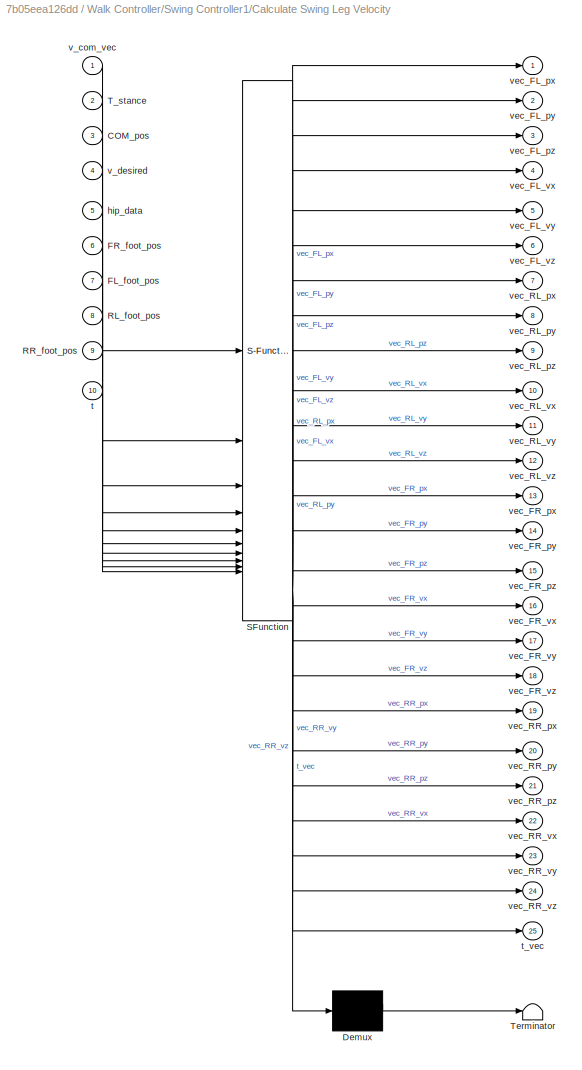
BLOCK [SubSystem] Walk Controller/Swing Controller1/Calculate Swing Leg Velocity
  Commented = on
  ErrorFcn = Stateflow.Translate.translate
  LibrarySourceBlock = simulink/User-Defined\nFunctions/MATLAB Function
  PermitHierarchicalResolution = ExplicitOnly
  SFBlockType = MATLAB Function
  TreatAsAtomicUnit = on
BLOCK [Demux] Walk Controller/Swing Controller1/Calculate Swing Leg Velocity/ Demux 
  Outputs = 1
BLOCK [S-Function] Walk Controller/Swing Controller1/Calculate Swing Leg Velocity/ SFunction 
  EnableBusSupport = on
  FunctionName = sf_sfun
  PortCounts = [10 26]
  SFcnIsStateOwnerBlock = off
  SFunctionDeploymentMode = off
  Tag = Stateflow S-Function 17
BLOCK [Terminator] Walk Controller/Swing Controller1/Calculate Swing Leg Velocity/ Terminator 
BLOCK [Inport] Walk Controller/Swing Controller1/Calculate Swing Leg Velocity/COM_pos
  Port = 3
BLOCK [Inport] Walk Controller/Swing Controller1/Calculate Swing Leg Velocity/FL_foot_pos
  Port = 7
BLOCK [Inport] Walk Controller/Swing Controller1/Calculate Swing Leg Velocity/FR_foot_pos
  Port = 6
BLOCK [Inport] Walk Controller/Swing Controller1/Calculate Swing Leg Velocity/RL_foot_pos
  Port = 8
BLOCK [Inport] Walk Controller/Swing Controller1/Calculate Swing Leg Velocity/RR_foot_pos
  Port = 9
BLOCK [Inport] Walk Controller/Swing Controller1/Calculate Swing Leg Velocity/T_stance
  Port = 2
BLOCK [Inport] Walk Controller/Swing Controller1/Calculate Swing Leg Velocity/hip_data
  Port = 5
BLOCK [Inport] Walk Controller/Swing Controller1/Calculate Swing Leg Velocity/t
  Port = 10
BLOCK [Outport] Walk Controller/Swing Controller1/Calculate Swing Leg Velocity/t_vec
  Port = 25
BLOCK [Inport] Walk Controller/Swing Controller1/Calculate Swing Leg Velocity/v_com_vec
BLOCK [Inport] Walk Controller/Swing Controller1/Calculate Swing Leg Velocity/v_desired
  Port = 4
BLOCK [Outport] Walk Controller/Swing Controller1/Calculate Swing Leg Velocity/vec_FL_px
BLOCK [Outport] Walk Controller/Swing Controller1/Calculate Swing Leg Velocity/vec_FL_py
  Port = 2
BLOCK [Outport] Walk Controller/Swing Controller1/Calculate Swing Leg Velocity/vec_FL_pz
  Port = 3
BLOCK [Outport] Walk Controller/Swing Controller1/Calculate Swing Leg Velocity/vec_FL_vx
  Port = 4
BLOCK [Outport] Walk Controller/Swing Controller1/Calculate Swing Leg Velocity/vec_FL_vy
  Port = 5
BLOCK [Outport] Walk Controller/Swing Controller1/Calculate Swing Leg Velocity/vec_FL_vz
  Port = 6
BLOCK [Outport] Walk Controller/Swing Controller1/Calculate Swing Leg Velocity/vec_FR_px
  Port = 13
BLOCK [Outport] Walk Controller/Swing Controller1/Calculate Swing Leg Velocity/vec_FR_py
  Port = 14
BLOCK [Outport] Walk Controller/Swing Controller1/Calculate Swing Leg Velocity/vec_FR_pz
  Port = 15
BLOCK [Outport] Walk Controller/Swing Controller1/Calculate Swing Leg Velocity/vec_FR_vx
  Port = 16
BLOCK [Outport] Walk Controller/Swing Controller1/Calculate Swing Leg Velocity/vec_FR_vy
  Port = 17
BLOCK [Outport] Walk Controller/Swing Controller1/Calculate Swing Leg Velocity/vec_FR_vz
  Port = 18
BLOCK [Outport] Walk Controller/Swing Controller1/Calculate Swing Leg Velocity/vec_RL_px
  Port = 7
BLOCK [Outport] Walk Controller/Swing Controller1/Calculate Swing Leg Velocity/vec_RL_py
  Port = 8
BLOCK [Outport] Walk Controller/Swing Controller1/Calculate Swing Leg Velocity/vec_RL_pz
  Port = 9
BLOCK [Outport] Walk Controller/Swing Controller1/Calculate Swing Leg Velocity/vec_RL_vx
  Port = 10
BLOCK [Outport] Walk Controller/Swing Controller1/Calculate Swing Leg Velocity/vec_RL_vy
  Port = 11
BLOCK [Outport] Walk Controller/Swing Controller1/Calculate Swing Leg Velocity/vec_RL_vz
  Port = 12
BLOCK [Outport] Walk Controller/Swing Controller1/Calculate Swing Leg Velocity/vec_RR_px
  Port = 19
BLOCK [Outport] Walk Controller/Swing Controller1/Calculate Swing Leg Velocity/vec_RR_py
  Port = 20
BLOCK [Outport] Walk Controller/Swing Controller1/Calculate Swing Leg Velocity/vec_RR_pz
  Port = 21
BLOCK [Outport] Walk Controller/Swing Controller1/Calculate Swing Leg Velocity/vec_RR_vx
  Port = 22
BLOCK [Outport] Walk Controller/Swing Controller1/Calculate Swing Leg Velocity/vec_RR_vy
  Port = 23
BLOCK [Outport] Walk Controller/Swing Controller1/Calculate Swing Leg Velocity/vec_RR_vz
  Port = 24
BLOCK [SubSystem] Walk Controller/Swing Controller1/Create Forces for Swing Leg
  ErrorFcn = Stateflow.Translate.translate
  LibrarySourceBlock = simulink/User-Defined\nFunctions/MATLAB Function
  PermitHierarchicalResolution = ExplicitOnly
  SFBlockType = MATLAB Function
  TreatAsAtomicUnit = on
BLOCK [Demux] Walk Controller/Swing Controller1/Create Forces for Swing Leg/ Demux 
  Outputs = 1
BLOCK [S-Function] Walk Controller/Swing Controller1/Create Forces for Swing Leg/ SFunction 
  EnableBusSupport = on
  FunctionName = sf_sfun
  PortCounts = [11 4]
  SFcnIsStateOwnerBlock = off
  SFunctionDeploymentMode = off
  Tag = Stateflow S-Function 18
BLOCK [Terminator] Walk Controller/Swing Controller1/Create Forces for Swing Leg/ Terminator 
BLOCK [Inport] Walk Controller/Swing Controller1/Create Forces for Swing Leg/FL_foot_pos
  Port = 3
BLOCK [Inport] Walk Controller/Swing Controller1/Create Forces for Swing Leg/FL_foot_vel
  Port = 7
BLOCK [Inport] Walk Controller/Swing Controller1/Create Forces for Swing Leg/FR_foot_pos
  Port = 4
BLOCK [Inport] Walk Controller/Swing Controller1/Create Forces for Swing Leg/FR_foot_vel
  Port = 8
BLOCK [Outport] Walk Controller/Swing Controller1/Create Forces for Swing Leg/FR_p_desired
  Port = 2
BLOCK [Outport] Walk Controller/Swing Controller1/Create Forces for Swing Leg/FR_p_foot
  Port = 3
BLOCK [Outport] Walk Controller/Swing Controller1/Create Forces for Swing Leg/F_swing
BLOCK [Inport] Walk Controller/Swing Controller1/Create Forces for Swing Leg/RL_foot_pos
  Port = 5
BLOCK [Inport] Walk Controller/Swing Controller1/Create Forces for Swing Leg/RL_foot_vel
  Port = 9
BLOCK [Inport] Walk Controller/Swing Controller1/Create Forces for Swing Leg/RR_foot_pos
  Port = 6
BLOCK [Inport] Walk Controller/Swing Controller1/Create Forces for Swing Leg/RR_foot_vel
  Port = 10
BLOCK [Inport] Walk Controller/Swing Controller1/Create Forces for Swing Leg/T_stance
  Port = 2
BLOCK [Inport] Walk Controller/Swing Controller1/Create Forces for Swing Leg/t
  Port = 11
BLOCK [Inport] Walk Controller/Swing Controller1/Create Forces for Swing Leg/vec_data
BLOCK [Outport] Walk Controller/Swing Controller1/F
BLOCK [Inport] Walk Controller/Swing Controller1/FL_foot_pos
  Port = 6
BLOCK [Inport] Walk Controller/Swing Controller1/FL_foot_vel
  Port = 12
BLOCK [Inport] Walk Controller/Swing Controller1/FR_foot_pos
  Port = 8
BLOCK [Inport] Walk Controller/Swing Controller1/FR_foot_vel
  Port = 10
BLOCK [MATLABFcn] Walk Controller/Swing Controller1/Interpreted MATLAB Function
  MATLABFcn = TASK3_stairs_trajectory(u)
  Output1D = off
  OutputDimensions = 1025
BLOCK [Memory] Walk Controller/Swing Controller1/Memory1
BLOCK [Mux] Walk Controller/Swing Controller1/Mux
  DisplayOption = bar
  Inputs = 10
BLOCK [Inport] Walk Controller/Swing Controller1/RL_foot_pos
  Port = 7
BLOCK [Inport] Walk Controller/Swing Controller1/RL_foot_vel
  Port = 11
BLOCK [Inport] Walk Controller/Swing Controller1/RR_foot_pos
  Port = 9
BLOCK [Inport] Walk Controller/Swing Controller1/RR_foot_vel
  Port = 13
BLOCK [Scope] Walk Controller/Swing Controller1/Scope
  Floating = off
  NumInputPorts = 3
  ScopeSpecificationString = Simulink.scopes.TimeScopeBlockCfg('CurrentConfiguration', extmgr.ConfigurationSet(extmgr.Configuration('Core','General UI',true),extmgr.Configuration('Core','Source UI',true),extmgr.Configuration('Sources','WiredSimulink',true,'DataLoggingVariableName','ScopeData1'),extmgr.Configuration('Visuals','Time Domain',true,'SerializedDisplays',{struct('MinYLimReal','-34.47282','MaxYLimReal','59.42649','YL...<+2315ch>
BLOCK [Scope] Walk Controller/Swing Controller1/Scope1
  Floating = off
  NumInputPorts = 1
  ScopeSpecificationString = Simulink.scopes.TimeScopeBlockCfg('CurrentConfiguration', extmgr.ConfigurationSet(extmgr.Configuration('Core','General UI',true),extmgr.Configuration('Core','Source UI',true),extmgr.Configuration('Sources','WiredSimulink',true,'DataLoggingVariableName','ScopeData1'),extmgr.Configuration('Visuals','Time Domain',true,'SerializedDisplays',{struct('MinYLimReal','-0.91166','MaxYLimReal','4.54574','YLab...<+2083ch>
BLOCK [Scope] Walk Controller/Swing Controller1/Scope2
  Floating = off
  NumInputPorts = 2
  ScopeSpecificationString = Simulink.scopes.TimeScopeBlockCfg('CurrentConfiguration', extmgr.ConfigurationSet(extmgr.Configuration('Core','General UI',true),extmgr.Configuration('Core','Source UI',true),extmgr.Configuration('Sources','WiredSimulink',true,'DataLoggingVariableName','ScopeData4'),extmgr.Configuration('Visuals','Time Domain',true,'SerializedDisplays',{struct('MinYLimReal','-0.11964','MaxYLimReal','0.43088','YLab...<+1827ch>
BLOCK [Inport] Walk Controller/Swing Controller1/T_stance
  Port = 3
BLOCK [ZeroOrderHold] Walk Controller/Swing Controller1/Zero-Order Hold
  SampleTime = .2
BLOCK [Inport] Walk Controller/Swing Controller1/hip_data
  Port = 5
BLOCK [Inport] Walk Controller/Swing Controller1/t
  Port = 14
BLOCK [Inport] Walk Controller/Swing Controller1/v_desired
  Port = 4
BLOCK [Inport] Walk Controller/T_stance
  Port = 20
BLOCK [Outport] Walk Controller/Tau_FL
BLOCK [Outport] Walk Controller/Tau_FR
  Port = 3
BLOCK [Outport] Walk Controller/Tau_RL
  Port = 2
BLOCK [Outport] Walk Controller/Tau_RR
  Port = 4
BLOCK [Inport] Walk Controller/hip_data
  Port = 5
BLOCK [Inport] Walk Controller/v_desired
  Port = 21
LINE Body/Mux:1 -> Body/Hip Data:1
LINE Body/PS-Simulink Converter:1 -> Body/Scope:1
LINE Body/Subsystem/Mux1:1 -> Body/Subsystem/Hip_pos:1
LINE Body/Subsystem/PS-Simulink Converter3:1 -> Body/Subsystem/Mux1:1
LINE Body/Subsystem/PS-Simulink Converter4:1 -> Body/Subsystem/Mux1:2
LINE Body/Subsystem/PS-Simulink Converter5:1 -> Body/Subsystem/Mux1:3
LINE Body/Subsystem1/Mux1:1 -> Body/Subsystem1/Hip_pos:1
LINE Body/Subsystem1/PS-Simulink Converter3:1 -> Body/Subsystem1/Mux1:1
LINE Body/Subsystem1/PS-Simulink Converter4:1 -> Body/Subsystem1/Mux1:2
LINE Body/Subsystem1/PS-Simulink Converter5:1 -> Body/Subsystem1/Mux1:3
LINE Body/Subsystem1:1 -> Body/Mux:2
LINE Body/Subsystem2/Mux1:1 -> Body/Subsystem2/Hip_pos:1
LINE Body/Subsystem2/PS-Simulink Converter3:1 -> Body/Subsystem2/Mux1:1
LINE Body/Subsystem2/PS-Simulink Converter4:1 -> Body/Subsystem2/Mux1:2
LINE Body/Subsystem2/PS-Simulink Converter5:1 -> Body/Subsystem2/Mux1:3
LINE Body/Subsystem2:1 -> Body/Mux:3
LINE Body/Subsystem3/Mux1:1 -> Body/Subsystem3/Hip_pos:1
LINE Body/Subsystem3/PS-Simulink Converter3:1 -> Body/Subsystem3/Mux1:1
LINE Body/Subsystem3/PS-Simulink Converter4:1 -> Body/Subsystem3/Mux1:2
LINE Body/Subsystem3/PS-Simulink Converter5:1 -> Body/Subsystem3/Mux1:3
LINE Body/Subsystem3:1 -> Body/Mux:4
LINE Body/Subsystem:1 -> Body/Mux:1
LINE Body:1 -> Walk Controller:5
NET Clock:1 -> Define Constants:1, MATLAB Function:1
LINE Define Constants/In1:1 -> Define Constants/Switch:2
LINE Define Constants/Mux:1 -> Define Constants/v_desired:1
LINE Define Constants/Ramp:1 -> Define Constants/Saturation:1
LINE Define Constants/Saturation:1 -> Define Constants/Switch:3
LINE Define Constants/Switch:1 -> Define Constants/Mux:1
LINE Define Constants/T_stance1:1 -> Define Constants/Switch:1
LINE Define Constants/T_stance:1 -> Define Constants/Out1:1
LINE Define Constants/Vy_desired:1 -> Define Constants/Mux:2
LINE Define Constants/Vz_desired:1 -> Define Constants/Mux:3
LINE Define Constants:1 -> Walk Controller:20
LINE Define Constants:2 -> Walk Controller:21
LINE Front Left Leg/Angle Concat:1 -> Front Left Leg/Angle Vector:1
LINE Front Left Leg/Leg Logger/PS-Simulink Converter1:1 -> Front Left Leg/Leg Logger/Scope:2
LINE Front Left Leg/Leg Logger/PS-Simulink Converter2:1 -> Front Left Leg/Leg Logger/Scope:3
LINE Front Left Leg/Leg Logger/PS-Simulink Converter:1 -> Front Left Leg/Leg Logger/Scope:1
LINE Front Left Leg/Leg Logger7/PS-Simulink Converter1:1 -> Front Left Leg/Leg Logger7/Scope:2
LINE Front Left Leg/Leg Logger7/PS-Simulink Converter2:1 -> Front Left Leg/Leg Logger7/Scope:3
LINE Front Left Leg/Leg Logger7/PS-Simulink Converter:1 -> Front Left Leg/Leg Logger7/Scope:1
LINE Front Left Leg/Leg Logger8/PS-Simulink Converter1:1 -> Front Left Leg/Leg Logger8/Scope:2
LINE Front Left Leg/Leg Logger8/PS-Simulink Converter2:1 -> Front Left Leg/Leg Logger8/Scope:3
LINE Front Left Leg/Leg Logger8/PS-Simulink Converter:1 -> Front Left Leg/Leg Logger8/Scope:1
LINE Front Left Leg/Mux1:1 -> Front Left Leg/ Foot Vel:1
LINE Front Left Leg/Mux:1 -> Front Left Leg/ Foot Pos:1
LINE Front Left Leg/PS-Simulink Converter10:1 -> Front Left Leg/Mux1:1
LINE Front Left Leg/PS-Simulink Converter11:1 -> Front Left Leg/Mux1:2
LINE Front Left Leg/PS-Simulink Converter12:1 -> Front Left Leg/Mux1:3
LINE Front Left Leg/PS-Simulink Converter1:1 -> Front Left Leg/Angle Concat:1
LINE Front Left Leg/PS-Simulink Converter2:1 -> Front Left Leg/Angle Concat:2
LINE Front Left Leg/PS-Simulink Converter3:1 -> Front Left Leg/Angle Concat:3
LINE Front Left Leg/PS-Simulink Converter4:1 -> Front Left Leg/Velocity Concat:1
LINE Front Left Leg/PS-Simulink Converter5:1 -> Front Left Leg/Velocity Concat:2
LINE Front Left Leg/PS-Simulink Converter6:1 -> Front Left Leg/Velocity Concat:3
LINE Front Left Leg/PS-Simulink Converter7:1 -> Front Left Leg/Mux:1
LINE Front Left Leg/PS-Simulink Converter8:1 -> Front Left Leg/Mux:2
LINE Front Left Leg/PS-Simulink Converter9:1 -> Front Left Leg/Mux:3
LINE Front Left Leg/Separate Torques:1 -> Front Left Leg/Simulink-PS Converter:1
LINE Front Left Leg/Separate Torques:2 -> Front Left Leg/Simulink-PS Converter1:1
LINE Front Left Leg/Separate Torques:3 -> Front Left Leg/Simulink-PS Converter2:1
LINE Front Left Leg/Velocity Concat:1 -> Front Left Leg/Velocity Vector:1
LINE Front Left Leg/torque_vector:1 -> Front Left Leg/Separate Torques:1
NET Front Left Leg:1 -> Stand Controller:2, Walk Controller:10
LINE Front Left Leg:2 -> Stand Controller:1
LINE Front Left Leg:3 -> Walk Controller:1
LINE Front Left Leg:4 -> Walk Controller:16
LINE Front Right Leg/Angle Concat:1 -> Front Right Leg/Angle Vector:1
LINE Front Right Leg/Leg Logger1/PS-Simulink Converter1:1 -> Front Right Leg/Leg Logger1/Scope:2
LINE Front Right Leg/Leg Logger1/PS-Simulink Converter2:1 -> Front Right Leg/Leg Logger1/Scope:3
LINE Front Right Leg/Leg Logger1/PS-Simulink Converter:1 -> Front Right Leg/Leg Logger1/Scope:1
LINE Front Right Leg/Leg Logger6/PS-Simulink Converter1:1 -> Front Right Leg/Leg Logger6/Scope:2
LINE Front Right Leg/Leg Logger6/PS-Simulink Converter2:1 -> Front Right Leg/Leg Logger6/Scope:3
LINE Front Right Leg/Leg Logger6/PS-Simulink Converter:1 -> Front Right Leg/Leg Logger6/Scope:1
LINE Front Right Leg/Leg Logger9/PS-Simulink Converter1:1 -> Front Right Leg/Leg Logger9/Scope:2
LINE Front Right Leg/Leg Logger9/PS-Simulink Converter2:1 -> Front Right Leg/Leg Logger9/Scope:3
LINE Front Right Leg/Leg Logger9/PS-Simulink Converter:1 -> Front Right Leg/Leg Logger9/Scope:1
LINE Front Right Leg/Mux1:1 -> Front Right Leg/ Foot Vel:1
LINE Front Right Leg/Mux:1 -> Front Right Leg/ Foot Pos:1
LINE Front Right Leg/PS-Simulink Converter10:1 -> Front Right Leg/Mux1:1
LINE Front Right Leg/PS-Simulink Converter11:1 -> Front Right Leg/Mux1:2
LINE Front Right Leg/PS-Simulink Converter12:1 -> Front Right Leg/Mux1:3
LINE Front Right Leg/PS-Simulink Converter1:1 -> Front Right Leg/Angle Concat:1
LINE Front Right Leg/PS-Simulink Converter2:1 -> Front Right Leg/Angle Concat:2
LINE Front Right Leg/PS-Simulink Converter3:1 -> Front Right Leg/Angle Concat:3
LINE Front Right Leg/PS-Simulink Converter4:1 -> Front Right Leg/Velocity Concat:1
LINE Front Right Leg/PS-Simulink Converter5:1 -> Front Right Leg/Velocity Concat:2
LINE Front Right Leg/PS-Simulink Converter6:1 -> Front Right Leg/Velocity Concat:3
LINE Front Right Leg/PS-Simulink Converter7:1 -> Front Right Leg/Mux:1
LINE Front Right Leg/PS-Simulink Converter8:1 -> Front Right Leg/Mux:2
LINE Front Right Leg/PS-Simulink Converter9:1 -> Front Right Leg/Mux:3
NET Front Right Leg/Separate Torques:1 -> Front Right Leg/Scope:1, Front Right Leg/Simulink-PS Converter:1
NET Front Right Leg/Separate Torques:2 -> Front Right Leg/Scope:2, Front Right Leg/Simulink-PS Converter1:1
NET Front Right Leg/Separate Torques:3 -> Front Right Leg/Scope:3, Front Right Leg/Simulink-PS Converter2:1
LINE Front Right Leg/Velocity Concat:1 -> Front Right Leg/Velocity Vector:1
LINE Front Right Leg/torque_vector:1 -> Front Right Leg/Separate Torques:1
NET Front Right Leg:1 -> Stand Controller:6, Walk Controller:12
LINE Front Right Leg:2 -> Stand Controller:5
LINE Front Right Leg:3 -> Walk Controller:3
LINE Front Right Leg:4 -> Walk Controller:14
LINE MATLAB Function:1 -> Front Left Leg:1
LINE MATLAB Function:2 -> Rear Left Leg:1
LINE MATLAB Function:3 -> Front Right Leg:1
LINE MATLAB Function:4 -> Rear Right Leg:1
LINE Model Contact/Mux1:1 -> Model Contact/Stiar Cont:1
LINE Model Contact/Mux:1 -> Model Contact/Contact:1
LINE Model Contact/PS-Simulink Converter1:1 -> Model Contact/Scope:2
LINE Model Contact/PS-Simulink Converter2:1 -> Model Contact/Mux:1
LINE Model Contact/PS-Simulink Converter3:1 -> Model Contact/Mux:2
LINE Model Contact/PS-Simulink Converter4:1 -> Model Contact/Mux:3
LINE Model Contact/PS-Simulink Converter5:1 -> Model Contact/Mux:4
LINE Model Contact/PS-Simulink Converter:1 -> Model Contact/Scope:1
LINE Model Contact/Subsystem/Mux:1 -> Model Contact/Subsystem/Stair 2 Cont:1
LINE Model Contact/Subsystem/PS-Simulink Converter1:1 -> Model Contact/Subsystem/Mux:1
LINE Model Contact/Subsystem/PS-Simulink Converter2:1 -> Model Contact/Subsystem/Mux:2
LINE Model Contact/Subsystem/PS-Simulink Converter3:1 -> Model Contact/Subsystem/Mux:4
LINE Model Contact/Subsystem/PS-Simulink Converter:1 -> Model Contact/Subsystem/Mux:3
LINE Model Contact/Subsystem1/Mux:1 -> Model Contact/Subsystem1/Stair 1 Cont:1
LINE Model Contact/Subsystem1/PS-Simulink Converter1:1 -> Model Contact/Subsystem1/Mux:2
LINE Model Contact/Subsystem1/PS-Simulink Converter2:1 -> Model Contact/Subsystem1/Mux:3
LINE Model Contact/Subsystem1/PS-Simulink Converter3:1 -> Model Contact/Subsystem1/Mux:1
LINE Model Contact/Subsystem1/PS-Simulink Converter:1 -> Model Contact/Subsystem1/Mux:4
LINE Model Contact/Subsystem1:1 -> Model Contact/Mux1:1
LINE Model Contact/Subsystem3/Mux:1 -> Model Contact/Subsystem3/Stair 4 Cont:1
LINE Model Contact/Subsystem3/PS-Simulink Converter1:1 -> Model Contact/Subsystem3/Mux:2
LINE Model Contact/Subsystem3/PS-Simulink Converter2:1 -> Model Contact/Subsystem3/Mux:3
LINE Model Contact/Subsystem3/PS-Simulink Converter3:1 -> Model Contact/Subsystem3/Mux:1
LINE Model Contact/Subsystem3/PS-Simulink Converter:1 -> Model Contact/Subsystem3/Mux:4
LINE Model Contact/Subsystem3:1 -> Model Contact/Mux1:4
LINE Model Contact/Subsystem4/Mux:1 -> Model Contact/Subsystem4/Stair 5 Cont:1
LINE Model Contact/Subsystem4/PS-Simulink Converter1:1 -> Model Contact/Subsystem4/Mux:2
LINE Model Contact/Subsystem4/PS-Simulink Converter2:1 -> Model Contact/Subsystem4/Mux:3
LINE Model Contact/Subsystem4/PS-Simulink Converter3:1 -> Model Contact/Subsystem4/Mux:1
LINE Model Contact/Subsystem4/PS-Simulink Converter:1 -> Model Contact/Subsystem4/Mux:4
LINE Model Contact/Subsystem4:1 -> Model Contact/Mux1:5
LINE Model Contact/Subsystem5/Mux:1 -> Model Contact/Subsystem5/Stair 3 Cont:1
LINE Model Contact/Subsystem5/PS-Simulink Converter1:1 -> Model Contact/Subsystem5/Mux:2
LINE Model Contact/Subsystem5/PS-Simulink Converter2:1 -> Model Contact/Subsystem5/Mux:3
LINE Model Contact/Subsystem5/PS-Simulink Converter3:1 -> Model Contact/Subsystem5/Mux:1
LINE Model Contact/Subsystem5/PS-Simulink Converter:1 -> Model Contact/Subsystem5/Mux:4
LINE Model Contact/Subsystem5:1 -> Model Contact/Mux1:3
LINE Model Contact/Subsystem:1 -> Model Contact/Mux1:2
LINE Model Contact:1 -> Walk Controller:18
LINE Model Contact:2 -> Walk Controller:19
LINE Mux1:1 -> MATLAB Function:2
LINE Mux:1 -> MATLAB Function:3
LINE Rear Left Leg/Angle Concat:1 -> Rear Left Leg/Angle Vector:1
LINE Rear Left Leg/Leg Logger10/PS-Simulink Converter1:1 -> Rear Left Leg/Leg Logger10/Scope:2
LINE Rear Left Leg/Leg Logger10/PS-Simulink Converter2:1 -> Rear Left Leg/Leg Logger10/Scope:3
LINE Rear Left Leg/Leg Logger10/PS-Simulink Converter:1 -> Rear Left Leg/Leg Logger10/Scope:1
LINE Rear Left Leg/Leg Logger2/PS-Simulink Converter1:1 -> Rear Left Leg/Leg Logger2/Scope:2
LINE Rear Left Leg/Leg Logger2/PS-Simulink Converter2:1 -> Rear Left Leg/Leg Logger2/Scope:3
LINE Rear Left Leg/Leg Logger2/PS-Simulink Converter:1 -> Rear Left Leg/Leg Logger2/Scope:1
LINE Rear Left Leg/Leg Logger5/PS-Simulink Converter1:1 -> Rear Left Leg/Leg Logger5/Scope:2
LINE Rear Left Leg/Leg Logger5/PS-Simulink Converter2:1 -> Rear Left Leg/Leg Logger5/Scope:3
LINE Rear Left Leg/Leg Logger5/PS-Simulink Converter:1 -> Rear Left Leg/Leg Logger5/Scope:1
LINE Rear Left Leg/Mux1:1 -> Rear Left Leg/ Foot Vel:1
LINE Rear Left Leg/Mux:1 -> Rear Left Leg/ Foot Pos:1
LINE Rear Left Leg/PS-Simulink Converter10:1 -> Rear Left Leg/Mux1:1
LINE Rear Left Leg/PS-Simulink Converter11:1 -> Rear Left Leg/Mux1:2
LINE Rear Left Leg/PS-Simulink Converter12:1 -> Rear Left Leg/Mux1:3
LINE Rear Left Leg/PS-Simulink Converter1:1 -> Rear Left Leg/Angle Concat:1
LINE Rear Left Leg/PS-Simulink Converter2:1 -> Rear Left Leg/Angle Concat:2
LINE Rear Left Leg/PS-Simulink Converter3:1 -> Rear Left Leg/Angle Concat:3
LINE Rear Left Leg/PS-Simulink Converter4:1 -> Rear Left Leg/Velocity Concat:1
LINE Rear Left Leg/PS-Simulink Converter5:1 -> Rear Left Leg/Velocity Concat:2
LINE Rear Left Leg/PS-Simulink Converter6:1 -> Rear Left Leg/Velocity Concat:3
LINE Rear Left Leg/PS-Simulink Converter7:1 -> Rear Left Leg/Mux:1
LINE Rear Left Leg/PS-Simulink Converter8:1 -> Rear Left Leg/Mux:2
LINE Rear Left Leg/PS-Simulink Converter9:1 -> Rear Left Leg/Mux:3
NET Rear Left Leg/Separate Torques:1 -> Rear Left Leg/Scope:1, Rear Left Leg/Simulink-PS Converter:1
NET Rear Left Leg/Separate Torques:2 -> Rear Left Leg/Scope:2, Rear Left Leg/Simulink-PS Converter1:1
NET Rear Left Leg/Separate Torques:3 -> Rear Left Leg/Scope:3, Rear Left Leg/Simulink-PS Converter2:1
LINE Rear Left Leg/Velocity Concat:1 -> Rear Left Leg/Velocity Vector:1
LINE Rear Left Leg/torque_vector:1 -> Rear Left Leg/Separate Torques:1
NET Rear Left Leg:1 -> Stand Controller:4, Walk Controller:11
LINE Rear Left Leg:2 -> Stand Controller:3
LINE Rear Left Leg:3 -> Walk Controller:2
LINE Rear Left Leg:4 -> Walk Controller:15
LINE Rear Right Leg/Angle Concat:1 -> Rear Right Leg/Angle Vector:1
LINE Rear Right Leg/Leg Logger11/PS-Simulink Converter1:1 -> Rear Right Leg/Leg Logger11/Scope:2
LINE Rear Right Leg/Leg Logger11/PS-Simulink Converter2:1 -> Rear Right Leg/Leg Logger11/Scope:3
LINE Rear Right Leg/Leg Logger11/PS-Simulink Converter:1 -> Rear Right Leg/Leg Logger11/Scope:1
LINE Rear Right Leg/Leg Logger3/PS-Simulink Converter1:1 -> Rear Right Leg/Leg Logger3/Scope:2
LINE Rear Right Leg/Leg Logger3/PS-Simulink Converter2:1 -> Rear Right Leg/Leg Logger3/Scope:3
LINE Rear Right Leg/Leg Logger3/PS-Simulink Converter:1 -> Rear Right Leg/Leg Logger3/Scope:1
LINE Rear Right Leg/Leg Logger4/PS-Simulink Converter1:1 -> Rear Right Leg/Leg Logger4/Scope:2
LINE Rear Right Leg/Leg Logger4/PS-Simulink Converter2:1 -> Rear Right Leg/Leg Logger4/Scope:3
LINE Rear Right Leg/Leg Logger4/PS-Simulink Converter:1 -> Rear Right Leg/Leg Logger4/Scope:1
LINE Rear Right Leg/Mux1:1 -> Rear Right Leg/ Foot Vel:1
LINE Rear Right Leg/Mux:1 -> Rear Right Leg/ Foot Pos:1
LINE Rear Right Leg/PS-Simulink Converter10:1 -> Rear Right Leg/Mux1:1
LINE Rear Right Leg/PS-Simulink Converter11:1 -> Rear Right Leg/Mux1:2
LINE Rear Right Leg/PS-Simulink Converter12:1 -> Rear Right Leg/Mux1:3
LINE Rear Right Leg/PS-Simulink Converter1:1 -> Rear Right Leg/Angle Concat:1
LINE Rear Right Leg/PS-Simulink Converter2:1 -> Rear Right Leg/Angle Concat:2
LINE Rear Right Leg/PS-Simulink Converter3:1 -> Rear Right Leg/Angle Concat:3
LINE Rear Right Leg/PS-Simulink Converter4:1 -> Rear Right Leg/Velocity Concat:1
LINE Rear Right Leg/PS-Simulink Converter5:1 -> Rear Right Leg/Velocity Concat:2
LINE Rear Right Leg/PS-Simulink Converter6:1 -> Rear Right Leg/Velocity Concat:3
LINE Rear Right Leg/PS-Simulink Converter7:1 -> Rear Right Leg/Mux:1
LINE Rear Right Leg/PS-Simulink Converter8:1 -> Rear Right Leg/Mux:2
LINE Rear Right Leg/PS-Simulink Converter9:1 -> Rear Right Leg/Mux:3
LINE Rear Right Leg/Separate Torques:1 -> Rear Right Leg/Simulink-PS Converter:1
LINE Rear Right Leg/Separate Torques:2 -> Rear Right Leg/Simulink-PS Converter1:1
LINE Rear Right Leg/Separate Torques:3 -> Rear Right Leg/Simulink-PS Converter2:1
LINE Rear Right Leg/Velocity Concat:1 -> Rear Right Leg/Velocity Vector:1
LINE Rear Right Leg/torque_vector:1 -> Rear Right Leg/Separate Torques:1
NET Rear Right Leg:1 -> Stand Controller:8, Walk Controller:13
LINE Rear Right Leg:2 -> Stand Controller:7
LINE Rear Right Leg:3 -> Walk Controller:4
LINE Rear Right Leg:4 -> Walk Controller:17
LINE Stand Controller/FL_angle_vector:1 -> Stand Controller/MATLAB Function:1
LINE Stand Controller/FL_velocity_vector:1 -> Stand Controller/MATLAB Function1:1
LINE Stand Controller/FR_angle_vector:1 -> Stand Controller/MATLAB Function4:1
LINE Stand Controller/FR_velocity_vector:1 -> Stand Controller/MATLAB Function5:1
LINE Stand Controller/MATLAB Function1:1 -> Stand Controller/Subsystem5:2
LINE Stand Controller/MATLAB Function1:2 -> Stand Controller/Subsystem1:2
LINE Stand Controller/MATLAB Function1:3 -> Stand Controller/Subsystem3:2
LINE Stand Controller/MATLAB Function2:1 -> Stand Controller/Subsystem6:1
LINE Stand Controller/MATLAB Function2:2 -> Stand Controller/Subsystem2:1
LINE Stand Controller/MATLAB Function2:3 -> Stand Controller/Subsystem4:1
LINE Stand Controller/MATLAB Function3:1 -> Stand Controller/Subsystem6:2
LINE Stand Controller/MATLAB Function3:2 -> Stand Controller/Subsystem2:2
LINE Stand Controller/MATLAB Function3:3 -> Stand Controller/Subsystem4:2
LINE Stand Controller/MATLAB Function4:1 -> Stand Controller/Subsystem9:1
LINE Stand Controller/MATLAB Function4:2 -> Stand Controller/Subsystem7:1
LINE Stand Controller/MATLAB Function4:3 -> Stand Controller/Subsystem8:1
LINE Stand Controller/MATLAB Function5:1 -> Stand Controller/Subsystem9:2
LINE Stand Controller/MATLAB Function5:2 -> Stand Controller/Subsystem7:2
LINE Stand Controller/MATLAB Function5:3 -> Stand Controller/Subsystem8:2
LINE Stand Controller/MATLAB Function6:1 -> Stand Controller/Subsystem12:1
LINE Stand Controller/MATLAB Function6:2 -> Stand Controller/Subsystem10:1
LINE Stand Controller/MATLAB Function6:3 -> Stand Controller/Subsystem11:1
LINE Stand Controller/MATLAB Function7:1 -> Stand Controller/Subsystem12:2
LINE Stand Controller/MATLAB Function7:2 -> Stand Controller/Subsystem10:2
LINE Stand Controller/MATLAB Function7:3 -> Stand Controller/Subsystem11:2
LINE Stand Controller/MATLAB Function:1 -> Stand Controller/Subsystem5:1
LINE Stand Controller/MATLAB Function:2 -> Stand Controller/Subsystem1:1
LINE Stand Controller/MATLAB Function:3 -> Stand Controller/Subsystem3:1
LINE Stand Controller/Mux1:1 -> Stand Controller/RL_Torque:1
LINE Stand Controller/Mux2:1 -> Stand Controller/FR_Torque:1
LINE Stand Controller/Mux3:1 -> Stand Controller/RR_Torque:1
LINE Stand Controller/Mux:1 -> Stand Controller/FL_Torque:1
LINE Stand Controller/RL_angle_vector:1 -> Stand Controller/MATLAB Function2:1
LINE Stand Controller/RL_velocity_vector:1 -> Stand Controller/MATLAB Function3:1
LINE Stand Controller/RR_angle_vector:1 -> Stand Controller/MATLAB Function6:1
LINE Stand Controller/RR_velocity_vector:1 -> Stand Controller/MATLAB Function7:1
LINE Stand Controller/Subsystem1/Add:1 -> Stand Controller/Subsystem1/Saturation:1
LINE Stand Controller/Subsystem1/Constant1:1 -> Stand Controller/Subsystem1/Product1:2
LINE Stand Controller/Subsystem1/Constant2:1 -> Stand Controller/Subsystem1/Product:2
LINE Stand Controller/Subsystem1/Constant3:1 -> Stand Controller/Subsystem1/Subtract:2
LINE Stand Controller/Subsystem1/Product1:1 -> Stand Controller/Subsystem1/Add:2
LINE Stand Controller/Subsystem1/Product:1 -> Stand Controller/Subsystem1/Add:1
LINE Stand Controller/Subsystem1/Saturation:1 -> Stand Controller/Subsystem1/Torque:1
LINE Stand Controller/Subsystem1/Subtract:1 -> Stand Controller/Subsystem1/Product:1
LINE Stand Controller/Subsystem1/angle:1 -> Stand Controller/Subsystem1/Subtract:1
LINE Stand Controller/Subsystem1/velocity:1 -> Stand Controller/Subsystem1/Product1:1
LINE Stand Controller/Subsystem10/Add:1 -> Stand Controller/Subsystem10/Saturation:1
LINE Stand Controller/Subsystem10/Constant1:1 -> Stand Controller/Subsystem10/Product1:2
LINE Stand Controller/Subsystem10/Constant2:1 -> Stand Controller/Subsystem10/Product:2
LINE Stand Controller/Subsystem10/Constant3:1 -> Stand Controller/Subsystem10/Subtract:2
LINE Stand Controller/Subsystem10/Product1:1 -> Stand Controller/Subsystem10/Add:2
LINE Stand Controller/Subsystem10/Product:1 -> Stand Controller/Subsystem10/Add:1
LINE Stand Controller/Subsystem10/Saturation:1 -> Stand Controller/Subsystem10/Torque:1
LINE Stand Controller/Subsystem10/Subtract:1 -> Stand Controller/Subsystem10/Product:1
LINE Stand Controller/Subsystem10/angle:1 -> Stand Controller/Subsystem10/Subtract:1
LINE Stand Controller/Subsystem10/velocity:1 -> Stand Controller/Subsystem10/Product1:1
LINE Stand Controller/Subsystem10:1 -> Stand Controller/Mux3:2
LINE Stand Controller/Subsystem11/Add:1 -> Stand Controller/Subsystem11/Saturation:1
LINE Stand Controller/Subsystem11/Constant1:1 -> Stand Controller/Subsystem11/Product1:2
LINE Stand Controller/Subsystem11/Constant2:1 -> Stand Controller/Subsystem11/Product:2
LINE Stand Controller/Subsystem11/Constant3:1 -> Stand Controller/Subsystem11/Subtract:2
LINE Stand Controller/Subsystem11/Product1:1 -> Stand Controller/Subsystem11/Add:2
LINE Stand Controller/Subsystem11/Product:1 -> Stand Controller/Subsystem11/Add:1
LINE Stand Controller/Subsystem11/Saturation:1 -> Stand Controller/Subsystem11/Torque:1
LINE Stand Controller/Subsystem11/Subtract:1 -> Stand Controller/Subsystem11/Product:1
LINE Stand Controller/Subsystem11/angle:1 -> Stand Controller/Subsystem11/Subtract:1
LINE Stand Controller/Subsystem11/velocity:1 -> Stand Controller/Subsystem11/Product1:1
LINE Stand Controller/Subsystem11:1 -> Stand Controller/Mux3:3
LINE Stand Controller/Subsystem12/Add:1 -> Stand Controller/Subsystem12/Saturation:1
LINE Stand Controller/Subsystem12/Constant1:1 -> Stand Controller/Subsystem12/Product1:2
LINE Stand Controller/Subsystem12/Constant2:1 -> Stand Controller/Subsystem12/Product:2
LINE Stand Controller/Subsystem12/Constant3:1 -> Stand Controller/Subsystem12/Subtract:2
LINE Stand Controller/Subsystem12/Product1:1 -> Stand Controller/Subsystem12/Add:2
LINE Stand Controller/Subsystem12/Product:1 -> Stand Controller/Subsystem12/Add:1
LINE Stand Controller/Subsystem12/Saturation:1 -> Stand Controller/Subsystem12/Torque:1
LINE Stand Controller/Subsystem12/Subtract:1 -> Stand Controller/Subsystem12/Product:1
LINE Stand Controller/Subsystem12/angle:1 -> Stand Controller/Subsystem12/Subtract:1
LINE Stand Controller/Subsystem12/velocity:1 -> Stand Controller/Subsystem12/Product1:1
LINE Stand Controller/Subsystem12:1 -> Stand Controller/Mux3:1
LINE Stand Controller/Subsystem1:1 -> Stand Controller/Mux:2
LINE Stand Controller/Subsystem2/Add:1 -> Stand Controller/Subsystem2/Saturation:1
LINE Stand Controller/Subsystem2/Constant1:1 -> Stand Controller/Subsystem2/Product1:2
LINE Stand Controller/Subsystem2/Constant2:1 -> Stand Controller/Subsystem2/Product:2
LINE Stand Controller/Subsystem2/Constant3:1 -> Stand Controller/Subsystem2/Subtract:2
LINE Stand Controller/Subsystem2/Product1:1 -> Stand Controller/Subsystem2/Add:2
LINE Stand Controller/Subsystem2/Product:1 -> Stand Controller/Subsystem2/Add:1
LINE Stand Controller/Subsystem2/Saturation:1 -> Stand Controller/Subsystem2/Torque:1
LINE Stand Controller/Subsystem2/Subtract:1 -> Stand Controller/Subsystem2/Product:1
LINE Stand Controller/Subsystem2/angle:1 -> Stand Controller/Subsystem2/Subtract:1
LINE Stand Controller/Subsystem2/velocity:1 -> Stand Controller/Subsystem2/Product1:1
LINE Stand Controller/Subsystem2:1 -> Stand Controller/Mux1:2
LINE Stand Controller/Subsystem3/Add:1 -> Stand Controller/Subsystem3/Saturation:1
LINE Stand Controller/Subsystem3/Constant1:1 -> Stand Controller/Subsystem3/Product1:2
LINE Stand Controller/Subsystem3/Constant2:1 -> Stand Controller/Subsystem3/Product:2
LINE Stand Controller/Subsystem3/Constant3:1 -> Stand Controller/Subsystem3/Subtract:2
LINE Stand Controller/Subsystem3/Product1:1 -> Stand Controller/Subsystem3/Add:2
LINE Stand Controller/Subsystem3/Product:1 -> Stand Controller/Subsystem3/Add:1
LINE Stand Controller/Subsystem3/Saturation:1 -> Stand Controller/Subsystem3/Torque:1
LINE Stand Controller/Subsystem3/Subtract:1 -> Stand Controller/Subsystem3/Product:1
LINE Stand Controller/Subsystem3/angle:1 -> Stand Controller/Subsystem3/Subtract:1
LINE Stand Controller/Subsystem3/velocity:1 -> Stand Controller/Subsystem3/Product1:1
LINE Stand Controller/Subsystem3:1 -> Stand Controller/Mux:3
LINE Stand Controller/Subsystem4/Add:1 -> Stand Controller/Subsystem4/Saturation:1
LINE Stand Controller/Subsystem4/Constant1:1 -> Stand Controller/Subsystem4/Product1:2
LINE Stand Controller/Subsystem4/Constant2:1 -> Stand Controller/Subsystem4/Product:2
LINE Stand Controller/Subsystem4/Constant3:1 -> Stand Controller/Subsystem4/Subtract:2
LINE Stand Controller/Subsystem4/Product1:1 -> Stand Controller/Subsystem4/Add:2
LINE Stand Controller/Subsystem4/Product:1 -> Stand Controller/Subsystem4/Add:1
LINE Stand Controller/Subsystem4/Saturation:1 -> Stand Controller/Subsystem4/Torque:1
LINE Stand Controller/Subsystem4/Subtract:1 -> Stand Controller/Subsystem4/Product:1
LINE Stand Controller/Subsystem4/angle:1 -> Stand Controller/Subsystem4/Subtract:1
LINE Stand Controller/Subsystem4/velocity:1 -> Stand Controller/Subsystem4/Product1:1
LINE Stand Controller/Subsystem4:1 -> Stand Controller/Mux1:3
LINE Stand Controller/Subsystem5/Add:1 -> Stand Controller/Subsystem5/Saturation:1
LINE Stand Controller/Subsystem5/Constant1:1 -> Stand Controller/Subsystem5/Product1:2
LINE Stand Controller/Subsystem5/Constant2:1 -> Stand Controller/Subsystem5/Product:2
LINE Stand Controller/Subsystem5/Constant3:1 -> Stand Controller/Subsystem5/Subtract:2
LINE Stand Controller/Subsystem5/Product1:1 -> Stand Controller/Subsystem5/Add:2
LINE Stand Controller/Subsystem5/Product:1 -> Stand Controller/Subsystem5/Add:1
LINE Stand Controller/Subsystem5/Saturation:1 -> Stand Controller/Subsystem5/Torque:1
LINE Stand Controller/Subsystem5/Subtract:1 -> Stand Controller/Subsystem5/Product:1
LINE Stand Controller/Subsystem5/angle:1 -> Stand Controller/Subsystem5/Subtract:1
LINE Stand Controller/Subsystem5/velocity:1 -> Stand Controller/Subsystem5/Product1:1
LINE Stand Controller/Subsystem5:1 -> Stand Controller/Mux:1
LINE Stand Controller/Subsystem6/Add:1 -> Stand Controller/Subsystem6/Saturation:1
LINE Stand Controller/Subsystem6/Constant1:1 -> Stand Controller/Subsystem6/Product1:2
LINE Stand Controller/Subsystem6/Constant2:1 -> Stand Controller/Subsystem6/Product:2
LINE Stand Controller/Subsystem6/Constant3:1 -> Stand Controller/Subsystem6/Subtract:2
LINE Stand Controller/Subsystem6/Product1:1 -> Stand Controller/Subsystem6/Add:2
LINE Stand Controller/Subsystem6/Product:1 -> Stand Controller/Subsystem6/Add:1
LINE Stand Controller/Subsystem6/Saturation:1 -> Stand Controller/Subsystem6/Torque:1
LINE Stand Controller/Subsystem6/Subtract:1 -> Stand Controller/Subsystem6/Product:1
LINE Stand Controller/Subsystem6/angle:1 -> Stand Controller/Subsystem6/Subtract:1
LINE Stand Controller/Subsystem6/velocity:1 -> Stand Controller/Subsystem6/Product1:1
LINE Stand Controller/Subsystem6:1 -> Stand Controller/Mux1:1
LINE Stand Controller/Subsystem7/Add:1 -> Stand Controller/Subsystem7/Saturation:1
LINE Stand Controller/Subsystem7/Constant1:1 -> Stand Controller/Subsystem7/Product1:2
LINE Stand Controller/Subsystem7/Constant2:1 -> Stand Controller/Subsystem7/Product:2
LINE Stand Controller/Subsystem7/Constant3:1 -> Stand Controller/Subsystem7/Subtract:2
LINE Stand Controller/Subsystem7/Product1:1 -> Stand Controller/Subsystem7/Add:2
LINE Stand Controller/Subsystem7/Product:1 -> Stand Controller/Subsystem7/Add:1
LINE Stand Controller/Subsystem7/Saturation:1 -> Stand Controller/Subsystem7/Torque:1
LINE Stand Controller/Subsystem7/Subtract:1 -> Stand Controller/Subsystem7/Product:1
LINE Stand Controller/Subsystem7/angle:1 -> Stand Controller/Subsystem7/Subtract:1
LINE Stand Controller/Subsystem7/velocity:1 -> Stand Controller/Subsystem7/Product1:1
LINE Stand Controller/Subsystem7:1 -> Stand Controller/Mux2:2
LINE Stand Controller/Subsystem8/Add:1 -> Stand Controller/Subsystem8/Saturation:1
LINE Stand Controller/Subsystem8/Constant1:1 -> Stand Controller/Subsystem8/Product1:2
LINE Stand Controller/Subsystem8/Constant2:1 -> Stand Controller/Subsystem8/Product:2
LINE Stand Controller/Subsystem8/Constant3:1 -> Stand Controller/Subsystem8/Subtract:2
LINE Stand Controller/Subsystem8/Product1:1 -> Stand Controller/Subsystem8/Add:2
LINE Stand Controller/Subsystem8/Product:1 -> Stand Controller/Subsystem8/Add:1
LINE Stand Controller/Subsystem8/Saturation:1 -> Stand Controller/Subsystem8/Torque:1
LINE Stand Controller/Subsystem8/Subtract:1 -> Stand Controller/Subsystem8/Product:1
LINE Stand Controller/Subsystem8/angle:1 -> Stand Controller/Subsystem8/Subtract:1
LINE Stand Controller/Subsystem8/velocity:1 -> Stand Controller/Subsystem8/Product1:1
LINE Stand Controller/Subsystem8:1 -> Stand Controller/Mux2:3
LINE Stand Controller/Subsystem9/Add:1 -> Stand Controller/Subsystem9/Saturation:1
LINE Stand Controller/Subsystem9/Constant1:1 -> Stand Controller/Subsystem9/Product1:2
LINE Stand Controller/Subsystem9/Constant2:1 -> Stand Controller/Subsystem9/Product:2
LINE Stand Controller/Subsystem9/Constant3:1 -> Stand Controller/Subsystem9/Subtract:2
LINE Stand Controller/Subsystem9/Product1:1 -> Stand Controller/Subsystem9/Add:2
LINE Stand Controller/Subsystem9/Product:1 -> Stand Controller/Subsystem9/Add:1
LINE Stand Controller/Subsystem9/Saturation:1 -> Stand Controller/Subsystem9/Torque:1
LINE Stand Controller/Subsystem9/Subtract:1 -> Stand Controller/Subsystem9/Product:1
LINE Stand Controller/Subsystem9/angle:1 -> Stand Controller/Subsystem9/Subtract:1
LINE Stand Controller/Subsystem9/velocity:1 -> Stand Controller/Subsystem9/Product1:1
LINE Stand Controller/Subsystem9:1 -> Stand Controller/Mux2:1
LINE Stand Controller:1 -> Mux1:1
LINE Stand Controller:2 -> Mux1:2
LINE Stand Controller:3 -> Mux1:3
LINE Stand Controller:4 -> Mux1:4
LINE Subsystem/Mux1:1 -> Subsystem/COM_pos:1
LINE Subsystem/Mux2:1 -> Subsystem/COM_ang_vel:1
LINE Subsystem/Mux:1 -> Subsystem/COM_vel:1
LINE Subsystem/PS-Simulink Converter1:1 -> Subsystem/Mux:2
LINE Subsystem/PS-Simulink Converter2:1 -> Subsystem/Mux:3
LINE Subsystem/PS-Simulink Converter3:1 -> Subsystem/Mux1:1
LINE Subsystem/PS-Simulink Converter4:1 -> Subsystem/Mux1:2
LINE Subsystem/PS-Simulink Converter5:1 -> Subsystem/Mux1:3
LINE Subsystem/PS-Simulink Converter6:1 -> Subsystem/Mux2:1
LINE Subsystem/PS-Simulink Converter7:1 -> Subsystem/Mux2:2
LINE Subsystem/PS-Simulink Converter8:1 -> Subsystem/Mux2:3
LINE Subsystem/PS-Simulink Converter9:1 -> Subsystem/Rot:1
LINE Subsystem/PS-Simulink Converter:1 -> Subsystem/Mux:1
LINE Subsystem:1 -> Walk Controller:6
NET Subsystem:2 -> Scope:1, Walk Controller:7
LINE Subsystem:3 -> Walk Controller:8
LINE Subsystem:4 -> Walk Controller:9
LINE Walk Controller/COM_ang_vel:1 -> Walk Controller/Rigid Body Controller:7
NET Walk Controller/COM_pos:1 -> Walk Controller/MATLAB Function:1, Walk Controller/Rigid Body Controller:5, Walk Controller/Scope3:1, Walk Controller/Swing Controller1:1
NET Walk Controller/COM_vel:1 -> Walk Controller/Rigid Body Controller:6, Walk Controller/Scope4:1, Walk Controller/Swing Controller1:2
NET Walk Controller/Clock:1 -> Walk Controller/Combine Forces:1, Walk Controller/Swing Controller1:14
NET Walk Controller/Combine Forces:1 -> Walk Controller/Convert Forces to Torque1:1, Walk Controller/Selector:1
LINE Walk Controller/Contact:1 -> Walk Controller/Combine Forces:5
LINE Walk Controller/Convert Forces to Torque1/F:1 -> Walk Controller/Convert Forces to Torque1/Force to Torque:1
LINE Walk Controller/Convert Forces to Torque1/FL_Ang_Vec:1 -> Walk Controller/Convert Forces to Torque1/Force to Torque:4
LINE Walk Controller/Convert Forces to Torque1/FR_Ang_Vec:1 -> Walk Controller/Convert Forces to Torque1/Force to Torque:5
LINE Walk Controller/Convert Forces to Torque1/Force to Torque:1 -> Walk Controller/Convert Forces to Torque1/Tau_RR:1
LINE Walk Controller/Convert Forces to Torque1/Force to Torque:2 -> Walk Controller/Convert Forces to Torque1/Tau_FR:1
LINE Walk Controller/Convert Forces to Torque1/Force to Torque:3 -> Walk Controller/Convert Forces to Torque1/Tau_FL:1
LINE Walk Controller/Convert Forces to Torque1/Force to Torque:4 -> Walk Controller/Convert Forces to Torque1/Tau_RL:1
LINE Walk Controller/Convert Forces to Torque1/RL_Ang_Vec:1 -> Walk Controller/Convert Forces to Torque1/Force to Torque:3
LINE Walk Controller/Convert Forces to Torque1/RR_Ang_Vec:1 -> Walk Controller/Convert Forces to Torque1/Force to Torque:2
LINE Walk Controller/Convert Forces to Torque1:1 -> Walk Controller/Tau_FL:1
LINE Walk Controller/Convert Forces to Torque1:2 -> Walk Controller/Tau_RL:1
LINE Walk Controller/Convert Forces to Torque1:3 -> Walk Controller/Tau_FR:1
LINE Walk Controller/Convert Forces to Torque1:4 -> Walk Controller/Tau_RR:1
NET Walk Controller/FL Pos:1 -> Walk Controller/Rigid Body Controller:1, Walk Controller/Swing Controller1:6
LINE Walk Controller/FL_Ang_Vec:1 -> Walk Controller/Convert Forces to Torque1:4
LINE Walk Controller/FL_foot_vel:1 -> Walk Controller/Swing Controller1:12
NET Walk Controller/FR Pos:1 -> Walk Controller/Rigid Body Controller:3, Walk Controller/Swing Controller1:8
LINE Walk Controller/FR_Ang_Vec:1 -> Walk Controller/Convert Forces to Torque1:5
LINE Walk Controller/FR_foot_vel:1 -> Walk Controller/Swing Controller1:10
LINE Walk Controller/MATLAB Function:1 -> Walk Controller/Scope3:2
NET Walk Controller/RL Pos:1 -> Walk Controller/Rigid Body Controller:2, Walk Controller/Swing Controller1:7
LINE Walk Controller/RL_Ang_Vec:1 -> Walk Controller/Convert Forces to Torque1:3
LINE Walk Controller/RL_foot_vel:1 -> Walk Controller/Swing Controller1:11
NET Walk Controller/RR Pos:1 -> Walk Controller/Rigid Body Controller:4, Walk Controller/Swing Controller1:9
LINE Walk Controller/RR_Ang_Vec:1 -> Walk Controller/Convert Forces to Torque1:2
LINE Walk Controller/RR_foot_vel:1 -> Walk Controller/Swing Controller1:13
LINE Walk Controller/Rigid Body Controller/COM_ang_vel:1 -> Walk Controller/Rigid Body Controller/Mux:4
LINE Walk Controller/Rigid Body Controller/COM_pos:1 -> Walk Controller/Rigid Body Controller/Mux:1
LINE Walk Controller/Rigid Body Controller/COM_vel:1 -> Walk Controller/Rigid Body Controller/Mux:2
LINE Walk Controller/Rigid Body Controller/Clock:1 -> Walk Controller/Rigid Body Controller/Mux:9
LINE Walk Controller/Rigid Body Controller/FL Pos:1 -> Walk Controller/Rigid Body Controller/Mux:5
LINE Walk Controller/Rigid Body Controller/FR Pos:1 -> Walk Controller/Rigid Body Controller/Mux:7
LINE Walk Controller/Rigid Body Controller/Interpreted MATLAB Function:1 -> Walk Controller/Rigid Body Controller/Memory:1
NET Walk Controller/Rigid Body Controller/Memory:1 -> Walk Controller/Rigid Body Controller/Selector:1, Walk Controller/Rigid Body Controller/u:1
LINE Walk Controller/Rigid Body Controller/Mux:1 -> Walk Controller/Rigid Body Controller/Zero-Order Hold:1
LINE Walk Controller/Rigid Body Controller/RL Pos:1 -> Walk Controller/Rigid Body Controller/Mux:6
LINE Walk Controller/Rigid Body Controller/RR Pos:1 -> Walk Controller/Rigid Body Controller/Mux:8
LINE Walk Controller/Rigid Body Controller/Rot:1 -> Walk Controller/Rigid Body Controller/Rotation Matrix to Eul:1
LINE Walk Controller/Rigid Body Controller/Rotation Matrix to Eul:1 -> Walk Controller/Rigid Body Controller/Mux:3
LINE Walk Controller/Rigid Body Controller/Selector:1 -> Walk Controller/Rigid Body Controller/Scope:1
LINE Walk Controller/Rigid Body Controller/T_stance:1 -> Walk Controller/Rigid Body Controller/Mux:11
LINE Walk Controller/Rigid Body Controller/Zero-Order Hold:1 -> Walk Controller/Rigid Body Controller/Interpreted MATLAB Function:1
LINE Walk Controller/Rigid Body Controller/v_desired:1 -> Walk Controller/Rigid Body Controller/Mux:10
LINE Walk Controller/Rigid Body Controller:1 -> Walk Controller/Combine Forces:3
LINE Walk Controller/Rot:1 -> Walk Controller/Rigid Body Controller:8
LINE Walk Controller/Selector1:1 -> Walk Controller/Scope1:1
LINE Walk Controller/Selector:1 -> Walk Controller/Scope:1
LINE Walk Controller/Stair Cont:1 -> Walk Controller/Combine Forces:6
LINE Walk Controller/Swing Controller1/COM_pos:1 -> Walk Controller/Swing Controller1/Mux:1
LINE Walk Controller/Swing Controller1/COM_velocity:1 -> Walk Controller/Swing Controller1/Mux:2
NET Walk Controller/Swing Controller1/Create Forces for Swing Leg:1 -> Walk Controller/Swing Controller1/F:1, Walk Controller/Swing Controller1/Scope:1
LINE Walk Controller/Swing Controller1/Create Forces for Swing Leg:2 -> Walk Controller/Swing Controller1/Scope2:1
LINE Walk Controller/Swing Controller1/Create Forces for Swing Leg:3 -> Walk Controller/Swing Controller1/Scope2:2
NET Walk Controller/Swing Controller1/FL_foot_pos:1 -> Walk Controller/Swing Controller1/Create Forces for Swing Leg:3, Walk Controller/Swing Controller1/Mux:6
LINE Walk Controller/Swing Controller1/FL_foot_vel:1 -> Walk Controller/Swing Controller1/Create Forces for Swing Leg:7
NET Walk Controller/Swing Controller1/FR_foot_pos:1 -> Walk Controller/Swing Controller1/Create Forces for Swing Leg:4, Walk Controller/Swing Controller1/Mux:5
LINE Walk Controller/Swing Controller1/FR_foot_vel:1 -> Walk Controller/Swing Controller1/Create Forces for Swing Leg:8
LINE Walk Controller/Swing Controller1/Interpreted MATLAB Function:1 -> Walk Controller/Swing Controller1/Memory1:1
LINE Walk Controller/Swing Controller1/Memory1:1 -> Walk Controller/Swing Controller1/Create Forces for Swing Leg:1
LINE Walk Controller/Swing Controller1/Mux:1 -> Walk Controller/Swing Controller1/Zero-Order Hold:1
NET Walk Controller/Swing Controller1/RL_foot_pos:1 -> Walk Controller/Swing Controller1/Create Forces for Swing Leg:5, Walk Controller/Swing Controller1/Mux:7
LINE Walk Controller/Swing Controller1/RL_foot_vel:1 -> Walk Controller/Swing Controller1/Create Forces for Swing Leg:9
NET Walk Controller/Swing Controller1/RR_foot_pos:1 -> Walk Controller/Swing Controller1/Create Forces for Swing Leg:6, Walk Controller/Swing Controller1/Mux:8
LINE Walk Controller/Swing Controller1/RR_foot_vel:1 -> Walk Controller/Swing Controller1/Create Forces for Swing Leg:10
NET Walk Controller/Swing Controller1/T_stance:1 -> Walk Controller/Swing Controller1/Create Forces for Swing Leg:2, Walk Controller/Swing Controller1/Mux:9
NET Walk Controller/Swing Controller1/Zero-Order Hold:1 -> Walk Controller/Swing Controller1/Interpreted MATLAB Function:1, Walk Controller/Swing Controller1/Scope1:1
LINE Walk Controller/Swing Controller1/hip_data:1 -> Walk Controller/Swing Controller1/Mux:4
NET Walk Controller/Swing Controller1/t:1 -> Walk Controller/Swing Controller1/Create Forces for Swing Leg:11, Walk Controller/Swing Controller1/Mux:10
LINE Walk Controller/Swing Controller1/v_desired:1 -> Walk Controller/Swing Controller1/Mux:3
NET Walk Controller/Swing Controller1:1 -> Walk Controller/Combine Forces:4, Walk Controller/Selector1:1
NET Walk Controller/T_stance:1 -> Walk Controller/Combine Forces:2, Walk Controller/Rigid Body Controller:10, Walk Controller/Swing Controller1:3
NET Walk Controller/hip_data:1 -> Walk Controller/Scope2:1, Walk Controller/Swing Controller1:5
NET Walk Controller/v_desired:1 -> Walk Controller/MATLAB Function:2, Walk Controller/Rigid Body Controller:9, Walk Controller/Swing Controller1:4
LINE Walk Controller:1 -> Mux:1
LINE Walk Controller:2 -> Mux:2
LINE Walk Controller:3 -> Mux:3
LINE Walk Controller:4 -> Mux:4
PNET net1: Body/ COM:LConn1 -- Body/FL_Hip_Pos:LConn1 -- Body/FR_Hip_Pos:LConn1 -- Body/MechanismConfiguration:RConn1 -- Body/RL_Hip_Pos:LConn1 -- Body/RR_Hip_Pos:LConn1 -- Body/Rigid Transform5:LConn1 -- Body/Rigid Transform:LConn1 -- Body/Solver Configuration:RConn1 -- Body/World Frame:RConn1 -- Body/World:RConn1
PNET net2: Body/ COM:RConn1 -- Body/6-DOF Joint:RConn1 -- Body/base:LConn1
PLINE Body/ COM:RConn10 -- Body/yd:RConn1
PLINE Body/ COM:RConn11 -- Body/zd:RConn1
PLINE Body/ COM:RConn2 -- Body/R:RConn1
PLINE Body/ COM:RConn3 -- Body/wx:RConn1
PLINE Body/ COM:RConn4 -- Body/wy:RConn1
PLINE Body/ COM:RConn5 -- Body/wz:RConn1
PLINE Body/ COM:RConn6 -- Body/x:RConn1
PLINE Body/ COM:RConn7 -- Body/y:RConn1
PNET net3: Body/ COM:RConn8 -- Body/PS-Simulink Converter:LConn1 -- Body/z:RConn1
PLINE Body/ COM:RConn9 -- Body/xd:RConn1
PLINE Body/6-DOF Joint:LConn1 -- Body/Rigid Transform:RConn1
PNET net4: Body/Body Contact:RConn1 -- Body/Brick Solid:RConn1 -- Body/Spatial Contact Force5:LConn1
PNET net5: Body/Brick Solid1:LConn1 -- Body/Rigid Transform1:RConn1 -- Body/Rigid Transform2:LConn1
PLINE Body/Brick Solid1:RConn1 -- Body/Stair 1:RConn1
PNET net6: Body/Brick Solid2:LConn1 -- Body/Rigid Transform2:RConn1 -- Body/Rigid Transform3:LConn1
PLINE Body/Brick Solid2:RConn1 -- Body/Stair 2:RConn1
PNET net7: Body/Brick Solid3:LConn1 -- Body/Rigid Transform3:RConn1 -- Body/Rigid Transform4:LConn1
PLINE Body/Brick Solid3:RConn1 -- Body/Stair 3:RConn1
PNET net8: Body/Brick Solid4:LConn1 -- Body/Rigid Transform4:RConn1 -- Body/Rigid Transform6:LConn1
PLINE Body/Brick Solid4:RConn1 -- Body/Stair 4:RConn1
PLINE Body/Brick Solid5:LConn1 -- Body/Rigid Transform6:RConn1
PLINE Body/Brick Solid5:RConn1 -- Body/Stair 5:RConn1
PNET net9: Body/Brick Solid:LConn1 -- Body/Rigid Transform1:LConn1 -- Body/Rigid Transform5:RConn1
PNET net10: Body/FL_Hip_Pos:RConn1 -- Body/Front Left:RConn1 -- Body/trunk:RConn5
PLINE Body/FL_Hip_Pos:RConn2 -- Body/Subsystem:LConn1
PLINE Body/FL_Hip_Pos:RConn3 -- Body/Subsystem:LConn2
PLINE Body/FL_Hip_Pos:RConn4 -- Body/Subsystem:LConn3
PNET net11: Body/FR_Hip_Pos:RConn1 -- Body/Front Right:RConn1 -- Body/trunk:RConn4
PLINE Body/FR_Hip_Pos:RConn2 -- Body/Subsystem1:LConn1
PLINE Body/FR_Hip_Pos:RConn3 -- Body/Subsystem1:LConn2
PLINE Body/FR_Hip_Pos:RConn4 -- Body/Subsystem1:LConn3
PNET net12: Body/RL_Hip_Pos:RConn1 -- Body/Rear Left:RConn1 -- Body/trunk:RConn3
PLINE Body/RL_Hip_Pos:RConn2 -- Body/Subsystem2:LConn1
PLINE Body/RL_Hip_Pos:RConn3 -- Body/Subsystem2:LConn2
PLINE Body/RL_Hip_Pos:RConn4 -- Body/Subsystem2:LConn3
PNET net13: Body/RR_Hip_Pos:RConn1 -- Body/Rear Right:RConn1 -- Body/trunk:RConn2
PLINE Body/RR_Hip_Pos:RConn2 -- Body/Subsystem3:LConn1
PLINE Body/RR_Hip_Pos:RConn3 -- Body/Subsystem3:LConn2
PLINE Body/RR_Hip_Pos:RConn4 -- Body/Subsystem3:LConn3
PLINE Body/Spatial Contact Force5:RConn1 -- Body/trunk:LConn2
PLINE Body/Subsystem/PS-Simulink Converter3:LConn1 -- Body/Subsystem/x:RConn1
PLINE Body/Subsystem/PS-Simulink Converter4:LConn1 -- Body/Subsystem/y:RConn1
PLINE Body/Subsystem/PS-Simulink Converter5:LConn1 -- Body/Subsystem/z:RConn1
PLINE Body/Subsystem1/PS-Simulink Converter3:LConn1 -- Body/Subsystem1/x:RConn1
PLINE Body/Subsystem1/PS-Simulink Converter4:LConn1 -- Body/Subsystem1/y:RConn1
PLINE Body/Subsystem1/PS-Simulink Converter5:LConn1 -- Body/Subsystem1/z:RConn1
PLINE Body/Subsystem2/PS-Simulink Converter3:LConn1 -- Body/Subsystem2/x:RConn1
PLINE Body/Subsystem2/PS-Simulink Converter4:LConn1 -- Body/Subsystem2/y:RConn1
PLINE Body/Subsystem2/PS-Simulink Converter5:LConn1 -- Body/Subsystem2/z:RConn1
PLINE Body/Subsystem3/PS-Simulink Converter3:LConn1 -- Body/Subsystem3/x:RConn1
PLINE Body/Subsystem3/PS-Simulink Converter4:LConn1 -- Body/Subsystem3/y:RConn1
PLINE Body/Subsystem3/PS-Simulink Converter5:LConn1 -- Body/Subsystem3/z:RConn1
PLINE Body/base/F1:RConn1 -- Body/base/floating_base_OriginTransform:RConn1
PNET net14: Body/base/F:RConn1 -- Body/base/ReferenceFrame:RConn1 -- Body/base/VisualOriginTransform:LConn1 -- Body/base/floating_base_OriginTransform:LConn1
PLINE Body/base/Visual:RConn1 -- Body/base/VisualOriginTransform:RConn1
PLINE Body/base:RConn1 -- Body/floating_base:LConn1
PLINE Body/floating_base:RConn1 -- Body/trunk:LConn1
PLINE Body/imu_joint:LConn1 -- Body/trunk:RConn1
PLINE Body/imu_joint:RConn1 -- Body/imu_link:LConn1
PNET net15: Body/imu_link/F:RConn1 -- Body/imu_link/InertiaOriginTransform:LConn1 -- Body/imu_link/ReferenceFrame:RConn1 -- Body/imu_link/VisualOriginTransform:LConn1
PLINE Body/imu_link/Inertia:RConn1 -- Body/imu_link/InertiaOriginTransform:RConn1
PLINE Body/imu_link/Visual:RConn1 -- Body/imu_link/VisualOriginTransform:RConn1
PLINE Body/trunk/F1:RConn1 -- Body/trunk/FL_hip_joint_AxisTransform:RConn1
PLINE Body/trunk/F2:RConn1 -- Body/trunk/FR_hip_joint_AxisTransform:RConn1
PLINE Body/trunk/F3:RConn1 -- Body/trunk/RL_hip_joint_AxisTransform:RConn1
PLINE Body/trunk/F4:RConn1 -- Body/trunk/RR_hip_joint_AxisTransform:RConn1
PLINE Body/trunk/F5:RConn1 -- Body/trunk/imu_joint_OriginTransform:RConn1
PNET net16: Body/trunk/F:RConn1 -- Body/trunk/FL_hip_joint_OriginTransform:LConn1 -- Body/trunk/FR_hip_joint_OriginTransform:LConn1 -- Body/trunk/InertiaOriginTransform:LConn1 -- Body/trunk/RL_hip_joint_OriginTransform:LConn1 -- Body/trunk/RR_hip_joint_OriginTransform:LConn1 -- Body/trunk/ReferenceFrame:RConn1 -- Body/trunk/VisualOriginTransform:LConn1 -- Body/trunk/imu_joint_OriginTransform:LConn1
PLINE Body/trunk/FL_hip_joint_AxisTransform:LConn1 -- Body/trunk/FL_hip_joint_OriginTransform:RConn1
PLINE Body/trunk/FR_hip_joint_AxisTransform:LConn1 -- Body/trunk/FR_hip_joint_OriginTransform:RConn1
PLINE Body/trunk/G:RConn1 -- Body/trunk/Visual:LConn1
PLINE Body/trunk/Inertia:RConn1 -- Body/trunk/InertiaOriginTransform:RConn1
PLINE Body/trunk/RL_hip_joint_AxisTransform:LConn1 -- Body/trunk/RL_hip_joint_OriginTransform:RConn1
PLINE Body/trunk/RR_hip_joint_AxisTransform:LConn1 -- Body/trunk/RR_hip_joint_OriginTransform:RConn1
PLINE Body/trunk/Visual:RConn1 -- Body/trunk/VisualOriginTransform:RConn1
PLINE Body:LConn1 -- Model Contact:LConn1
PNET net17: Body:LConn2 -- Front Left Leg:LConn4 -- Front Right Leg:LConn4 -- Rear Left Leg:LConn4 -- Rear Right Leg:LConn4
PLINE Body:LConn3 -- Model Contact:LConn3
PLINE Body:LConn4 -- Model Contact:LConn2
PLINE Body:LConn5 -- Model Contact:LConn4
PLINE Body:LConn6 -- Model Contact:LConn5
PLINE Body:LConn7 -- Model Contact:LConn6
PLINE Body:RConn1 -- Front Left Leg:LConn1
PLINE Body:RConn10 -- Subsystem:LConn6
PLINE Body:RConn11 -- Subsystem:LConn7
PLINE Body:RConn12 -- Subsystem:LConn8
PLINE Body:RConn13 -- Subsystem:LConn9
PLINE Body:RConn14 -- Subsystem:LConn10
PLINE Body:RConn2 -- Rear Left Leg:LConn1
PLINE Body:RConn3 -- Front Right Leg:LConn1
PLINE Body:RConn4 -- Rear Right Leg:LConn1
PLINE Body:RConn5 -- Subsystem:LConn1
PLINE Body:RConn6 -- Subsystem:LConn2
PLINE Body:RConn7 -- Subsystem:LConn3
PLINE Body:RConn8 -- Subsystem:LConn4
PLINE Body:RConn9 -- Subsystem:LConn5
PLINE Front Left Leg/FL_calf/F1:RConn1 -- Front Left Leg/FL_calf/FL_foot_fixed_OriginTransform:RConn1
PLINE Front Left Leg/FL_calf/F:RConn1 -- Front Left Leg/FL_calf/FL_calf_joint_AxisInvTransform:RConn1
PNET net18: Front Left Leg/FL_calf/FL_calf_joint_AxisInvTransform:LConn1 -- Front Left Leg/FL_calf/FL_foot_fixed_OriginTransform:LConn1 -- Front Left Leg/FL_calf/InertiaOriginTransform:LConn1 -- Front Left Leg/FL_calf/ReferenceFrame:RConn1 -- Front Left Leg/FL_calf/VisualOriginTransform:LConn1
PLINE Front Left Leg/FL_calf/Inertia:RConn1 -- Front Left Leg/FL_calf/InertiaOriginTransform:RConn1
PLINE Front Left Leg/FL_calf/Visual:RConn1 -- Front Left Leg/FL_calf/VisualOriginTransform:RConn1
PLINE Front Left Leg/FL_calf:LConn1 -- Front Left Leg/FL_calf_joint:RConn1
PLINE Front Left Leg/FL_calf:RConn1 -- Front Left Leg/FL_foot_fixed:LConn1
PLINE Front Left Leg/FL_calf_joint:LConn1 -- Front Left Leg/FL_thigh:RConn1
PLINE Front Left Leg/FL_calf_joint:LConn2 -- Front Left Leg/Simulink-PS Converter2:RConn1
PNET net19: Front Left Leg/FL_calf_joint:RConn2 -- Front Left Leg/Leg Logger:LConn1 -- Front Left Leg/PS-Simulink Converter3:LConn1
PNET net20: Front Left Leg/FL_calf_joint:RConn3 -- Front Left Leg/Leg Logger:LConn2 -- Front Left Leg/PS-Simulink Converter6:LConn1
PLINE Front Left Leg/FL_calf_joint:RConn4 -- Front Left Leg/Leg Logger:LConn3
PNET net21: Front Left Leg/FL_foot/F:RConn1 -- Front Left Leg/FL_foot/InertiaOriginTransform:LConn1 -- Front Left Leg/FL_foot/ReferenceFrame:RConn1 -- Front Left Leg/FL_foot/VisualOriginTransform:LConn1
PLINE Front Left Leg/FL_foot/G:RConn1 -- Front Left Leg/FL_foot/Visual:LConn1
PLINE Front Left Leg/FL_foot/Inertia:RConn1 -- Front Left Leg/FL_foot/InertiaOriginTransform:RConn1
PLINE Front Left Leg/FL_foot/Visual:RConn1 -- Front Left Leg/FL_foot/VisualOriginTransform:RConn1
PNET net22: Front Left Leg/FL_foot:LConn1 -- Front Left Leg/FL_foot_fixed:RConn1 -- Front Left Leg/Transform Sensor:RConn1
PLINE Front Left Leg/FL_foot:LConn2 -- Front Left Leg/Foot Contact:RConn1
PLINE Front Left Leg/FL_hip/F1:RConn1 -- Front Left Leg/FL_hip/FL_hip_fixed_OriginTransform:RConn1
PLINE Front Left Leg/FL_hip/F2:RConn1 -- Front Left Leg/FL_hip/FL_thigh_joint_AxisTransform:RConn1
PLINE Front Left Leg/FL_hip/F:RConn1 -- Front Left Leg/FL_hip/FL_hip_joint_AxisInvTransform:RConn1
PNET net23: Front Left Leg/FL_hip/FL_hip_fixed_OriginTransform:LConn1 -- Front Left Leg/FL_hip/FL_hip_joint_AxisInvTransform:LConn1 -- Front Left Leg/FL_hip/FL_thigh_joint_OriginTransform:LConn1 -- Front Left Leg/FL_hip/InertiaOriginTransform:LConn1 -- Front Left Leg/FL_hip/ReferenceFrame:RConn1 -- Front Left Leg/FL_hip/VisualOriginTransform:LConn1
PLINE Front Left Leg/FL_hip/FL_thigh_joint_AxisTransform:LConn1 -- Front Left Leg/FL_hip/FL_thigh_joint_OriginTransform:RConn1
PLINE Front Left Leg/FL_hip/Inertia:RConn1 -- Front Left Leg/FL_hip/InertiaOriginTransform:RConn1
PLINE Front Left Leg/FL_hip/Visual:RConn1 -- Front Left Leg/FL_hip/VisualOriginTransform:RConn1
PLINE Front Left Leg/FL_hip:LConn1 -- Front Left Leg/FL_hip_joint:RConn1
PLINE Front Left Leg/FL_hip:RConn1 -- Front Left Leg/FL_thigh_joint:LConn1
PLINE Front Left Leg/FL_hip:RConn2 -- Front Left Leg/FL_hip_fixed:LConn1
PLINE Front Left Leg/FL_hip_fixed:RConn1 -- Front Left Leg/FL_thigh_shoulder:LConn1
PLINE Front Left Leg/FL_hip_joint:LConn1 -- Front Left Leg/Leg Connection:RConn1
PLINE Front Left Leg/FL_hip_joint:LConn2 -- Front Left Leg/Simulink-PS Converter:RConn1
PNET net24: Front Left Leg/FL_hip_joint:RConn2 -- Front Left Leg/Leg Logger8:LConn1 -- Front Left Leg/PS-Simulink Converter1:LConn1
PNET net25: Front Left Leg/FL_hip_joint:RConn3 -- Front Left Leg/Leg Logger8:LConn2 -- Front Left Leg/PS-Simulink Converter4:LConn1
PLINE Front Left Leg/FL_hip_joint:RConn4 -- Front Left Leg/Leg Logger8:LConn3
PLINE Front Left Leg/FL_thigh/F1:RConn1 -- Front Left Leg/FL_thigh/FL_calf_joint_AxisTransform:RConn1
PLINE Front Left Leg/FL_thigh/F:RConn1 -- Front Left Leg/FL_thigh/FL_thigh_joint_AxisInvTransform:RConn1
PLINE Front Left Leg/FL_thigh/FL_calf_joint_AxisTransform:LConn1 -- Front Left Leg/FL_thigh/FL_calf_joint_OriginTransform:RConn1
PNET net26: Front Left Leg/FL_thigh/FL_calf_joint_OriginTransform:LConn1 -- Front Left Leg/FL_thigh/FL_thigh_joint_AxisInvTransform:LConn1 -- Front Left Leg/FL_thigh/InertiaOriginTransform:LConn1 -- Front Left Leg/FL_thigh/ReferenceFrame:RConn1 -- Front Left Leg/FL_thigh/VisualOriginTransform:LConn1
PLINE Front Left Leg/FL_thigh/G:RConn1 -- Front Left Leg/FL_thigh/Visual:LConn1
PLINE Front Left Leg/FL_thigh/Inertia:RConn1 -- Front Left Leg/FL_thigh/InertiaOriginTransform:RConn1
PLINE Front Left Leg/FL_thigh/Visual:RConn1 -- Front Left Leg/FL_thigh/VisualOriginTransform:RConn1
PLINE Front Left Leg/FL_thigh:LConn1 -- Front Left Leg/FL_thigh_joint:RConn1
PLINE Front Left Leg/FL_thigh:RConn2 -- Front Left Leg/Thigh Contact:RConn1
PLINE Front Left Leg/FL_thigh_joint:LConn2 -- Front Left Leg/Simulink-PS Converter1:RConn1
PNET net27: Front Left Leg/FL_thigh_joint:RConn2 -- Front Left Leg/Leg Logger7:LConn1 -- Front Left Leg/PS-Simulink Converter2:LConn1
PNET net28: Front Left Leg/FL_thigh_joint:RConn3 -- Front Left Leg/Leg Logger7:LConn2 -- Front Left Leg/PS-Simulink Converter5:LConn1
PLINE Front Left Leg/FL_thigh_joint:RConn4 -- Front Left Leg/Leg Logger7:LConn3
PLINE Front Left Leg/FL_thigh_shoulder/F:RConn1 -- Front Left Leg/FL_thigh_shoulder/ReferenceFrame:RConn1
PLINE Front Left Leg/Leg Logger/PS-Simulink Converter1:LConn1 -- Front Left Leg/Leg Logger/velocity:RConn1
PLINE Front Left Leg/Leg Logger/PS-Simulink Converter2:LConn1 -- Front Left Leg/Leg Logger/torque:RConn1
PLINE Front Left Leg/Leg Logger/PS-Simulink Converter:LConn1 -- Front Left Leg/Leg Logger/angle:RConn1
PLINE Front Left Leg/Leg Logger7/PS-Simulink Converter1:LConn1 -- Front Left Leg/Leg Logger7/velocity:RConn1
PLINE Front Left Leg/Leg Logger7/PS-Simulink Converter2:LConn1 -- Front Left Leg/Leg Logger7/torque:RConn1
PLINE Front Left Leg/Leg Logger7/PS-Simulink Converter:LConn1 -- Front Left Leg/Leg Logger7/angle:RConn1
PLINE Front Left Leg/Leg Logger8/PS-Simulink Converter1:LConn1 -- Front Left Leg/Leg Logger8/velocity:RConn1
PLINE Front Left Leg/Leg Logger8/PS-Simulink Converter2:LConn1 -- Front Left Leg/Leg Logger8/torque:RConn1
PLINE Front Left Leg/Leg Logger8/PS-Simulink Converter:LConn1 -- Front Left Leg/Leg Logger8/angle:RConn1
PLINE Front Left Leg/PS-Simulink Converter10:LConn1 -- Front Left Leg/Transform Sensor:RConn5
PLINE Front Left Leg/PS-Simulink Converter11:LConn1 -- Front Left Leg/Transform Sensor:RConn6
PLINE Front Left Leg/PS-Simulink Converter12:LConn1 -- Front Left Leg/Transform Sensor:RConn7
PLINE Front Left Leg/PS-Simulink Converter7:LConn1 -- Front Left Leg/Transform Sensor:RConn2
PLINE Front Left Leg/PS-Simulink Converter8:LConn1 -- Front Left Leg/Transform Sensor:RConn3
PLINE Front Left Leg/PS-Simulink Converter9:LConn1 -- Front Left Leg/Transform Sensor:RConn4
PLINE Front Left Leg/Transform Sensor:LConn1 -- Front Left Leg/World Frame:RConn1
PLINE Front Left Leg:LConn2 -- Model Contact:RConn7
PLINE Front Left Leg:LConn3 -- Model Contact:RConn8
PLINE Front Right Leg/FR_calf/F1:RConn1 -- Front Right Leg/FR_calf/FR_foot_fixed_OriginTransform:RConn1
PLINE Front Right Leg/FR_calf/F:RConn1 -- Front Right Leg/FR_calf/FR_calf_joint_AxisInvTransform:RConn1
PNET net29: Front Right Leg/FR_calf/FR_calf_joint_AxisInvTransform:LConn1 -- Front Right Leg/FR_calf/FR_foot_fixed_OriginTransform:LConn1 -- Front Right Leg/FR_calf/InertiaOriginTransform:LConn1 -- Front Right Leg/FR_calf/ReferenceFrame:RConn1 -- Front Right Leg/FR_calf/VisualOriginTransform:LConn1
PLINE Front Right Leg/FR_calf/Inertia:RConn1 -- Front Right Leg/FR_calf/InertiaOriginTransform:RConn1
PLINE Front Right Leg/FR_calf/Visual:RConn1 -- Front Right Leg/FR_calf/VisualOriginTransform:RConn1
PLINE Front Right Leg/FR_calf:LConn1 -- Front Right Leg/FR_calf_joint:RConn1
PLINE Front Right Leg/FR_calf:RConn1 -- Front Right Leg/FR_foot_fixed:LConn1
PLINE Front Right Leg/FR_calf_joint:LConn1 -- Front Right Leg/FR_thigh:RConn1
PLINE Front Right Leg/FR_calf_joint:LConn2 -- Front Right Leg/Simulink-PS Converter2:RConn1
PNET net30: Front Right Leg/FR_calf_joint:RConn2 -- Front Right Leg/Leg Logger1:LConn1 -- Front Right Leg/PS-Simulink Converter3:LConn1
PNET net31: Front Right Leg/FR_calf_joint:RConn3 -- Front Right Leg/Leg Logger1:LConn2 -- Front Right Leg/PS-Simulink Converter6:LConn1
PLINE Front Right Leg/FR_calf_joint:RConn4 -- Front Right Leg/Leg Logger1:LConn3
PNET net32: Front Right Leg/FR_foot/F:RConn1 -- Front Right Leg/FR_foot/InertiaOriginTransform:LConn1 -- Front Right Leg/FR_foot/ReferenceFrame:RConn1 -- Front Right Leg/FR_foot/VisualOriginTransform:LConn1
PLINE Front Right Leg/FR_foot/G:RConn1 -- Front Right Leg/FR_foot/Visual:LConn1
PLINE Front Right Leg/FR_foot/Inertia:RConn1 -- Front Right Leg/FR_foot/InertiaOriginTransform:RConn1
PLINE Front Right Leg/FR_foot/Visual:RConn1 -- Front Right Leg/FR_foot/VisualOriginTransform:RConn1
PLINE Front Right Leg/FR_foot:LConn1 -- Front Right Leg/Foot Contact:RConn1
PNET net33: Front Right Leg/FR_foot:LConn2 -- Front Right Leg/FR_foot_fixed:RConn1 -- Front Right Leg/Transform Sensor:RConn1
PLINE Front Right Leg/FR_hip/F1:RConn1 -- Front Right Leg/FR_hip/FR_hip_fixed_OriginTransform:RConn1
PLINE Front Right Leg/FR_hip/F2:RConn1 -- Front Right Leg/FR_hip/FR_thigh_joint_AxisTransform:RConn1
PLINE Front Right Leg/FR_hip/F:RConn1 -- Front Right Leg/FR_hip/FR_hip_joint_AxisInvTransform:RConn1
PNET net34: Front Right Leg/FR_hip/FR_hip_fixed_OriginTransform:LConn1 -- Front Right Leg/FR_hip/FR_hip_joint_AxisInvTransform:LConn1 -- Front Right Leg/FR_hip/FR_thigh_joint_OriginTransform:LConn1 -- Front Right Leg/FR_hip/InertiaOriginTransform:LConn1 -- Front Right Leg/FR_hip/ReferenceFrame:RConn1 -- Front Right Leg/FR_hip/VisualOriginTransform:LConn1
PLINE Front Right Leg/FR_hip/FR_thigh_joint_AxisTransform:LConn1 -- Front Right Leg/FR_hip/FR_thigh_joint_OriginTransform:RConn1
PLINE Front Right Leg/FR_hip/Inertia:RConn1 -- Front Right Leg/FR_hip/InertiaOriginTransform:RConn1
PLINE Front Right Leg/FR_hip/Visual:RConn1 -- Front Right Leg/FR_hip/VisualOriginTransform:RConn1
PLINE Front Right Leg/FR_hip:LConn1 -- Front Right Leg/FR_hip_joint:RConn1
PLINE Front Right Leg/FR_hip:RConn1 -- Front Right Leg/FR_thigh_joint:LConn1
PLINE Front Right Leg/FR_hip:RConn2 -- Front Right Leg/FR_hip_fixed:LConn1
PLINE Front Right Leg/FR_hip_fixed:RConn1 -- Front Right Leg/FR_thigh_shoulder:LConn1
PLINE Front Right Leg/FR_hip_joint:LConn1 -- Front Right Leg/Leg Connection:RConn1
PLINE Front Right Leg/FR_hip_joint:LConn2 -- Front Right Leg/Simulink-PS Converter:RConn1
PNET net35: Front Right Leg/FR_hip_joint:RConn2 -- Front Right Leg/Leg Logger9:LConn1 -- Front Right Leg/PS-Simulink Converter1:LConn1
PNET net36: Front Right Leg/FR_hip_joint:RConn3 -- Front Right Leg/Leg Logger9:LConn2 -- Front Right Leg/PS-Simulink Converter4:LConn1
PLINE Front Right Leg/FR_hip_joint:RConn4 -- Front Right Leg/Leg Logger9:LConn3
PLINE Front Right Leg/FR_thigh/F1:RConn1 -- Front Right Leg/FR_thigh/FR_calf_joint_AxisTransform:RConn1
PLINE Front Right Leg/FR_thigh/F:RConn1 -- Front Right Leg/FR_thigh/FR_thigh_joint_AxisInvTransform:RConn1
PLINE Front Right Leg/FR_thigh/FR_calf_joint_AxisTransform:LConn1 -- Front Right Leg/FR_thigh/FR_calf_joint_OriginTransform:RConn1
PNET net37: Front Right Leg/FR_thigh/FR_calf_joint_OriginTransform:LConn1 -- Front Right Leg/FR_thigh/FR_thigh_joint_AxisInvTransform:LConn1 -- Front Right Leg/FR_thigh/InertiaOriginTransform:LConn1 -- Front Right Leg/FR_thigh/ReferenceFrame:RConn1 -- Front Right Leg/FR_thigh/VisualOriginTransform:LConn1
PLINE Front Right Leg/FR_thigh/G:RConn1 -- Front Right Leg/FR_thigh/Visual:LConn1
PLINE Front Right Leg/FR_thigh/Inertia:RConn1 -- Front Right Leg/FR_thigh/InertiaOriginTransform:RConn1
PLINE Front Right Leg/FR_thigh/Visual:RConn1 -- Front Right Leg/FR_thigh/VisualOriginTransform:RConn1
PLINE Front Right Leg/FR_thigh:LConn1 -- Front Right Leg/FR_thigh_joint:RConn1
PLINE Front Right Leg/FR_thigh:RConn2 -- Front Right Leg/Thigh Contact:RConn1
PLINE Front Right Leg/FR_thigh_joint:LConn2 -- Front Right Leg/Simulink-PS Converter1:RConn1
PNET net38: Front Right Leg/FR_thigh_joint:RConn2 -- Front Right Leg/Leg Logger6:LConn1 -- Front Right Leg/PS-Simulink Converter2:LConn1
PNET net39: Front Right Leg/FR_thigh_joint:RConn3 -- Front Right Leg/Leg Logger6:LConn2 -- Front Right Leg/PS-Simulink Converter5:LConn1
PLINE Front Right Leg/FR_thigh_joint:RConn4 -- Front Right Leg/Leg Logger6:LConn3
PLINE Front Right Leg/FR_thigh_shoulder/F:RConn1 -- Front Right Leg/FR_thigh_shoulder/ReferenceFrame:RConn1
PLINE Front Right Leg/Leg Logger1/PS-Simulink Converter1:LConn1 -- Front Right Leg/Leg Logger1/velocity:RConn1
PLINE Front Right Leg/Leg Logger1/PS-Simulink Converter2:LConn1 -- Front Right Leg/Leg Logger1/torque:RConn1
PLINE Front Right Leg/Leg Logger1/PS-Simulink Converter:LConn1 -- Front Right Leg/Leg Logger1/angle:RConn1
PLINE Front Right Leg/Leg Logger6/PS-Simulink Converter1:LConn1 -- Front Right Leg/Leg Logger6/velocity:RConn1
PLINE Front Right Leg/Leg Logger6/PS-Simulink Converter2:LConn1 -- Front Right Leg/Leg Logger6/torque:RConn1
PLINE Front Right Leg/Leg Logger6/PS-Simulink Converter:LConn1 -- Front Right Leg/Leg Logger6/angle:RConn1
PLINE Front Right Leg/Leg Logger9/PS-Simulink Converter1:LConn1 -- Front Right Leg/Leg Logger9/velocity:RConn1
PLINE Front Right Leg/Leg Logger9/PS-Simulink Converter2:LConn1 -- Front Right Leg/Leg Logger9/torque:RConn1
PLINE Front Right Leg/Leg Logger9/PS-Simulink Converter:LConn1 -- Front Right Leg/Leg Logger9/angle:RConn1
PLINE Front Right Leg/PS-Simulink Converter10:LConn1 -- Front Right Leg/Transform Sensor:RConn5
PLINE Front Right Leg/PS-Simulink Converter11:LConn1 -- Front Right Leg/Transform Sensor:RConn6
PLINE Front Right Leg/PS-Simulink Converter12:LConn1 -- Front Right Leg/Transform Sensor:RConn7
PLINE Front Right Leg/PS-Simulink Converter7:LConn1 -- Front Right Leg/Transform Sensor:RConn2
PLINE Front Right Leg/PS-Simulink Converter8:LConn1 -- Front Right Leg/Transform Sensor:RConn3
PLINE Front Right Leg/PS-Simulink Converter9:LConn1 -- Front Right Leg/Transform Sensor:RConn4
PLINE Front Right Leg/Transform Sensor:LConn1 -- Front Right Leg/World Frame:RConn1
PLINE Front Right Leg:LConn2 -- Model Contact:RConn5
PLINE Front Right Leg:LConn3 -- Model Contact:RConn6
PNET net40: Model Contact/Body:RConn1 -- Model Contact/Spatial Contact Force1:LConn1 -- Model Contact/Spatial Contact Force2:LConn1 -- Model Contact/Spatial Contact Force3:LConn1 -- Model Contact/Spatial Contact Force4:LConn1 -- Model Contact/Spatial Contact Force6:LConn1 -- Model Contact/Spatial Contact Force7:LConn1 -- Model Contact/Spatial Contact Force8:LConn1 -- Model Contact/Spatial Contact Force9:LConn1
PNET net41: Model Contact/FL Foot:RConn1 -- Model Contact/Spatial Contact Force3:RConn1 -- Model Contact/Subsystem1:RConn4 -- Model Contact/Subsystem3:RConn4 -- Model Contact/Subsystem4:RConn4 -- Model Contact/Subsystem5:RConn4 -- Model Contact/Subsystem:RConn2
PLINE Model Contact/FL Thigh:RConn1 -- Model Contact/Spatial Contact Force8:RConn1
PNET net42: Model Contact/FR Foot:RConn1 -- Model Contact/Spatial Contact Force2:RConn1 -- Model Contact/Subsystem1:RConn3 -- Model Contact/Subsystem3:RConn3 -- Model Contact/Subsystem4:RConn3 -- Model Contact/Subsystem5:RConn3 -- Model Contact/Subsystem:RConn1
PLINE Model Contact/FR Thigh:RConn1 -- Model Contact/Spatial Contact Force9:RConn1
PLINE Model Contact/PS-Simulink Converter1:LConn1 -- Model Contact/Spatial Contact Force4:RConn3
PLINE Model Contact/PS-Simulink Converter2:LConn1 -- Model Contact/Spatial Contact Force3:RConn2
PLINE Model Contact/PS-Simulink Converter3:LConn1 -- Model Contact/Spatial Contact Force1:RConn2
PLINE Model Contact/PS-Simulink Converter4:LConn1 -- Model Contact/Spatial Contact Force2:RConn2
PNET net43: Model Contact/PS-Simulink Converter5:LConn1 -- Model Contact/PS-Simulink Converter:LConn1 -- Model Contact/Spatial Contact Force4:RConn2
PNET net44: Model Contact/RL Foot:RConn1 -- Model Contact/Spatial Contact Force1:RConn1 -- Model Contact/Subsystem1:RConn2 -- Model Contact/Subsystem3:RConn2 -- Model Contact/Subsystem4:RConn2 -- Model Contact/Subsystem5:RConn2 -- Model Contact/Subsystem:RConn3
PLINE Model Contact/RL Thigh:RConn1 -- Model Contact/Spatial Contact Force7:RConn1
PNET net45: Model Contact/RR Foot:RConn1 -- Model Contact/Spatial Contact Force4:RConn1 -- Model Contact/Subsystem1:RConn1 -- Model Contact/Subsystem3:RConn1 -- Model Contact/Subsystem4:RConn1 -- Model Contact/Subsystem5:RConn1 -- Model Contact/Subsystem:RConn4
PLINE Model Contact/RR Thigh:RConn1 -- Model Contact/Spatial Contact Force6:RConn1
PLINE Model Contact/Stair 1:RConn1 -- Model Contact/Subsystem1:LConn1
PLINE Model Contact/Stair 2:RConn1 -- Model Contact/Subsystem:LConn1
PLINE Model Contact/Stair 3:RConn1 -- Model Contact/Subsystem5:LConn1
PLINE Model Contact/Stair 4:RConn1 -- Model Contact/Subsystem3:LConn1
PLINE Model Contact/Stair 5:RConn1 -- Model Contact/Subsystem4:LConn1
PLINE Model Contact/Subsystem/FL foot:RConn1 -- Model Contact/Subsystem/Spatial Contact Force10:RConn1
PLINE Model Contact/Subsystem/FR Foot:RConn1 -- Model Contact/Subsystem/Spatial Contact Force11:RConn1
PLINE Model Contact/Subsystem/PS-Simulink Converter1:LConn1 -- Model Contact/Subsystem/Spatial Contact Force10:RConn2
PLINE Model Contact/Subsystem/PS-Simulink Converter2:LConn1 -- Model Contact/Subsystem/Spatial Contact Force5:RConn2
PLINE Model Contact/Subsystem/PS-Simulink Converter3:LConn1 -- Model Contact/Subsystem/Spatial Contact Force12:RConn2
PLINE Model Contact/Subsystem/PS-Simulink Converter:LConn1 -- Model Contact/Subsystem/Spatial Contact Force11:RConn2
PLINE Model Contact/Subsystem/RL Foot:RConn1 -- Model Contact/Subsystem/Spatial Contact Force5:RConn1
PLINE Model Contact/Subsystem/RR foot:RConn1 -- Model Contact/Subsystem/Spatial Contact Force12:RConn1
PNET net46: Model Contact/Subsystem/Spatial Contact Force10:LConn1 -- Model Contact/Subsystem/Spatial Contact Force11:LConn1 -- Model Contact/Subsystem/Spatial Contact Force12:LConn1 -- Model Contact/Subsystem/Spatial Contact Force5:LConn1 -- Model Contact/Subsystem/Stair2:RConn1
PLINE Model Contact/Subsystem1/FL foot:RConn1 -- Model Contact/Subsystem1/Spatial Contact Force12:RConn1
PLINE Model Contact/Subsystem1/FR Foot:RConn1 -- Model Contact/Subsystem1/Spatial Contact Force5:RConn1
PLINE Model Contact/Subsystem1/PS-Simulink Converter1:LConn1 -- Model Contact/Subsystem1/Spatial Contact Force10:RConn2
PLINE Model Contact/Subsystem1/PS-Simulink Converter2:LConn1 -- Model Contact/Subsystem1/Spatial Contact Force5:RConn2
PLINE Model Contact/Subsystem1/PS-Simulink Converter3:LConn1 -- Model Contact/Subsystem1/Spatial Contact Force12:RConn2
PLINE Model Contact/Subsystem1/PS-Simulink Converter:LConn1 -- Model Contact/Subsystem1/Spatial Contact Force11:RConn2
PLINE Model Contact/Subsystem1/RL Foot:RConn1 -- Model Contact/Subsystem1/Spatial Contact Force10:RConn1
PLINE Model Contact/Subsystem1/RR foot:RConn1 -- Model Contact/Subsystem1/Spatial Contact Force11:RConn1
PNET net47: Model Contact/Subsystem1/Spatial Contact Force10:LConn1 -- Model Contact/Subsystem1/Spatial Contact Force11:LConn1 -- Model Contact/Subsystem1/Spatial Contact Force12:LConn1 -- Model Contact/Subsystem1/Spatial Contact Force5:LConn1 -- Model Contact/Subsystem1/Stair2:RConn1
PLINE Model Contact/Subsystem3/FL foot:RConn1 -- Model Contact/Subsystem3/Spatial Contact Force12:RConn1
PLINE Model Contact/Subsystem3/FR Foot:RConn1 -- Model Contact/Subsystem3/Spatial Contact Force5:RConn1
PLINE Model Contact/Subsystem3/PS-Simulink Converter1:LConn1 -- Model Contact/Subsystem3/Spatial Contact Force10:RConn2
PLINE Model Contact/Subsystem3/PS-Simulink Converter2:LConn1 -- Model Contact/Subsystem3/Spatial Contact Force5:RConn2
PLINE Model Contact/Subsystem3/PS-Simulink Converter3:LConn1 -- Model Contact/Subsystem3/Spatial Contact Force12:RConn2
PLINE Model Contact/Subsystem3/PS-Simulink Converter:LConn1 -- Model Contact/Subsystem3/Spatial Contact Force11:RConn2
PLINE Model Contact/Subsystem3/RL Foot:RConn1 -- Model Contact/Subsystem3/Spatial Contact Force10:RConn1
PLINE Model Contact/Subsystem3/RR foot:RConn1 -- Model Contact/Subsystem3/Spatial Contact Force11:RConn1
PNET net48: Model Contact/Subsystem3/Spatial Contact Force10:LConn1 -- Model Contact/Subsystem3/Spatial Contact Force11:LConn1 -- Model Contact/Subsystem3/Spatial Contact Force12:LConn1 -- Model Contact/Subsystem3/Spatial Contact Force5:LConn1 -- Model Contact/Subsystem3/Stair4:RConn1
PLINE Model Contact/Subsystem4/FL foot:RConn1 -- Model Contact/Subsystem4/Spatial Contact Force12:RConn1
PLINE Model Contact/Subsystem4/FR Foot:RConn1 -- Model Contact/Subsystem4/Spatial Contact Force5:RConn1
PLINE Model Contact/Subsystem4/PS-Simulink Converter1:LConn1 -- Model Contact/Subsystem4/Spatial Contact Force10:RConn2
PLINE Model Contact/Subsystem4/PS-Simulink Converter2:LConn1 -- Model Contact/Subsystem4/Spatial Contact Force5:RConn2
PLINE Model Contact/Subsystem4/PS-Simulink Converter3:LConn1 -- Model Contact/Subsystem4/Spatial Contact Force12:RConn2
PLINE Model Contact/Subsystem4/PS-Simulink Converter:LConn1 -- Model Contact/Subsystem4/Spatial Contact Force11:RConn2
PLINE Model Contact/Subsystem4/RL Foot:RConn1 -- Model Contact/Subsystem4/Spatial Contact Force10:RConn1
PLINE Model Contact/Subsystem4/RR foot:RConn1 -- Model Contact/Subsystem4/Spatial Contact Force11:RConn1
PNET net49: Model Contact/Subsystem4/Spatial Contact Force10:LConn1 -- Model Contact/Subsystem4/Spatial Contact Force11:LConn1 -- Model Contact/Subsystem4/Spatial Contact Force12:LConn1 -- Model Contact/Subsystem4/Spatial Contact Force5:LConn1 -- Model Contact/Subsystem4/Stair5:RConn1
PLINE Model Contact/Subsystem5/FL foot:RConn1 -- Model Contact/Subsystem5/Spatial Contact Force12:RConn1
PLINE Model Contact/Subsystem5/FR Foot:RConn1 -- Model Contact/Subsystem5/Spatial Contact Force5:RConn1
PLINE Model Contact/Subsystem5/PS-Simulink Converter1:LConn1 -- Model Contact/Subsystem5/Spatial Contact Force10:RConn2
PLINE Model Contact/Subsystem5/PS-Simulink Converter2:LConn1 -- Model Contact/Subsystem5/Spatial Contact Force5:RConn2
PLINE Model Contact/Subsystem5/PS-Simulink Converter3:LConn1 -- Model Contact/Subsystem5/Spatial Contact Force12:RConn2
PLINE Model Contact/Subsystem5/PS-Simulink Converter:LConn1 -- Model Contact/Subsystem5/Spatial Contact Force11:RConn2
PLINE Model Contact/Subsystem5/RL Foot:RConn1 -- Model Contact/Subsystem5/Spatial Contact Force10:RConn1
PLINE Model Contact/Subsystem5/RR foot:RConn1 -- Model Contact/Subsystem5/Spatial Contact Force11:RConn1
PNET net50: Model Contact/Subsystem5/Spatial Contact Force10:LConn1 -- Model Contact/Subsystem5/Spatial Contact Force11:LConn1 -- Model Contact/Subsystem5/Spatial Contact Force12:LConn1 -- Model Contact/Subsystem5/Spatial Contact Force5:LConn1 -- Model Contact/Subsystem5/Stair3:RConn1
PLINE Model Contact:RConn1 -- Rear Right Leg:LConn2
PLINE Model Contact:RConn2 -- Rear Right Leg:LConn3
PLINE Model Contact:RConn3 -- Rear Left Leg:LConn2
PLINE Model Contact:RConn4 -- Rear Left Leg:LConn3
PLINE Rear Left Leg/Foot Contact:RConn1 -- Rear Left Leg/RL_foot:LConn1
PLINE Rear Left Leg/Leg Connection:RConn1 -- Rear Left Leg/RL_hip_joint:LConn1
PLINE Rear Left Leg/Leg Logger10/PS-Simulink Converter1:LConn1 -- Rear Left Leg/Leg Logger10/velocity:RConn1
PLINE Rear Left Leg/Leg Logger10/PS-Simulink Converter2:LConn1 -- Rear Left Leg/Leg Logger10/torque:RConn1
PLINE Rear Left Leg/Leg Logger10/PS-Simulink Converter:LConn1 -- Rear Left Leg/Leg Logger10/angle:RConn1
PNET net51: Rear Left Leg/Leg Logger10:LConn1 -- Rear Left Leg/PS-Simulink Converter1:LConn1 -- Rear Left Leg/RL_hip_joint:RConn2
PNET net52: Rear Left Leg/Leg Logger10:LConn2 -- Rear Left Leg/PS-Simulink Converter4:LConn1 -- Rear Left Leg/RL_hip_joint:RConn3
PLINE Rear Left Leg/Leg Logger10:LConn3 -- Rear Left Leg/RL_hip_joint:RConn4
PLINE Rear Left Leg/Leg Logger2/PS-Simulink Converter1:LConn1 -- Rear Left Leg/Leg Logger2/velocity:RConn1
PLINE Rear Left Leg/Leg Logger2/PS-Simulink Converter2:LConn1 -- Rear Left Leg/Leg Logger2/torque:RConn1
PLINE Rear Left Leg/Leg Logger2/PS-Simulink Converter:LConn1 -- Rear Left Leg/Leg Logger2/angle:RConn1
PNET net53: Rear Left Leg/Leg Logger2:LConn1 -- Rear Left Leg/PS-Simulink Converter3:LConn1 -- Rear Left Leg/RL_calf_joint:RConn2
PNET net54: Rear Left Leg/Leg Logger2:LConn2 -- Rear Left Leg/PS-Simulink Converter6:LConn1 -- Rear Left Leg/RL_calf_joint:RConn3
PLINE Rear Left Leg/Leg Logger2:LConn3 -- Rear Left Leg/RL_calf_joint:RConn4
PLINE Rear Left Leg/Leg Logger5/PS-Simulink Converter1:LConn1 -- Rear Left Leg/Leg Logger5/velocity:RConn1
PLINE Rear Left Leg/Leg Logger5/PS-Simulink Converter2:LConn1 -- Rear Left Leg/Leg Logger5/torque:RConn1
PLINE Rear Left Leg/Leg Logger5/PS-Simulink Converter:LConn1 -- Rear Left Leg/Leg Logger5/angle:RConn1
PNET net55: Rear Left Leg/Leg Logger5:LConn1 -- Rear Left Leg/PS-Simulink Converter2:LConn1 -- Rear Left Leg/RL_thigh_joint:RConn2
PNET net56: Rear Left Leg/Leg Logger5:LConn2 -- Rear Left Leg/PS-Simulink Converter5:LConn1 -- Rear Left Leg/RL_thigh_joint:RConn3
PLINE Rear Left Leg/Leg Logger5:LConn3 -- Rear Left Leg/RL_thigh_joint:RConn4
PLINE Rear Left Leg/PS-Simulink Converter10:LConn1 -- Rear Left Leg/Transform Sensor:RConn5
PLINE Rear Left Leg/PS-Simulink Converter11:LConn1 -- Rear Left Leg/Transform Sensor:RConn6
PLINE Rear Left Leg/PS-Simulink Converter12:LConn1 -- Rear Left Leg/Transform Sensor:RConn7
PLINE Rear Left Leg/PS-Simulink Converter7:LConn1 -- Rear Left Leg/Transform Sensor:RConn2
PLINE Rear Left Leg/PS-Simulink Converter8:LConn1 -- Rear Left Leg/Transform Sensor:RConn3
PLINE Rear Left Leg/PS-Simulink Converter9:LConn1 -- Rear Left Leg/Transform Sensor:RConn4
PLINE Rear Left Leg/RL_calf/F1:RConn1 -- Rear Left Leg/RL_calf/RL_foot_fixed_OriginTransform:RConn1
PLINE Rear Left Leg/RL_calf/F:RConn1 -- Rear Left Leg/RL_calf/RL_calf_joint_AxisInvTransform:RConn1
PLINE Rear Left Leg/RL_calf/Inertia:RConn1 -- Rear Left Leg/RL_calf/InertiaOriginTransform:RConn1
PNET net57: Rear Left Leg/RL_calf/InertiaOriginTransform:LConn1 -- Rear Left Leg/RL_calf/RL_calf_joint_AxisInvTransform:LConn1 -- Rear Left Leg/RL_calf/RL_foot_fixed_OriginTransform:LConn1 -- Rear Left Leg/RL_calf/ReferenceFrame:RConn1 -- Rear Left Leg/RL_calf/VisualOriginTransform:LConn1
PLINE Rear Left Leg/RL_calf/Visual:RConn1 -- Rear Left Leg/RL_calf/VisualOriginTransform:RConn1
PLINE Rear Left Leg/RL_calf:LConn1 -- Rear Left Leg/RL_calf_joint:RConn1
PLINE Rear Left Leg/RL_calf:RConn1 -- Rear Left Leg/RL_foot_fixed:LConn1
PLINE Rear Left Leg/RL_calf_joint:LConn1 -- Rear Left Leg/RL_thigh:RConn1
PLINE Rear Left Leg/RL_calf_joint:LConn2 -- Rear Left Leg/Simulink-PS Converter2:RConn1
PNET net58: Rear Left Leg/RL_foot/F:RConn1 -- Rear Left Leg/RL_foot/InertiaOriginTransform:LConn1 -- Rear Left Leg/RL_foot/ReferenceFrame:RConn1 -- Rear Left Leg/RL_foot/VisualOriginTransform:LConn1
PLINE Rear Left Leg/RL_foot/G:RConn1 -- Rear Left Leg/RL_foot/Visual:LConn1
PLINE Rear Left Leg/RL_foot/Inertia:RConn1 -- Rear Left Leg/RL_foot/InertiaOriginTransform:RConn1
PLINE Rear Left Leg/RL_foot/Visual:RConn1 -- Rear Left Leg/RL_foot/VisualOriginTransform:RConn1
PNET net59: Rear Left Leg/RL_foot:LConn2 -- Rear Left Leg/RL_foot_fixed:RConn1 -- Rear Left Leg/Transform Sensor:RConn1
PLINE Rear Left Leg/RL_hip/F1:RConn1 -- Rear Left Leg/RL_hip/RL_hip_fixed_OriginTransform:RConn1
PLINE Rear Left Leg/RL_hip/F2:RConn1 -- Rear Left Leg/RL_hip/RL_thigh_joint_AxisTransform:RConn1
PLINE Rear Left Leg/RL_hip/F:RConn1 -- Rear Left Leg/RL_hip/RL_hip_joint_AxisInvTransform:RConn1
PLINE Rear Left Leg/RL_hip/Inertia:RConn1 -- Rear Left Leg/RL_hip/InertiaOriginTransform:RConn1
PNET net60: Rear Left Leg/RL_hip/InertiaOriginTransform:LConn1 -- Rear Left Leg/RL_hip/RL_hip_fixed_OriginTransform:LConn1 -- Rear Left Leg/RL_hip/RL_hip_joint_AxisInvTransform:LConn1 -- Rear Left Leg/RL_hip/RL_thigh_joint_OriginTransform:LConn1 -- Rear Left Leg/RL_hip/ReferenceFrame:RConn1 -- Rear Left Leg/RL_hip/VisualOriginTransform:LConn1
PLINE Rear Left Leg/RL_hip/RL_thigh_joint_AxisTransform:LConn1 -- Rear Left Leg/RL_hip/RL_thigh_joint_OriginTransform:RConn1
PLINE Rear Left Leg/RL_hip/Visual:RConn1 -- Rear Left Leg/RL_hip/VisualOriginTransform:RConn1
PLINE Rear Left Leg/RL_hip:LConn1 -- Rear Left Leg/RL_hip_joint:RConn1
PLINE Rear Left Leg/RL_hip:RConn1 -- Rear Left Leg/RL_thigh_joint:LConn1
PLINE Rear Left Leg/RL_hip:RConn2 -- Rear Left Leg/RL_hip_fixed:LConn1
PLINE Rear Left Leg/RL_hip_fixed:RConn1 -- Rear Left Leg/RL_thigh_shoulder:LConn1
PLINE Rear Left Leg/RL_hip_joint:LConn2 -- Rear Left Leg/Simulink-PS Converter:RConn1
PLINE Rear Left Leg/RL_thigh/F1:RConn1 -- Rear Left Leg/RL_thigh/RL_calf_joint_AxisTransform:RConn1
PLINE Rear Left Leg/RL_thigh/F:RConn1 -- Rear Left Leg/RL_thigh/RL_thigh_joint_AxisInvTransform:RConn1
PLINE Rear Left Leg/RL_thigh/G:RConn1 -- Rear Left Leg/RL_thigh/Visual:LConn1
PLINE Rear Left Leg/RL_thigh/Inertia:RConn1 -- Rear Left Leg/RL_thigh/InertiaOriginTransform:RConn1
PNET net61: Rear Left Leg/RL_thigh/InertiaOriginTransform:LConn1 -- Rear Left Leg/RL_thigh/RL_calf_joint_OriginTransform:LConn1 -- Rear Left Leg/RL_thigh/RL_thigh_joint_AxisInvTransform:LConn1 -- Rear Left Leg/RL_thigh/ReferenceFrame:RConn1 -- Rear Left Leg/RL_thigh/VisualOriginTransform:LConn1
PLINE Rear Left Leg/RL_thigh/RL_calf_joint_AxisTransform:LConn1 -- Rear Left Leg/RL_thigh/RL_calf_joint_OriginTransform:RConn1
PLINE Rear Left Leg/RL_thigh/Visual:RConn1 -- Rear Left Leg/RL_thigh/VisualOriginTransform:RConn1
PLINE Rear Left Leg/RL_thigh:LConn1 -- Rear Left Leg/RL_thigh_joint:RConn1
PLINE Rear Left Leg/RL_thigh:RConn2 -- Rear Left Leg/Thigh Contact:RConn1
PLINE Rear Left Leg/RL_thigh_joint:LConn2 -- Rear Left Leg/Simulink-PS Converter1:RConn1
PLINE Rear Left Leg/RL_thigh_shoulder/F:RConn1 -- Rear Left Leg/RL_thigh_shoulder/ReferenceFrame:RConn1
PLINE Rear Left Leg/Transform Sensor:LConn1 -- Rear Left Leg/World Frame:RConn1
PLINE Rear Right Leg/Foot Contact:RConn1 -- Rear Right Leg/RR_foot:LConn2
PLINE Rear Right Leg/Leg Connection:RConn1 -- Rear Right Leg/RR_hip_joint:LConn1
PLINE Rear Right Leg/Leg Logger11/PS-Simulink Converter1:LConn1 -- Rear Right Leg/Leg Logger11/velocity:RConn1
PLINE Rear Right Leg/Leg Logger11/PS-Simulink Converter2:LConn1 -- Rear Right Leg/Leg Logger11/torque:RConn1
PLINE Rear Right Leg/Leg Logger11/PS-Simulink Converter:LConn1 -- Rear Right Leg/Leg Logger11/angle:RConn1
PNET net62: Rear Right Leg/Leg Logger11:LConn1 -- Rear Right Leg/PS-Simulink Converter1:LConn1 -- Rear Right Leg/RR_hip_joint:RConn2
PNET net63: Rear Right Leg/Leg Logger11:LConn2 -- Rear Right Leg/PS-Simulink Converter4:LConn1 -- Rear Right Leg/RR_hip_joint:RConn3
PLINE Rear Right Leg/Leg Logger11:LConn3 -- Rear Right Leg/RR_hip_joint:RConn4
PLINE Rear Right Leg/Leg Logger3/PS-Simulink Converter1:LConn1 -- Rear Right Leg/Leg Logger3/velocity:RConn1
PLINE Rear Right Leg/Leg Logger3/PS-Simulink Converter2:LConn1 -- Rear Right Leg/Leg Logger3/torque:RConn1
PLINE Rear Right Leg/Leg Logger3/PS-Simulink Converter:LConn1 -- Rear Right Leg/Leg Logger3/angle:RConn1
PNET net64: Rear Right Leg/Leg Logger3:LConn1 -- Rear Right Leg/PS-Simulink Converter3:LConn1 -- Rear Right Leg/RR_calf_joint:RConn2
PNET net65: Rear Right Leg/Leg Logger3:LConn2 -- Rear Right Leg/PS-Simulink Converter6:LConn1 -- Rear Right Leg/RR_calf_joint:RConn3
PLINE Rear Right Leg/Leg Logger3:LConn3 -- Rear Right Leg/RR_calf_joint:RConn4
PLINE Rear Right Leg/Leg Logger4/PS-Simulink Converter1:LConn1 -- Rear Right Leg/Leg Logger4/velocity:RConn1
PLINE Rear Right Leg/Leg Logger4/PS-Simulink Converter2:LConn1 -- Rear Right Leg/Leg Logger4/torque:RConn1
PLINE Rear Right Leg/Leg Logger4/PS-Simulink Converter:LConn1 -- Rear Right Leg/Leg Logger4/angle:RConn1
PNET net66: Rear Right Leg/Leg Logger4:LConn1 -- Rear Right Leg/PS-Simulink Converter2:LConn1 -- Rear Right Leg/RR_thigh_joint:RConn2
PNET net67: Rear Right Leg/Leg Logger4:LConn2 -- Rear Right Leg/PS-Simulink Converter5:LConn1 -- Rear Right Leg/RR_thigh_joint:RConn3
PLINE Rear Right Leg/Leg Logger4:LConn3 -- Rear Right Leg/RR_thigh_joint:RConn4
PLINE Rear Right Leg/PS-Simulink Converter10:LConn1 -- Rear Right Leg/Transform Sensor:RConn5
PLINE Rear Right Leg/PS-Simulink Converter11:LConn1 -- Rear Right Leg/Transform Sensor:RConn6
PLINE Rear Right Leg/PS-Simulink Converter12:LConn1 -- Rear Right Leg/Transform Sensor:RConn7
PLINE Rear Right Leg/PS-Simulink Converter7:LConn1 -- Rear Right Leg/Transform Sensor:RConn2
PLINE Rear Right Leg/PS-Simulink Converter8:LConn1 -- Rear Right Leg/Transform Sensor:RConn3
PLINE Rear Right Leg/PS-Simulink Converter9:LConn1 -- Rear Right Leg/Transform Sensor:RConn4
PLINE Rear Right Leg/RR_calf/F1:RConn1 -- Rear Right Leg/RR_calf/RR_foot_fixed_OriginTransform:RConn1
PLINE Rear Right Leg/RR_calf/F:RConn1 -- Rear Right Leg/RR_calf/RR_calf_joint_AxisInvTransform:RConn1
PLINE Rear Right Leg/RR_calf/Inertia:RConn1 -- Rear Right Leg/RR_calf/InertiaOriginTransform:RConn1
PNET net68: Rear Right Leg/RR_calf/InertiaOriginTransform:LConn1 -- Rear Right Leg/RR_calf/RR_calf_joint_AxisInvTransform:LConn1 -- Rear Right Leg/RR_calf/RR_foot_fixed_OriginTransform:LConn1 -- Rear Right Leg/RR_calf/ReferenceFrame:RConn1 -- Rear Right Leg/RR_calf/VisualOriginTransform:LConn1
PLINE Rear Right Leg/RR_calf/Visual:RConn1 -- Rear Right Leg/RR_calf/VisualOriginTransform:RConn1
PLINE Rear Right Leg/RR_calf:LConn1 -- Rear Right Leg/RR_calf_joint:RConn1
PLINE Rear Right Leg/RR_calf:RConn1 -- Rear Right Leg/RR_foot_fixed:LConn1
PLINE Rear Right Leg/RR_calf_joint:LConn1 -- Rear Right Leg/RR_thigh:RConn2
PLINE Rear Right Leg/RR_calf_joint:LConn2 -- Rear Right Leg/Simulink-PS Converter2:RConn1
PNET net69: Rear Right Leg/RR_foot/F:RConn1 -- Rear Right Leg/RR_foot/InertiaOriginTransform:LConn1 -- Rear Right Leg/RR_foot/ReferenceFrame:RConn1 -- Rear Right Leg/RR_foot/VisualOriginTransform:LConn1
PLINE Rear Right Leg/RR_foot/G:RConn1 -- Rear Right Leg/RR_foot/Visual:LConn1
PLINE Rear Right Leg/RR_foot/Inertia:RConn1 -- Rear Right Leg/RR_foot/InertiaOriginTransform:RConn1
PLINE Rear Right Leg/RR_foot/Visual:RConn1 -- Rear Right Leg/RR_foot/VisualOriginTransform:RConn1
PNET net70: Rear Right Leg/RR_foot:LConn1 -- Rear Right Leg/RR_foot_fixed:RConn1 -- Rear Right Leg/Transform Sensor:RConn1
PLINE Rear Right Leg/RR_hip/F1:RConn1 -- Rear Right Leg/RR_hip/RR_hip_fixed_OriginTransform:RConn1
PLINE Rear Right Leg/RR_hip/F2:RConn1 -- Rear Right Leg/RR_hip/RR_thigh_joint_AxisTransform:RConn1
PLINE Rear Right Leg/RR_hip/F:RConn1 -- Rear Right Leg/RR_hip/RR_hip_joint_AxisInvTransform:RConn1
PLINE Rear Right Leg/RR_hip/Inertia:RConn1 -- Rear Right Leg/RR_hip/InertiaOriginTransform:RConn1
PNET net71: Rear Right Leg/RR_hip/InertiaOriginTransform:LConn1 -- Rear Right Leg/RR_hip/RR_hip_fixed_OriginTransform:LConn1 -- Rear Right Leg/RR_hip/RR_hip_joint_AxisInvTransform:LConn1 -- Rear Right Leg/RR_hip/RR_thigh_joint_OriginTransform:LConn1 -- Rear Right Leg/RR_hip/ReferenceFrame:RConn1 -- Rear Right Leg/RR_hip/VisualOriginTransform:LConn1
PLINE Rear Right Leg/RR_hip/RR_thigh_joint_AxisTransform:LConn1 -- Rear Right Leg/RR_hip/RR_thigh_joint_OriginTransform:RConn1
PLINE Rear Right Leg/RR_hip/Visual:RConn1 -- Rear Right Leg/RR_hip/VisualOriginTransform:RConn1
PLINE Rear Right Leg/RR_hip:LConn1 -- Rear Right Leg/RR_hip_joint:RConn1
PLINE Rear Right Leg/RR_hip:RConn1 -- Rear Right Leg/RR_thigh_joint:LConn1
PLINE Rear Right Leg/RR_hip:RConn2 -- Rear Right Leg/RR_hip_fixed:LConn1
PLINE Rear Right Leg/RR_hip_fixed:RConn1 -- Rear Right Leg/RR_thigh_shoulder:LConn1
PLINE Rear Right Leg/RR_hip_joint:LConn2 -- Rear Right Leg/Simulink-PS Converter:RConn1
PLINE Rear Right Leg/RR_thigh/F1:RConn1 -- Rear Right Leg/RR_thigh/RR_calf_joint_AxisTransform:RConn1
PLINE Rear Right Leg/RR_thigh/F:RConn1 -- Rear Right Leg/RR_thigh/RR_thigh_joint_AxisInvTransform:RConn1
PLINE Rear Right Leg/RR_thigh/G:RConn1 -- Rear Right Leg/RR_thigh/Visual:LConn1
PLINE Rear Right Leg/RR_thigh/Inertia:RConn1 -- Rear Right Leg/RR_thigh/InertiaOriginTransform:RConn1
PNET net72: Rear Right Leg/RR_thigh/InertiaOriginTransform:LConn1 -- Rear Right Leg/RR_thigh/RR_calf_joint_OriginTransform:LConn1 -- Rear Right Leg/RR_thigh/RR_thigh_joint_AxisInvTransform:LConn1 -- Rear Right Leg/RR_thigh/ReferenceFrame:RConn1 -- Rear Right Leg/RR_thigh/VisualOriginTransform:LConn1
PLINE Rear Right Leg/RR_thigh/RR_calf_joint_AxisTransform:LConn1 -- Rear Right Leg/RR_thigh/RR_calf_joint_OriginTransform:RConn1
PLINE Rear Right Leg/RR_thigh/Visual:RConn1 -- Rear Right Leg/RR_thigh/VisualOriginTransform:RConn1
PLINE Rear Right Leg/RR_thigh:LConn1 -- Rear Right Leg/RR_thigh_joint:RConn1
PLINE Rear Right Leg/RR_thigh:RConn1 -- Rear Right Leg/Thigh Contact:RConn1
PLINE Rear Right Leg/RR_thigh_joint:LConn2 -- Rear Right Leg/Simulink-PS Converter1:RConn1
PLINE Rear Right Leg/RR_thigh_shoulder/F:RConn1 -- Rear Right Leg/RR_thigh_shoulder/ReferenceFrame:RConn1
PLINE Rear Right Leg/Transform Sensor:LConn1 -- Rear Right Leg/World Frame:RConn1
PLINE Subsystem/PS-Simulink Converter1:LConn1 -- Subsystem/dy:RConn1
PLINE Subsystem/PS-Simulink Converter2:LConn1 -- Subsystem/dz:RConn1
PLINE Subsystem/PS-Simulink Converter3:LConn1 -- Subsystem/x:RConn1
PLINE Subsystem/PS-Simulink Converter4:LConn1 -- Subsystem/y:RConn1
PLINE Subsystem/PS-Simulink Converter5:LConn1 -- Subsystem/z:RConn1
PLINE Subsystem/PS-Simulink Converter6:LConn1 -- Subsystem/wx:RConn1
PLINE Subsystem/PS-Simulink Converter7:LConn1 -- Subsystem/wy:RConn1
PLINE Subsystem/PS-Simulink Converter8:LConn1 -- Subsystem/wz:RConn1
PLINE Subsystem/PS-Simulink Converter9:LConn1 -- Subsystem/R:RConn1
PLINE Subsystem/PS-Simulink Converter:LConn1 -- Subsystem/dx:RConn1
note: NET lines group one-source signal fan-out (src -> all destinations, sorted); 1:1 wires keep LINE; PNET lines group multi-terminal physical nets as a canonical sorted terminal list (undirected conserving connections); 2-terminal nets keep the pairwise PLINE form
CHART Rear Left Leg/Separate Torques states=1 transitions=1
  STATE_LABEL 'eML_blk_kernel()'
  STATE_LABEL 'SCRIPT:\nfunction [hip_torque, thigh_torque, calf_torque] = fcn(torque_vector)\n\nhip_torque = torque_vector(1);\nthigh_torque = torque_vector(2);\ncalf_torque = torque_vector(3);\n'
CHART Front Right Leg/Separate Torques states=1 transitions=1
  STATE_LABEL 'eML_blk_kernel()'
  STATE_LABEL 'SCRIPT:\nfunction [hip_torque, thigh_torque, calf_torque] = fcn(torque_vector)\n\nhip_torque = torque_vector(1);\nthigh_torque = torque_vector(2);\ncalf_torque = torque_vector(3);\n'
CHART Rear Right Leg/Separate Torques states=1 transitions=1
  STATE_LABEL 'eML_blk_kernel()'
  STATE_LABEL 'SCRIPT:\nfunction [hip_torque, thigh_torque, calf_torque] = fcn(torque_vector)\n\nhip_torque = torque_vector(1);\nthigh_torque = torque_vector(2);\ncalf_torque = torque_vector(3);\n'
CHART Front Left Leg/Separate Torques states=1 transitions=1
  STATE_LABEL 'eML_blk_kernel()'
  STATE_LABEL 'SCRIPT:\nfunction [hip_torque, thigh_torque, calf_torque] = fcn(torque_vector)\n\nhip_torque = torque_vector(1);\nthigh_torque = torque_vector(2);\ncalf_torque = torque_vector(3);\n'
CHART Stand Controller/MATLAB Function states=1 transitions=1
  STATE_LABEL 'eML_blk_kernel()'
  STATE_LABEL 'SCRIPT:\nfunction [hip_angle, thigh_angle, calf_angle] = fcn(angle_vector)\n\nhip_angle = angle_vector(1);\nthigh_angle = angle_vector(2);\ncalf_angle = angle_vector(3);\n'
CHART Stand Controller/MATLAB Function1 states=1 transitions=1
  STATE_LABEL 'eML_blk_kernel()'
  STATE_LABEL 'SCRIPT:\nfunction [hip_velocity, thigh_velocity, calf_velocity] = fcn(velocity_vector)\n\nhip_velocity = velocity_vector(1);\nthigh_velocity = velocity_vector(2);\ncalf_velocity = velocity_vector(3);\n'  <repeated x4 — deduplicated; at blocks: MATLAB Function1, MATLAB Function3, MATLAB Function5, MATLAB Function7>
CHART Stand Controller/MATLAB Function2 states=1 transitions=1
  STATE_LABEL 'eML_blk_kernel()'
  STATE_LABEL 'SCRIPT:\nfunction [hip_angle, thigh_angle, calf_angle] = fcn(angle_vector)\n\nhip_angle = angle_vector(1);\nthigh_angle = angle_vector(2);\ncalf_angle = angle_vector(3);\n'
CHART Stand Controller/MATLAB Function3 states=1 transitions=1
  STATE_LABEL 'eML_blk_kernel()'
CHART Stand Controller/MATLAB Function4 states=1 transitions=1
  STATE_LABEL 'eML_blk_kernel()'
  STATE_LABEL 'SCRIPT:\nfunction [hip_angle, thigh_angle, calf_angle] = fcn(angle_vector)\n\nhip_angle = angle_vector(1);\nthigh_angle = angle_vector(2);\ncalf_angle = angle_vector(3);\n'
CHART Stand Controller/MATLAB Function5 states=1 transitions=1
  STATE_LABEL 'eML_blk_kernel()'
CHART Stand Controller/MATLAB Function6 states=1 transitions=1
  STATE_LABEL 'eML_blk_kernel()'
  STATE_LABEL 'SCRIPT:\nfunction [hip_angle, thigh_angle, calf_angle] = fcn(angle_vector)\n\nhip_angle = angle_vector(1);\nthigh_angle = angle_vector(2);\ncalf_angle = angle_vector(3);\n'
CHART Stand Controller/MATLAB Function7 states=1 transitions=1
  STATE_LABEL 'eML_blk_kernel()'
CHART Walk Controller/Combine Forces states=1 transitions=1
  STATE_LABEL 'eML_blk_kernel()'
  STATE_LABEL 'SCRIPT:\nfunction F = fcn(t, T_stance, rigid_body_forces, swing_forces, Contact, Stair_Cont)\n%#codegen\nintervals = 0:T_stance:10;\n\ninterval_idx = discretize(t, intervals);\nStair1_Cont = Stair_Cont(1:4); Stair2_Cont = Stair_Cont(5:8); \n\n\nif Contact(1) == 0 && Stair1_Cont(1) == 0 && Stair2_Cont(1) == 0\n    rigid_body_forces(1) = 0; \nend\nif Contact(2) == 0 && Stair1_Cont(2) == 0 && Stair2_Cont(2) == 0...<+1479ch>'
CHART Walk Controller/Rigid Body Controller/Rotation Matrix to Eul states=1 transitions=1
  STATE_LABEL 'eML_blk_kernel()'
  STATE_LABEL 'SCRIPT:\nfunction y = fcn(u)\ny = rotm2eul(u);'
CHART Walk Controller/Swing Controller1/Calculate Swing Leg Velocity states=1 transitions=1
  STATE_LABEL 'eML_blk_kernel()'
  STATE_LABEL 'SCRIPT:\nfunction [vec_FL_px,vec_FL_py,vec_FL_pz,vec_FL_vx,vec_FL_vy,vec_FL_vz,vec_RL_px,vec_RL_py,vec_RL_pz,vec_RL_vx,vec_RL_vy,vec_RL_vz,vec_FR_px,vec_FR_py,vec_FR_pz,vec_FR_vx,vec_FR_vy,vec_FR_vz,vec_RR_px,vec_RR_py,vec_RR_pz,vec_RR_vx,vec_RR_vy,vec_RR_vz,t_vec] = fcn(v_com_vec,T_stance,COM_pos,v_desired,hip_data,FR_foot_pos,FL_foot_pos,RL_foot_pos,RR_foot_pos,t)\n\nz_height = 0.12; \n\nFL_hip_pos =...<+3608ch>'
CHART Walk Controller/Swing Controller1/Create Forces for Swing Leg states=1 transitions=1
  STATE_LABEL 'eML_blk_kernel()'
  STATE_LABEL 'SCRIPT:\nfunction [F_swing,FR_p_desired,FR_p_foot]  = fcn(vec_data,T_stance,FL_foot_pos,FR_foot_pos,RL_foot_pos,RR_foot_pos,FL_foot_vel,FR_foot_vel,RL_foot_vel,RR_foot_vel,t)\n\n% These are the desired velocity values calculated from the previous block\n% These are the desired velocity for each foot position through the swing\nvec_FL = vec_data(1:246);\nvec_FL_px = vec_FL(1:41);\nvec_FL_py = vec_FL(42:82...<+2186ch>'
CHART Walk Controller/MATLAB Function states=1 transitions=1
  STATE_LABEL 'eML_blk_kernel()'
  STATE_LABEL 'SCRIPT:\nfunction pos_d = fcn(P,v_d)\ndt = 0.05;\npos_d = P(1)+ 10*dt*v_d(1);\n\n'
CHART MATLAB Function states=1 transitions=1
  STATE_LABEL 'eML_blk_kernel()'
  STATE_LABEL 'SCRIPT:\nfunction [FL, RL, FR, RR] = fcn(t, torques_stand, torques_walk)\n%#codegen\nif t < 1\n    FL = torques_stand(1:3);\n    RL = torques_stand(4:6);\n    FR = torques_stand(7:9);\n    RR = torques_stand(10:12);\nelse\n    FL = torques_walk(1:3);\n    RL = torques_walk(4:6);\n    FR = torques_walk(7:9);\n    RR = torques_walk(10:12);\nend\n'
CHART Walk Controller/Convert Forces to Torque1/Force to Torque states=1 transitions=1
  STATE_LABEL 'eML_blk_kernel()'
  STATE_LABEL 'SCRIPT:\nfunction [Tau_RR,Tau_FR,Tau_FL,Tau_RL]= fcn(F,RR_ang_vec,RL_ang_vec,FL_ang_vec,FR_ang_vec)\n    % TODO - Convert forces to torques using the inverse jacobian\n    % Get forces from the force vector \n    % NOTE - VERIFY THAT THESE ARE THE CORRECT VECTORS (I am unsure)\n    F_FL = F(1:3);\n    F_RL = F(4:6);\n    F_FR = F(7:9);\n    F_RR = F(10:12);\n\n    l1=0.045; % hip length\n    l2=0.2; % thigh ...<+3489ch>'
CHART  states=0 transitions=0
CHART  states=0 transitions=0
CHART  states=0 transitions=0
CHART  states=0 transitions=0
CHART  states=0 transitions=0
CHART  states=0 transitions=0
CHART  states=0 transitions=0
CHART  states=0 transitions=0
CHART  states=0 transitions=0
CHART  states=0 transitions=0
CHART  states=0 transitions=0
CHART  states=0 transitions=0
CHART  states=0 transitions=0
CHART  states=0 transitions=0
CHART  states=0 transitions=0
CHART  states=0 transitions=0
CHART  states=0 transitions=0
CHART  states=0 transitions=0
CHART  states=0 transitions=0
